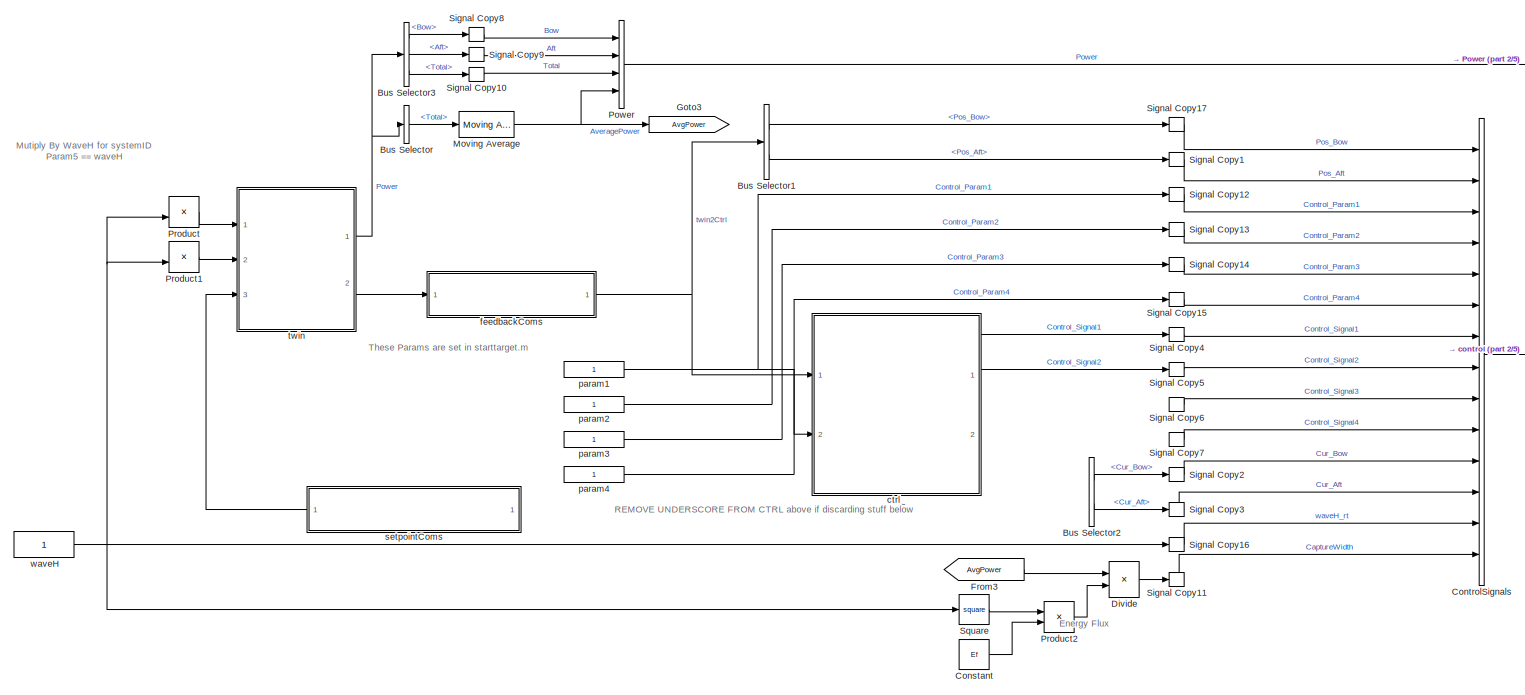
[diagram: root canvas - part 1/5, full width, top band]
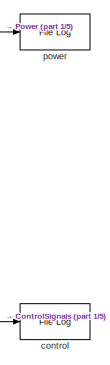
[diagram: root canvas - part 2/5, top right region]
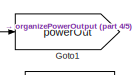
[diagram: root canvas - part 3/5, central region]
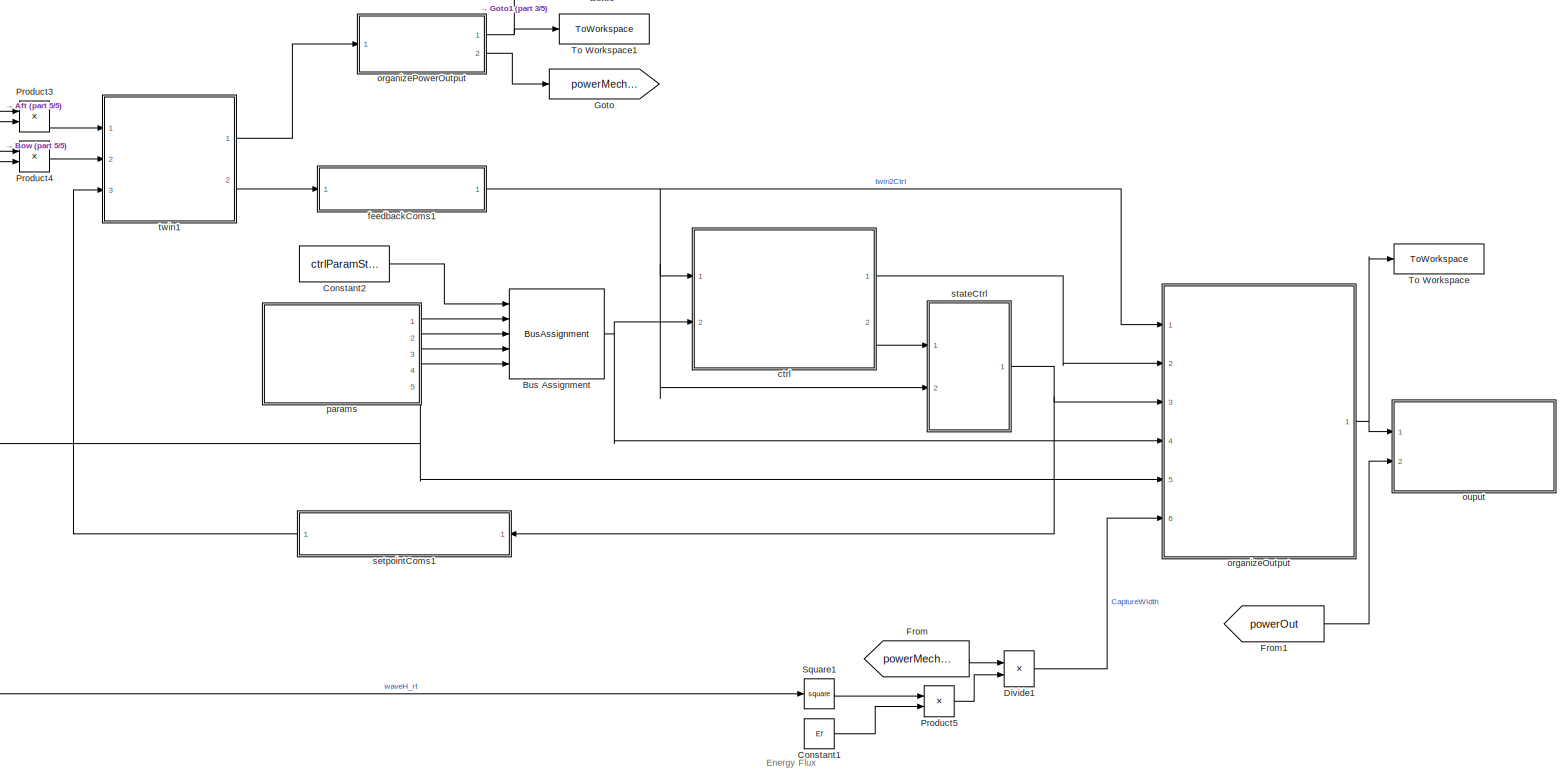
[diagram: root canvas - part 4/5, full width, bottom band]
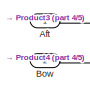
[diagram: root canvas - part 5/5, middle left region]
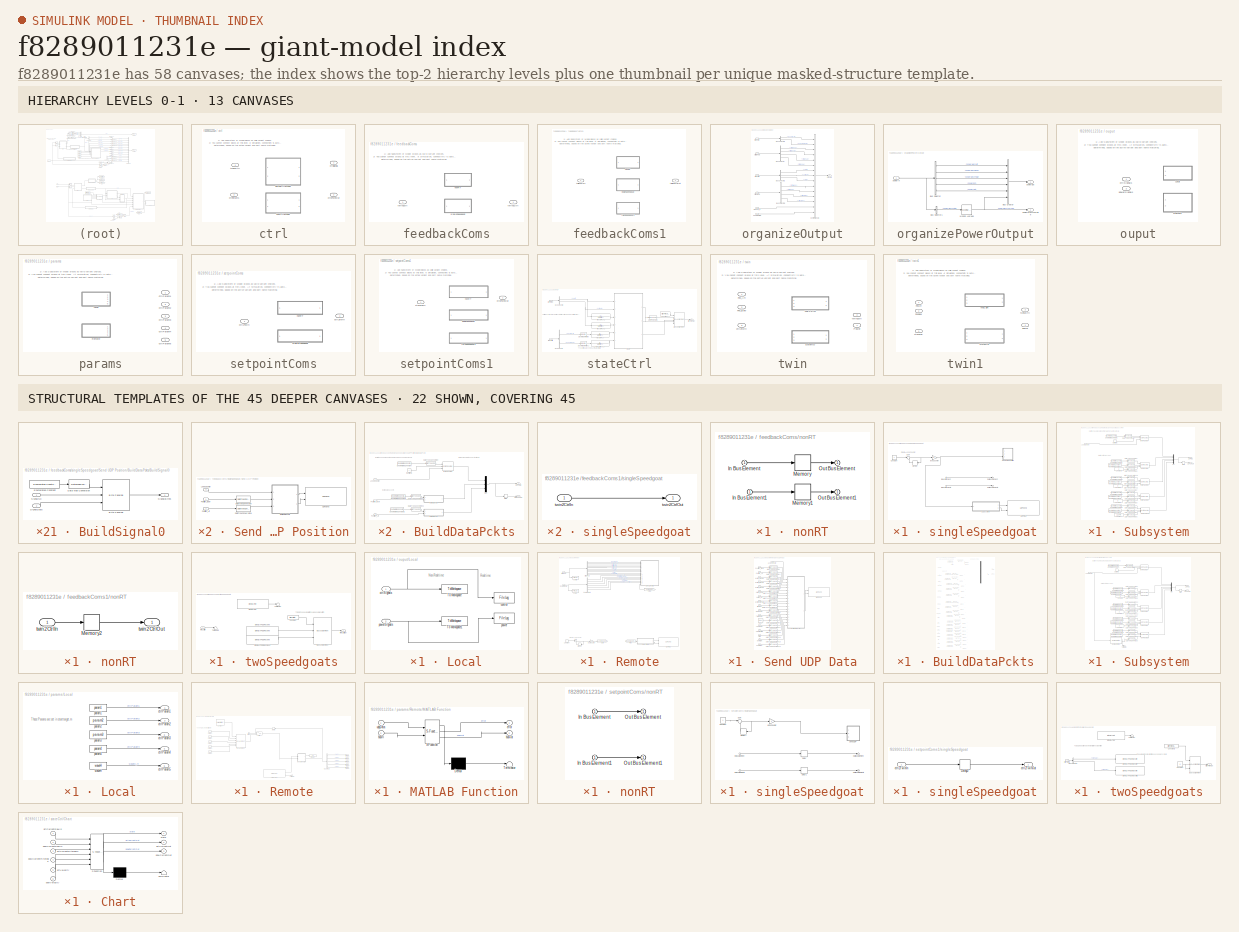
[diagram: thumbnail index - top-2 hierarchy levels (13 canvases) + 22 structural-template representatives of the remaining 45 canvases]
MODEL slx_f8289011231e
KIND model
CONFIG AbsTol = auto
CONFIG EnableMultiTasking = off
CONFIG FixedStep = Ts
CONFIG MaxStep = auto
CONFIG MinStep = auto
CONFIG RelTol = 1e-3
CONFIG SampleTimeConstraint = Unconstrained
CONFIG SolverName = FixedStepAuto
CONFIG StartTime = 0.0
CONFIG StopTime = 180
BLOCK [Inport] Aft
  Interpolate = off
BLOCK [Inport] Bow
  Interpolate = off
  Port = 2
BLOCK [BusAssignment] Bus Assignment
  AssignedSignals = ctrlParam1,ctrlParam2,ctrlParam3,ctrlParam4
  Ports = [5, 1]
BLOCK [BusSelector] Bus Selector
  Commented = on
  OutputSignals = Total
  Ports = [1, 1]
BLOCK [BusSelector] Bus Selector1
  Commented = on
  OutputSignals = Pos_Bow,Pos_Aft
  Ports = [1, 2]
BLOCK [BusSelector] Bus Selector2
  Commented = on
  OutputSignals = Cur_Bow,Cur_Aft
  Ports = [1, 2]
BLOCK [BusSelector] Bus Selector3
  Commented = on
  OutputSignals = Bow,Aft,Total
  Ports = [1, 3]
BLOCK [Constant] Constant
  Commented = on
  SampleTime = Ts
  Value = Ef
BLOCK [Constant] Constant1
  SampleTime = Ts
  Value = Ef
BLOCK [Constant] Constant2
  OutDataTypeStr = Bus: ctrlParamBus
  Value = ctrlParamStruct
  VectorParams1D = off
BLOCK [BusCreator] ControlSignals
  Commented = on
  DisplayOption = bar
  InheritFromInputs = on
  Inputs = Pos_Bow,Pos_Aft,Control_Param1,Control_Param2,Control_Param3,Control_Param4,Control_Signal1,Control_Signal2,Control_Signal3,Control_Signal4,Cur_Bow,Cur_Aft,waveH_rt,CaptureWidth
  Ports = [14, 1]
BLOCK [Product] Divide
  Commented = on
  Inputs = */
  Ports = [2, 1]
BLOCK [Product] Divide1
  Inputs = */
  Ports = [2, 1]
BLOCK [From] From
  GotoTag = powerMechAverage
BLOCK [From] From1
  GotoTag = powerOut
BLOCK [From] From3
  Commented = on
  GotoTag = AvgPower
BLOCK [Goto] Goto
  GotoTag = powerMechAverage
BLOCK [Goto] Goto1
  GotoTag = powerOut
BLOCK [Goto] Goto3
  Commented = on
  GotoTag = AvgPower
BLOCK [Reference] Moving Average  REF=dspstat3/Moving
Average
  Commented = on
  Ports = [1, 1]
  SourceBlock = dspstat3/Moving\nAverage
  SourceProductBaseCode = DS
  SourceType = dsp.simulink.MovingAverage
BLOCK [BusCreator] Power
  Commented = on
  DisplayOption = bar
  InheritFromInputs = on
  Inputs = Bow,Aft,Total,AveragePower
  Ports = [4, 1]
BLOCK [Product] Product
  Commented = on
  Ports = [2, 1]
BLOCK [Product] Product1
  Commented = on
  Ports = [2, 1]
BLOCK [Product] Product2
  Commented = on
  Ports = [2, 1]
BLOCK [Product] Product3
  Ports = [2, 1]
BLOCK [Product] Product4
  Ports = [2, 1]
BLOCK [Product] Product5
  Ports = [2, 1]
BLOCK [SignalConversion] Signal Copy1
  Commented = on
  OverrideOpt = off
BLOCK [SignalConversion] Signal Copy10
  Commented = on
  OverrideOpt = off
BLOCK [SignalConversion] Signal Copy11
  Commented = on
  OverrideOpt = off
BLOCK [SignalConversion] Signal Copy12
  Commented = on
  OverrideOpt = off
BLOCK [SignalConversion] Signal Copy13
  Commented = on
  OverrideOpt = off
BLOCK [SignalConversion] Signal Copy14
  Commented = on
  OverrideOpt = off
BLOCK [SignalConversion] Signal Copy15
  Commented = on
  OverrideOpt = off
BLOCK [SignalConversion] Signal Copy16
  Commented = on
  OverrideOpt = off
BLOCK [SignalConversion] Signal Copy17
  Commented = on
  OverrideOpt = off
BLOCK [SignalConversion] Signal Copy2
  Commented = on
  OverrideOpt = off
BLOCK [SignalConversion] Signal Copy3
  Commented = on
  OverrideOpt = off
BLOCK [SignalConversion] Signal Copy4
  Commented = on
  OverrideOpt = off
BLOCK [SignalConversion] Signal Copy5
  Commented = on
  OverrideOpt = off
BLOCK [SignalConversion] Signal Copy6
  Commented = on
  OverrideOpt = off
BLOCK [SignalConversion] Signal Copy7
  Commented = on
  OverrideOpt = off
BLOCK [SignalConversion] Signal Copy8
  Commented = on
  OverrideOpt = off
BLOCK [SignalConversion] Signal Copy9
  Commented = on
  OverrideOpt = off
BLOCK [Math] Square
  Commented = on
  Operator = square
  Ports = [1, 1]
BLOCK [Math] Square1
  Operator = square
  Ports = [1, 1]
BLOCK [ToWorkspace] To Workspace
  Commented = on
  FixptAsFi = on
  MaxDataPoints = inf
  Ports = [1]
  SampleTime = -1
  SaveFormat = Timeseries
  VariableName = ControlSignals1
BLOCK [ToWorkspace] To Workspace1
  Commented = on
  FixptAsFi = on
  MaxDataPoints = inf
  Ports = [1]
  SampleTime = -1
  SaveFormat = Timeseries
  VariableName = Power1
BLOCK [Reference] control  REF=slrealtimeloglib/File Log
  Commented = on
  Ports = [1]
  SourceBlock = slrealtimeloglib/File Log
  SourceProductBaseCode = XP
  SourceType = slrealtimeloggingblock
BLOCK [SubSystem] ctrl
  LabelModeActiveChoice = defaultCtrlModel
  Ports = [2, 2]
  RequestExecContextInheritance = off
  Variant = on
  VariantControlMode = label
BLOCK [Outport] ctrl/ctrl2TwinOut
  OutDataTypeStr = Bus: ctrl2TwinBus
  Port = 2
BLOCK [Inport] ctrl/ctrlParams
  OutDataTypeStr = Bus: ctrlParamBus
  Port = 2
BLOCK [Outport] ctrl/ctrlSignals
  OutDataTypeStr = Bus: ctrlSignalBus
BLOCK [ModelReference] ctrl/defaultCtrlModel
  ModelNameDialog = defaultCtrlModel
  ModelReferenceVersion = 4.311
  OverrideUsingVariant = defaultCtrlModel
  Ports = [2, 2]
  VariantControl = defaultCtrlModel
BLOCK [Inport] ctrl/twin2Ctrl
  OutDataTypeStr = Bus: twin2CtrlBus
BLOCK [ModelReference] ctrl/userCtrlModel
  ModelNameDialog = ctrlStarter
  ModelReferenceVersion = 3.17
  Ports = [2, 2]
  VariantControl = userCtrlModel
BLOCK [ModelReference] ctrl_
  Commented = on
  ModelNameDialog = defaultCtrlModel
  ModelReferenceVersion = 4.309
  OverrideUsingVariant = defaultCtrlModel
  Ports = [2, 2]
BLOCK [SubSystem] feedbackComs
  Commented = on
  LabelModeActiveChoice = singleSpeedgoat
  Ports = [1, 1]
  RequestExecContextInheritance = off
  Variant = on
  VariantControlMode = label
BLOCK [SubSystem] feedbackComs/nonRT
  Ports = [1, 1]
  RequestExecContextInheritance = off
  VariantControl = nonRT
BLOCK [Inport] feedbackComs/nonRT/In Bus Element
BLOCK [Inport] feedbackComs/nonRT/In Bus Element1
BLOCK [Memory] feedbackComs/nonRT/Memory
BLOCK [Memory] feedbackComs/nonRT/Memory1
BLOCK [Outport] feedbackComs/nonRT/Out Bus Element
BLOCK [Outport] feedbackComs/nonRT/Out Bus Element1
BLOCK [SubSystem] feedbackComs/singleSpeedgoat
  Ports = [1, 1]
  RequestExecContextInheritance = off
  VariantControl = singleSpeedgoat
BLOCK [Constant] feedbackComs/singleSpeedgoat/Constant
  Commented = on
  SampleTime = Ts
BLOCK [Inport] feedbackComs/singleSpeedgoat/In Bus Element
BLOCK [Inport] feedbackComs/singleSpeedgoat/In Bus Element1
BLOCK [Memory] feedbackComs/singleSpeedgoat/Memory
  Commented = on
BLOCK [Outport] feedbackComs/singleSpeedgoat/Out Bus Element
BLOCK [Outport] feedbackComs/singleSpeedgoat/Out Bus Element1
BLOCK [SubSystem] feedbackComs/singleSpeedgoat/Send UDP Position
  Commented = on
  Ports = [3]
  RequestExecContextInheritance = off
BLOCK [SubSystem] feedbackComs/singleSpeedgoat/Send UDP Position/BuildDataPckts
  Ports = [3, 2]
  RequestExecContextInheritance = off
BLOCK [SubSystem] feedbackComs/singleSpeedgoat/Send UDP Position/BuildDataPckts/BuildSignal0
  Ports = [2, 1]
  RequestExecContextInheritance = off
BLOCK [Reference] feedbackComs/singleSpeedgoat/Send UDP Position/BuildDataPckts/BuildSignal0/Byte Packing   REF=slrealtimeutilitieslib/Byte Packing
  Ports = [3, 1]
  SourceBlock = slrealtimeutilitieslib/Byte Packing
  SourceProductBaseCode = XP
  SourceType = slrealtimebytepacking
BLOCK [DataTypeConversion] feedbackComs/singleSpeedgoat/Send UDP Position/BuildDataPckts/BuildSignal0/Data Type Conversion
  OutDataTypeStr = uint8
  RndMeth = Floor
  SaturateOnIntegerOverflow = off
BLOCK [Reference] feedbackComs/singleSpeedgoat/Send UDP Position/BuildDataPckts/BuildSignal0/Enumerated Constant  REF=simulink/Sources/Enumerated
Constant
  Ports = [0, 1]
  SourceBlock = simulink/Sources/Enumerated\nConstant
  SourceProductBaseCode = SL
  SourceType = Enumerated Constant
BLOCK [Outport] feedbackComs/singleSpeedgoat/Send UDP Position/BuildDataPckts/BuildSignal0/SignalBytes
BLOCK [Inport] feedbackComs/singleSpeedgoat/Send UDP Position/BuildDataPckts/BuildSignal0/SignalData
  Port = 2
BLOCK [Inport] feedbackComs/singleSpeedgoat/Send UDP Position/BuildDataPckts/BuildSignal0/SignalNo
BLOCK [SubSystem] feedbackComs/singleSpeedgoat/Send UDP Position/BuildDataPckts/BuildSignal1
  Ports = [2, 1]
  RequestExecContextInheritance = off
BLOCK [Reference] feedbackComs/singleSpeedgoat/Send UDP Position/BuildDataPckts/BuildSignal1/Byte Packing   REF=slrealtimeutilitieslib/Byte Packing
  Ports = [3, 1]
  SourceBlock = slrealtimeutilitieslib/Byte Packing
  SourceProductBaseCode = XP
  SourceType = slrealtimebytepacking
BLOCK [DataTypeConversion] feedbackComs/singleSpeedgoat/Send UDP Position/BuildDataPckts/BuildSignal1/Data Type Conversion
  OutDataTypeStr = uint8
  RndMeth = Floor
  SaturateOnIntegerOverflow = off
BLOCK [Reference] feedbackComs/singleSpeedgoat/Send UDP Position/BuildDataPckts/BuildSignal1/Enumerated Constant  REF=simulink/Sources/Enumerated
Constant
  Ports = [0, 1]
  SourceBlock = simulink/Sources/Enumerated\nConstant
  SourceProductBaseCode = SL
  SourceType = Enumerated Constant
BLOCK [Outport] feedbackComs/singleSpeedgoat/Send UDP Position/BuildDataPckts/BuildSignal1/SignalBytes
BLOCK [Inport] feedbackComs/singleSpeedgoat/Send UDP Position/BuildDataPckts/BuildSignal1/SignalData
  Port = 2
BLOCK [Inport] feedbackComs/singleSpeedgoat/Send UDP Position/BuildDataPckts/BuildSignal1/SignalNo
BLOCK [Reference] feedbackComs/singleSpeedgoat/Send UDP Position/BuildDataPckts/Byte Packing   REF=slrealtimeutilitieslib/Byte Packing
  Ports = [3, 1]
  SourceBlock = slrealtimeutilitieslib/Byte Packing
  SourceProductBaseCode = XP
  SourceType = slrealtimebytepacking
BLOCK [DataTypeConversion] feedbackComs/singleSpeedgoat/Send UDP Position/BuildDataPckts/Data Type Conversion
  OutDataTypeStr = uint8
  RndMeth = Floor
  SaturateOnIntegerOverflow = off
BLOCK [DataTypeConversion] feedbackComs/singleSpeedgoat/Send UDP Position/BuildDataPckts/Data Type Conversion1
  OutDataTypeStr = uint8
  RndMeth = Floor
  SaturateOnIntegerOverflow = off
BLOCK [DataTypeConversion] feedbackComs/singleSpeedgoat/Send UDP Position/BuildDataPckts/Data Type Conversion2
  OutDataTypeStr = uint8
  RndMeth = Floor
  SaturateOnIntegerOverflow = off
BLOCK [Reference] feedbackComs/singleSpeedgoat/Send UDP Position/BuildDataPckts/Enumerated Constant  REF=simulink/Sources/Enumerated
Constant
  Ports = [0, 1]
  SourceBlock = simulink/Sources/Enumerated\nConstant
  SourceProductBaseCode = SL
  SourceType = Enumerated Constant
BLOCK [Reference] feedbackComs/singleSpeedgoat/Send UDP Position/BuildDataPckts/Enumerated Constant1  REF=simulink/Sources/Enumerated
Constant
  Ports = [0, 1]
  SourceBlock = simulink/Sources/Enumerated\nConstant
  SourceProductBaseCode = SL
  SourceType = Enumerated Constant
BLOCK [Reference] feedbackComs/singleSpeedgoat/Send UDP Position/BuildDataPckts/Enumerated Constant2  REF=simulink/Sources/Enumerated
Constant
  Ports = [0, 1]
  SourceBlock = simulink/Sources/Enumerated\nConstant
  SourceProductBaseCode = SL
  SourceType = Enumerated Constant
BLOCK [Inport] feedbackComs/singleSpeedgoat/Send UDP Position/BuildDataPckts/LoopCounter
BLOCK [Mux] feedbackComs/singleSpeedgoat/Send UDP Position/BuildDataPckts/Mux
  DisplayOption = bar
  Inputs = 3
  Ports = [3, 1]
BLOCK [Constant] feedbackComs/singleSpeedgoat/Send UDP Position/BuildDataPckts/NumItems
  OutDataTypeStr = uint8
  Value = 2
BLOCK [Inport] feedbackComs/singleSpeedgoat/Send UDP Position/BuildDataPckts/Position_Aft
  OutDataTypeStr = single
  Port = 3
BLOCK [Inport] feedbackComs/singleSpeedgoat/Send UDP Position/BuildDataPckts/Position_Bow
  OutDataTypeStr = single
  Port = 2
BLOCK [Outport] feedbackComs/singleSpeedgoat/Send UDP Position/BuildDataPckts/UDPData
BLOCK [Outport] feedbackComs/singleSpeedgoat/Send UDP Position/BuildDataPckts/UDPLengh
  Port = 2
BLOCK [Width] feedbackComs/singleSpeedgoat/Send UDP Position/BuildDataPckts/Width
BLOCK [DataTypeConversion] feedbackComs/singleSpeedgoat/Send UDP Position/Data Type Conversion
  OutDataTypeStr = single
  RndMeth = Floor
  SaturateOnIntegerOverflow = off
BLOCK [DataTypeConversion] feedbackComs/singleSpeedgoat/Send UDP Position/Data Type Conversion1
  OutDataTypeStr = single
  RndMeth = Floor
  SaturateOnIntegerOverflow = off
BLOCK [Inport] feedbackComs/singleSpeedgoat/Send UDP Position/LoopCounter
  Port = 3
BLOCK [Inport] feedbackComs/singleSpeedgoat/Send UDP Position/Position_Aft
  Port = 2
BLOCK [Inport] feedbackComs/singleSpeedgoat/Send UDP Position/Position_Bow
BLOCK [Reference] feedbackComs/singleSpeedgoat/Send UDP Position/UDP Send  REF=slrealtimeiplib/UDP Send
  Ports = [2]
  SourceBlock = slrealtimeiplib/UDP Send
  SourceProductBaseCode = XP
  SourceType = slrealtimeudpsend
BLOCK [SubSystem] feedbackComs/singleSpeedgoat/Subsystem
  Commented = on
  Ports = [1, 2]
  RequestExecContextInheritance = off
BLOCK [Reference] feedbackComs/singleSpeedgoat/Subsystem/Byte Packing   REF=slrealtimeutilitieslib/Byte Packing
  Ports = [3, 1]
  SourceBlock = slrealtimeutilitieslib/Byte Packing
  SourceProductBaseCode = XP
  SourceType = slrealtimebytepacking
BLOCK [Reference] feedbackComs/singleSpeedgoat/Subsystem/Byte Packing 1  REF=slrealtimeutilitieslib/Byte Packing
  Ports = [3, 1]
  SourceBlock = slrealtimeutilitieslib/Byte Packing
  SourceProductBaseCode = XP
  SourceType = slrealtimebytepacking
BLOCK [Reference] feedbackComs/singleSpeedgoat/Subsystem/Byte Packing 2  REF=slrealtimeutilitieslib/Byte Packing
  Ports = [3, 1]
  SourceBlock = slrealtimeutilitieslib/Byte Packing
  SourceProductBaseCode = XP
  SourceType = slrealtimebytepacking
BLOCK [Reference] feedbackComs/singleSpeedgoat/Subsystem/Byte Packing 3  REF=slrealtimeutilitieslib/Byte Packing
  Ports = [3, 1]
  SourceBlock = slrealtimeutilitieslib/Byte Packing
  SourceProductBaseCode = XP
  SourceType = slrealtimebytepacking
BLOCK [Reference] feedbackComs/singleSpeedgoat/Subsystem/Byte Packing 4  REF=slrealtimeutilitieslib/Byte Packing
  Ports = [3, 1]
  SourceBlock = slrealtimeutilitieslib/Byte Packing
  SourceProductBaseCode = XP
  SourceType = slrealtimebytepacking
BLOCK [Constant] feedbackComs/singleSpeedgoat/Subsystem/Constant
  Value = 1.2345
BLOCK [Constant] feedbackComs/singleSpeedgoat/Subsystem/Constant1
BLOCK [Constant] feedbackComs/singleSpeedgoat/Subsystem/Constant2
  Value = 2
BLOCK [Constant] feedbackComs/singleSpeedgoat/Subsystem/Constant3
  Value = 3
BLOCK [DataTypeConversion] feedbackComs/singleSpeedgoat/Subsystem/Data Type Conversion
  OutDataTypeStr = uint8
  RndMeth = Floor
  SaturateOnIntegerOverflow = off
BLOCK [DataTypeConversion] feedbackComs/singleSpeedgoat/Subsystem/Data Type Conversion1
  OutDataTypeStr = uint8
  RndMeth = Floor
  SaturateOnIntegerOverflow = off
BLOCK [DataTypeConversion] feedbackComs/singleSpeedgoat/Subsystem/Data Type Conversion10
  OutDataTypeStr = uint8
  RndMeth = Floor
  SaturateOnIntegerOverflow = off
BLOCK [DataTypeConversion] feedbackComs/singleSpeedgoat/Subsystem/Data Type Conversion11
  OutDataTypeStr = uint8
  RndMeth = Floor
  SaturateOnIntegerOverflow = off
BLOCK [DataTypeConversion] feedbackComs/singleSpeedgoat/Subsystem/Data Type Conversion12
  OutDataTypeStr = single
  RndMeth = Floor
  SaturateOnIntegerOverflow = off
BLOCK [DataTypeConversion] feedbackComs/singleSpeedgoat/Subsystem/Data Type Conversion2
  OutDataTypeStr = uint8
  RndMeth = Floor
  SaturateOnIntegerOverflow = off
BLOCK [DataTypeConversion] feedbackComs/singleSpeedgoat/Subsystem/Data Type Conversion3
  OutDataTypeStr = uint8
  RndMeth = Floor
  SaturateOnIntegerOverflow = off
BLOCK [DataTypeConversion] feedbackComs/singleSpeedgoat/Subsystem/Data Type Conversion4
  OutDataTypeStr = uint8
  RndMeth = Floor
  SaturateOnIntegerOverflow = off
BLOCK [DataTypeConversion] feedbackComs/singleSpeedgoat/Subsystem/Data Type Conversion5
  OutDataTypeStr = single
  RndMeth = Floor
  SaturateOnIntegerOverflow = off
BLOCK [DataTypeConversion] feedbackComs/singleSpeedgoat/Subsystem/Data Type Conversion6
  OutDataTypeStr = single
  RndMeth = Floor
  SaturateOnIntegerOverflow = off
BLOCK [DataTypeConversion] feedbackComs/singleSpeedgoat/Subsystem/Data Type Conversion7
  OutDataTypeStr = uint8
  RndMeth = Floor
  SaturateOnIntegerOverflow = off
BLOCK [DataTypeConversion] feedbackComs/singleSpeedgoat/Subsystem/Data Type Conversion8
  OutDataTypeStr = uint8
  RndMeth = Floor
  SaturateOnIntegerOverflow = off
BLOCK [DataTypeConversion] feedbackComs/singleSpeedgoat/Subsystem/Data Type Conversion9
  OutDataTypeStr = single
  RndMeth = Floor
  SaturateOnIntegerOverflow = off
BLOCK [Reference] feedbackComs/singleSpeedgoat/Subsystem/Enumerated Constant  REF=simulink/Sources/Enumerated
Constant
  Ports = [0, 1]
  SourceBlock = simulink/Sources/Enumerated\nConstant
  SourceProductBaseCode = SL
  SourceType = Enumerated Constant
BLOCK [Reference] feedbackComs/singleSpeedgoat/Subsystem/Enumerated Constant1  REF=simulink/Sources/Enumerated
Constant
  Ports = [0, 1]
  SourceBlock = simulink/Sources/Enumerated\nConstant
  SourceProductBaseCode = SL
  SourceType = Enumerated Constant
BLOCK [Reference] feedbackComs/singleSpeedgoat/Subsystem/Enumerated Constant2  REF=simulink/Sources/Enumerated
Constant
  Ports = [0, 1]
  SourceBlock = simulink/Sources/Enumerated\nConstant
  SourceProductBaseCode = SL
  SourceType = Enumerated Constant
BLOCK [Reference] feedbackComs/singleSpeedgoat/Subsystem/Enumerated Constant3  REF=simulink/Sources/Enumerated
Constant
  Ports = [0, 1]
  SourceBlock = simulink/Sources/Enumerated\nConstant
  SourceProductBaseCode = SL
  SourceType = Enumerated Constant
BLOCK [Reference] feedbackComs/singleSpeedgoat/Subsystem/Enumerated Constant4  REF=simulink/Sources/Enumerated
Constant
  Ports = [0, 1]
  SourceBlock = simulink/Sources/Enumerated\nConstant
  SourceProductBaseCode = SL
  SourceType = Enumerated Constant
BLOCK [Reference] feedbackComs/singleSpeedgoat/Subsystem/Enumerated Constant5  REF=simulink/Sources/Enumerated
Constant
  Ports = [0, 1]
  SourceBlock = simulink/Sources/Enumerated\nConstant
  SourceProductBaseCode = SL
  SourceType = Enumerated Constant
BLOCK [Reference] feedbackComs/singleSpeedgoat/Subsystem/Enumerated Constant6  REF=simulink/Sources/Enumerated
Constant
  Ports = [0, 1]
  SourceBlock = simulink/Sources/Enumerated\nConstant
  SourceProductBaseCode = SL
  SourceType = Enumerated Constant
BLOCK [Reference] feedbackComs/singleSpeedgoat/Subsystem/Enumerated Constant7  REF=simulink/Sources/Enumerated
Constant
  Ports = [0, 1]
  SourceBlock = simulink/Sources/Enumerated\nConstant
  SourceProductBaseCode = SL
  SourceType = Enumerated Constant
BLOCK [Reference] feedbackComs/singleSpeedgoat/Subsystem/Enumerated Constant8  REF=simulink/Sources/Enumerated
Constant
  Ports = [0, 1]
  SourceBlock = simulink/Sources/Enumerated\nConstant
  SourceProductBaseCode = SL
  SourceType = Enumerated Constant
BLOCK [Inport] feedbackComs/singleSpeedgoat/Subsystem/LoopCounter
BLOCK [Mux] feedbackComs/singleSpeedgoat/Subsystem/Mux
  DisplayOption = bar
  Inputs = 5
  Ports = [5, 1]
BLOCK [Constant] feedbackComs/singleSpeedgoat/Subsystem/NumItems
  OutDataTypeStr = uint8
  Value = 4
BLOCK [Outport] feedbackComs/singleSpeedgoat/Subsystem/UDPLength
  Port = 2
BLOCK [Outport] feedbackComs/singleSpeedgoat/Subsystem/UDPMsg
BLOCK [Width] feedbackComs/singleSpeedgoat/Subsystem/Width
BLOCK [Sum] feedbackComs/singleSpeedgoat/Sum
  Commented = on
  Inputs = |++
  OutDataTypeStr = uint32
  Ports = [2, 1]
BLOCK [Reference] feedbackComs/singleSpeedgoat/UDP Msg  REF=slrealtimeiplib/UDP Send
  Commented = on
  Ports = [2]
  SourceBlock = slrealtimeiplib/UDP Send
  SourceProductBaseCode = XP
  SourceType = slrealtimeudpsend
BLOCK [Gain] feedbackComs/singleSpeedgoat/loopCounter
  Commented = on
  OutDataTypeStr = uint32
  ParamDataTypeStr = uint32
BLOCK [Outport] feedbackComs/twin2Ctrl
BLOCK [Inport] feedbackComs/twin2ctrl
BLOCK [SubSystem] feedbackComs1
  LabelModeActiveChoice = singleSpeedgoat
  Ports = [1, 1]
  RequestExecContextInheritance = off
  Variant = on
  VariantControlMode = label
BLOCK [SubSystem] feedbackComs1/nonRT
  Ports = [1, 1]
  RequestExecContextInheritance = off
  VariantControl = nonRT
BLOCK [Memory] feedbackComs1/nonRT/Memory2
BLOCK [Inport] feedbackComs1/nonRT/twin2CtrlIn
  OutDataTypeStr = Bus: twin2CtrlBus
BLOCK [Outport] feedbackComs1/nonRT/twin2CtrlOut
  OutDataTypeStr = Bus: twin2CtrlBus
BLOCK [SubSystem] feedbackComs1/singleSpeedgoat
  Ports = [1, 1]
  RequestExecContextInheritance = off
  VariantControl = singleSpeedgoat
BLOCK [Inport] feedbackComs1/singleSpeedgoat/twin2CtrlIn
  OutDataTypeStr = Bus: twin2CtrlBus
BLOCK [Outport] feedbackComs1/singleSpeedgoat/twin2CtrlOut
  OutDataTypeStr = Bus: twin2CtrlBus
BLOCK [Inport] feedbackComs1/twin2CtrlIn
  OutDataTypeStr = Bus: twin2CtrlBus
BLOCK [Outport] feedbackComs1/twin2CtrlOut
  OutDataTypeStr = Bus: twin2CtrlBus
BLOCK [SubSystem] feedbackComs1/twoSpeedgoats
  Ports = [1, 1]
  RequestExecContextInheritance = off
  VariantControl = twoSpeedgoats
BLOCK [BusAssignment] feedbackComs1/twoSpeedgoats/Bus Assignment
  AssignedSignals = posFlapBow,posFlapAft
  Ports = [3, 1]
BLOCK [Constant] feedbackComs1/twoSpeedgoats/Constant
  OutDataTypeStr = Bus: twin2CtrlBus
  Value = twin2CtrlStruct
BLOCK [Reference] feedbackComs1/twoSpeedgoats/EtherCAT Init  REF=slrealtimeethercatlib/EtherCAT Init
  Ports = [0, 1]
  Priority = 0
  SourceBlock = slrealtimeethercatlib/EtherCAT Init
  SourceProductBaseCode = XP
  SourceType = ethercatinit
BLOCK [Reference] feedbackComs1/twoSpeedgoats/EtherCAT PDO Receive  REF=slrealtimeethercatlib/EtherCAT PDO Receive
  Ports = [0, 1]
  Priority = 2
  SourceBlock = slrealtimeethercatlib/EtherCAT PDO Receive
  SourceProductBaseCode = XP
  SourceType = ethercat_pdo_receive
BLOCK [Reference] feedbackComs1/twoSpeedgoats/EtherCAT PDO Receive1  REF=slrealtimeethercatlib/EtherCAT PDO Receive
  Ports = [0, 1]
  Priority = 2
  SourceBlock = slrealtimeethercatlib/EtherCAT PDO Receive
  SourceProductBaseCode = XP
  SourceType = ethercat_pdo_receive
BLOCK [Terminator] feedbackComs1/twoSpeedgoats/Terminator
BLOCK [Terminator] feedbackComs1/twoSpeedgoats/Terminator1
BLOCK [Inport] feedbackComs1/twoSpeedgoats/twin2CtrlIn
  OutDataTypeStr = Bus: twin2CtrlBus
BLOCK [Outport] feedbackComs1/twoSpeedgoats/twin2CtrlOut
BLOCK [SubSystem] organizeOutput
  Ports = [6, 1]
  RequestExecContextInheritance = off
BLOCK [BusSelector] organizeOutput/Bus Selector
  OutputSignals = ctrlSignal1,ctrlSignal2,ctrlSignal3,ctrlSignal4
  Ports = [1, 4]
BLOCK [BusSelector] organizeOutput/Bus Selector2
  OutputSignals = curAft,curBow,state
  Ports = [1, 3]
BLOCK [BusSelector] organizeOutput/Bus Selector3
  OutputSignals = posFlapAft,posFlapBow
  Ports = [1, 2]
BLOCK [BusSelector] organizeOutput/Bus Selector4
  OutputSignals = ctrlParam1,ctrlParam2,ctrlParam3,ctrlParam4
  Ports = [1, 4]
BLOCK [Inport] organizeOutput/CaptureWidth
  Port = 6
BLOCK [BusCreator] organizeOutput/ControlSignals
  DisplayOption = bar
  InheritFromInputs = on
  Inputs = 15
  Ports = [15, 1]
BLOCK [Inport] organizeOutput/ctrl2Twin
  Port = 3
BLOCK [Inport] organizeOutput/ctrlParams
  Port = 4
BLOCK [Inport] organizeOutput/ctrlSignals
  OutDataTypeStr = Bus: ctrlSignalBus
  Port = 2
BLOCK [Outport] organizeOutput/signals
BLOCK [Inport] organizeOutput/twin2Ctrl
  OutDataTypeStr = Bus: twin2CtrlBus
BLOCK [Inport] organizeOutput/waveH_rt
  Port = 5
BLOCK [SubSystem] organizePowerOutput
  Ports = [1, 2]
  RequestExecContextInheritance = off
BLOCK [BusCreator] organizePowerOutput/Bus Creator
  DisplayOption = bar
  InheritFromInputs = on
  Inputs = 6
  Ports = [6, 1]
BLOCK [BusSelector] organizePowerOutput/Bus Selector
  OutputSignals = powerMechAft,powerMechBow,powerMechTotal,powerI2R,powerNet
  Ports = [1, 5]
BLOCK [BusSelector] organizePowerOutput/Bus Selector1
  OutputSignals = powerMechTotal
  Ports = [1, 1]
BLOCK [Reference] organizePowerOutput/Moving Average  REF=dspstat3/Moving
Average
  Ports = [1, 1]
  SourceBlock = dspstat3/Moving\nAverage
  SourceProductBaseCode = DS
  SourceType = dsp.simulink.MovingAverage
BLOCK [Inport] organizePowerOutput/powerIn
  OutDataTypeStr = Bus: powerBus
BLOCK [Outport] organizePowerOutput/powerMechAverage
  Port = 2
BLOCK [Outport] organizePowerOutput/powerOut
BLOCK [SubSystem] ouput
  LabelModeActiveChoice = Local
  Ports = [2]
  RequestExecContextInheritance = off
  Variant = on
  VariantControlMode = label
BLOCK [SubSystem] ouput/Local
  Ports = [2]
  RequestExecContextInheritance = off
  VariantControl = Local
BLOCK [ToWorkspace] ouput/Local/To Workspace
  FixptAsFi = on
  MaxDataPoints = inf
  Ports = [1]
  SampleTime = -1
  SaveFormat = Timeseries
  VariableName = ControlSignals
BLOCK [ToWorkspace] ouput/Local/To Workspace1
  FixptAsFi = on
  MaxDataPoints = inf
  Ports = [1]
  SampleTime = -1
  SaveFormat = Timeseries
  VariableName = Power
BLOCK [Reference] ouput/Local/control  REF=slrealtimeloglib/File Log
  Ports = [1]
  SourceBlock = slrealtimeloglib/File Log
  SourceProductBaseCode = XP
  SourceType = slrealtimeloggingblock
BLOCK [Inport] ouput/Local/ctrlSignals
BLOCK [Reference] ouput/Local/power  REF=slrealtimeloglib/File Log
  Ports = [1]
  SourceBlock = slrealtimeloglib/File Log
  SourceProductBaseCode = XP
  SourceType = slrealtimeloggingblock
BLOCK [Inport] ouput/Local/powerSignals
  Port = 2
BLOCK [SubSystem] ouput/Remote
  Ports = [2]
  RequestExecContextInheritance = off
  VariantControl = Remote
BLOCK [Constant] ouput/Remote/Constant
  SampleTime = Ts
BLOCK [BusSelector] ouput/Remote/CtrlSignals
  OutputSignals = posFlapAft,posFlapBow,ctrlSignal1,ctrlSignal2,ctrlSignal3,ctrlSignal4,curAft,curBow,state,CaptureWidth
  Ports = [1, 10]
BLOCK [From] ouput/Remote/From
  GotoTag = LoopCounter
BLOCK [From] ouput/Remote/From1
  GotoTag = LoopCounter
  NameLocation = top
BLOCK [Goto] ouput/Remote/Goto
  GotoTag = LoopCounter
BLOCK [Memory] ouput/Remote/Memory
BLOCK [BusSelector] ouput/Remote/PowerSignals
  OutputSignals = powerMechAft,powerMechBow,powerMechTotal,powerI2R,powerNet,powerMechAverage
  Ports = [1, 6]
BLOCK [SubSystem] ouput/Remote/Send UDP Data
  Ports = [17]
  RequestExecContextInheritance = off
BLOCK [Inport] ouput/Remote/Send UDP Data/AftPower
  Port = 11
BLOCK [Inport] ouput/Remote/Send UDP Data/AvgPower
  Port = 16
BLOCK [Inport] ouput/Remote/Send UDP Data/BowPower
  Port = 12
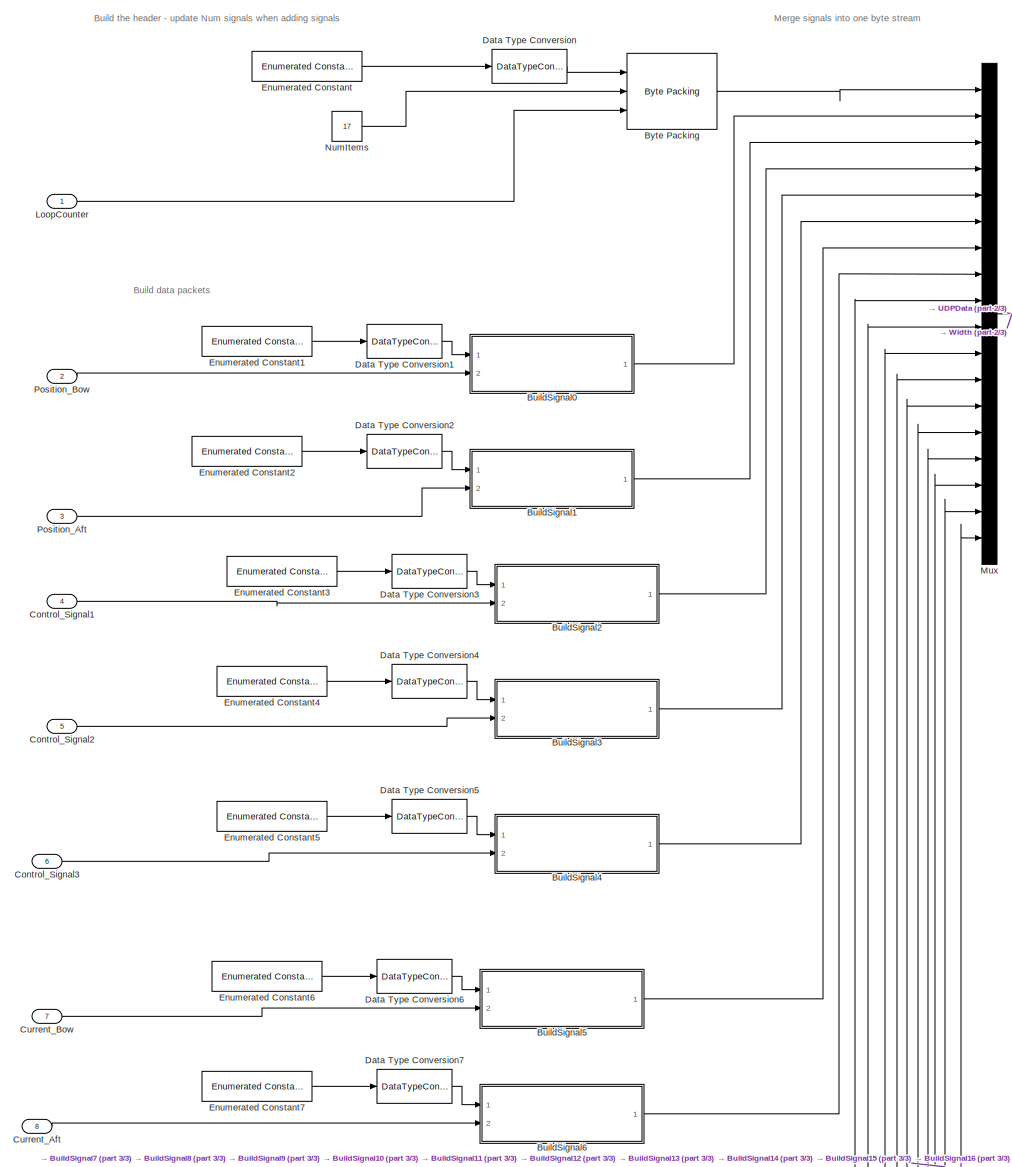
[diagram: ouput/Remote/Send UDP Data/BuildDataPckts - part 1/3, full width, top band]
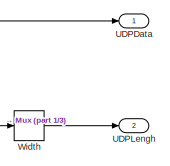
[diagram: ouput/Remote/Send UDP Data/BuildDataPckts - part 2/3, top right region]
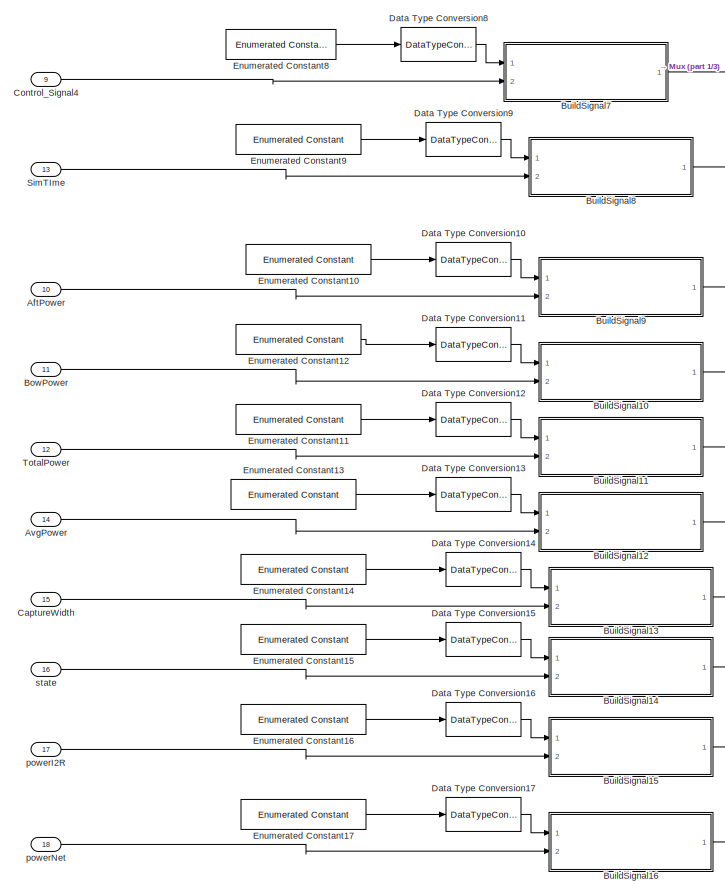
[diagram: ouput/Remote/Send UDP Data/BuildDataPckts - part 3/3, bottom left region]
BLOCK [SubSystem] ouput/Remote/Send UDP Data/BuildDataPckts
  Ports = [18, 2]
  RequestExecContextInheritance = off
BLOCK [Inport] ouput/Remote/Send UDP Data/BuildDataPckts/AftPower
  Port = 10
BLOCK [Inport] ouput/Remote/Send UDP Data/BuildDataPckts/AvgPower
  Port = 14
BLOCK [Inport] ouput/Remote/Send UDP Data/BuildDataPckts/BowPower
  Port = 11
BLOCK [SubSystem] ouput/Remote/Send UDP Data/BuildDataPckts/BuildSignal0
  Ports = [2, 1]
  RequestExecContextInheritance = off
BLOCK [Reference] ouput/Remote/Send UDP Data/BuildDataPckts/BuildSignal0/Byte Packing   REF=slrealtimeutilitieslib/Byte Packing
  Ports = [3, 1]
  SourceBlock = slrealtimeutilitieslib/Byte Packing
  SourceProductBaseCode = XP
  SourceType = slrealtimebytepacking
BLOCK [DataTypeConversion] ouput/Remote/Send UDP Data/BuildDataPckts/BuildSignal0/Data Type Conversion
  OutDataTypeStr = uint8
  RndMeth = Floor
  SaturateOnIntegerOverflow = off
BLOCK [Reference] ouput/Remote/Send UDP Data/BuildDataPckts/BuildSignal0/Enumerated Constant  REF=simulink/Sources/Enumerated
Constant
  Ports = [0, 1]
  SourceBlock = simulink/Sources/Enumerated\nConstant
  SourceProductBaseCode = SL
  SourceType = Enumerated Constant
BLOCK [Outport] ouput/Remote/Send UDP Data/BuildDataPckts/BuildSignal0/SignalBytes
BLOCK [Inport] ouput/Remote/Send UDP Data/BuildDataPckts/BuildSignal0/SignalData
  Port = 2
BLOCK [Inport] ouput/Remote/Send UDP Data/BuildDataPckts/BuildSignal0/SignalNo
BLOCK [SubSystem] ouput/Remote/Send UDP Data/BuildDataPckts/BuildSignal1
  Ports = [2, 1]
  RequestExecContextInheritance = off
BLOCK [Reference] ouput/Remote/Send UDP Data/BuildDataPckts/BuildSignal1/Byte Packing   REF=slrealtimeutilitieslib/Byte Packing
  Ports = [3, 1]
  SourceBlock = slrealtimeutilitieslib/Byte Packing
  SourceProductBaseCode = XP
  SourceType = slrealtimebytepacking
BLOCK [DataTypeConversion] ouput/Remote/Send UDP Data/BuildDataPckts/BuildSignal1/Data Type Conversion
  OutDataTypeStr = uint8
  RndMeth = Floor
  SaturateOnIntegerOverflow = off
BLOCK [Reference] ouput/Remote/Send UDP Data/BuildDataPckts/BuildSignal1/Enumerated Constant  REF=simulink/Sources/Enumerated
Constant
  Ports = [0, 1]
  SourceBlock = simulink/Sources/Enumerated\nConstant
  SourceProductBaseCode = SL
  SourceType = Enumerated Constant
BLOCK [Outport] ouput/Remote/Send UDP Data/BuildDataPckts/BuildSignal1/SignalBytes
BLOCK [Inport] ouput/Remote/Send UDP Data/BuildDataPckts/BuildSignal1/SignalData
  Port = 2
BLOCK [Inport] ouput/Remote/Send UDP Data/BuildDataPckts/BuildSignal1/SignalNo
BLOCK [SubSystem] ouput/Remote/Send UDP Data/BuildDataPckts/BuildSignal10
  Ports = [2, 1]
  RequestExecContextInheritance = off
BLOCK [Reference] ouput/Remote/Send UDP Data/BuildDataPckts/BuildSignal10/Byte Packing   REF=slrealtimeutilitieslib/Byte Packing
  Ports = [3, 1]
  SourceBlock = slrealtimeutilitieslib/Byte Packing
  SourceProductBaseCode = XP
  SourceType = slrealtimebytepacking
BLOCK [DataTypeConversion] ouput/Remote/Send UDP Data/BuildDataPckts/BuildSignal10/Data Type Conversion
  OutDataTypeStr = uint8
  RndMeth = Floor
  SaturateOnIntegerOverflow = off
BLOCK [Reference] ouput/Remote/Send UDP Data/BuildDataPckts/BuildSignal10/Enumerated Constant  REF=simulink/Sources/Enumerated
Constant
  Ports = [0, 1]
  SourceBlock = simulink/Sources/Enumerated\nConstant
  SourceProductBaseCode = SL
  SourceType = Enumerated Constant
BLOCK [Outport] ouput/Remote/Send UDP Data/BuildDataPckts/BuildSignal10/SignalBytes
BLOCK [Inport] ouput/Remote/Send UDP Data/BuildDataPckts/BuildSignal10/SignalData
  Port = 2
BLOCK [Inport] ouput/Remote/Send UDP Data/BuildDataPckts/BuildSignal10/SignalNo
BLOCK [SubSystem] ouput/Remote/Send UDP Data/BuildDataPckts/BuildSignal11
  Ports = [2, 1]
  RequestExecContextInheritance = off
BLOCK [Reference] ouput/Remote/Send UDP Data/BuildDataPckts/BuildSignal11/Byte Packing   REF=slrealtimeutilitieslib/Byte Packing
  Ports = [3, 1]
  SourceBlock = slrealtimeutilitieslib/Byte Packing
  SourceProductBaseCode = XP
  SourceType = slrealtimebytepacking
BLOCK [DataTypeConversion] ouput/Remote/Send UDP Data/BuildDataPckts/BuildSignal11/Data Type Conversion
  OutDataTypeStr = uint8
  RndMeth = Floor
  SaturateOnIntegerOverflow = off
BLOCK [Reference] ouput/Remote/Send UDP Data/BuildDataPckts/BuildSignal11/Enumerated Constant  REF=simulink/Sources/Enumerated
Constant
  Ports = [0, 1]
  SourceBlock = simulink/Sources/Enumerated\nConstant
  SourceProductBaseCode = SL
  SourceType = Enumerated Constant
BLOCK [Outport] ouput/Remote/Send UDP Data/BuildDataPckts/BuildSignal11/SignalBytes
BLOCK [Inport] ouput/Remote/Send UDP Data/BuildDataPckts/BuildSignal11/SignalData
  Port = 2
BLOCK [Inport] ouput/Remote/Send UDP Data/BuildDataPckts/BuildSignal11/SignalNo
BLOCK [SubSystem] ouput/Remote/Send UDP Data/BuildDataPckts/BuildSignal12
  Ports = [2, 1]
  RequestExecContextInheritance = off
BLOCK [Reference] ouput/Remote/Send UDP Data/BuildDataPckts/BuildSignal12/Byte Packing   REF=slrealtimeutilitieslib/Byte Packing
  Ports = [3, 1]
  SourceBlock = slrealtimeutilitieslib/Byte Packing
  SourceProductBaseCode = XP
  SourceType = slrealtimebytepacking
BLOCK [DataTypeConversion] ouput/Remote/Send UDP Data/BuildDataPckts/BuildSignal12/Data Type Conversion
  OutDataTypeStr = uint8
  RndMeth = Floor
  SaturateOnIntegerOverflow = off
BLOCK [Reference] ouput/Remote/Send UDP Data/BuildDataPckts/BuildSignal12/Enumerated Constant  REF=simulink/Sources/Enumerated
Constant
  Ports = [0, 1]
  SourceBlock = simulink/Sources/Enumerated\nConstant
  SourceProductBaseCode = SL
  SourceType = Enumerated Constant
BLOCK [Outport] ouput/Remote/Send UDP Data/BuildDataPckts/BuildSignal12/SignalBytes
BLOCK [Inport] ouput/Remote/Send UDP Data/BuildDataPckts/BuildSignal12/SignalData
  Port = 2
BLOCK [Inport] ouput/Remote/Send UDP Data/BuildDataPckts/BuildSignal12/SignalNo
BLOCK [SubSystem] ouput/Remote/Send UDP Data/BuildDataPckts/BuildSignal13
  Ports = [2, 1]
  RequestExecContextInheritance = off
BLOCK [Reference] ouput/Remote/Send UDP Data/BuildDataPckts/BuildSignal13/Byte Packing   REF=slrealtimeutilitieslib/Byte Packing
  Ports = [3, 1]
  SourceBlock = slrealtimeutilitieslib/Byte Packing
  SourceProductBaseCode = XP
  SourceType = slrealtimebytepacking
BLOCK [DataTypeConversion] ouput/Remote/Send UDP Data/BuildDataPckts/BuildSignal13/Data Type Conversion
  OutDataTypeStr = uint8
  RndMeth = Floor
  SaturateOnIntegerOverflow = off
BLOCK [Reference] ouput/Remote/Send UDP Data/BuildDataPckts/BuildSignal13/Enumerated Constant  REF=simulink/Sources/Enumerated
Constant
  Ports = [0, 1]
  SourceBlock = simulink/Sources/Enumerated\nConstant
  SourceProductBaseCode = SL
  SourceType = Enumerated Constant
BLOCK [Outport] ouput/Remote/Send UDP Data/BuildDataPckts/BuildSignal13/SignalBytes
BLOCK [Inport] ouput/Remote/Send UDP Data/BuildDataPckts/BuildSignal13/SignalData
  Port = 2
BLOCK [Inport] ouput/Remote/Send UDP Data/BuildDataPckts/BuildSignal13/SignalNo
BLOCK [SubSystem] ouput/Remote/Send UDP Data/BuildDataPckts/BuildSignal14
  Ports = [2, 1]
  RequestExecContextInheritance = off
BLOCK [Reference] ouput/Remote/Send UDP Data/BuildDataPckts/BuildSignal14/Byte Packing   REF=slrealtimeutilitieslib/Byte Packing
  Ports = [3, 1]
  SourceBlock = slrealtimeutilitieslib/Byte Packing
  SourceProductBaseCode = XP
  SourceType = slrealtimebytepacking
BLOCK [DataTypeConversion] ouput/Remote/Send UDP Data/BuildDataPckts/BuildSignal14/Data Type Conversion
  OutDataTypeStr = uint8
  RndMeth = Floor
  SaturateOnIntegerOverflow = off
BLOCK [Reference] ouput/Remote/Send UDP Data/BuildDataPckts/BuildSignal14/Enumerated Constant  REF=simulink/Sources/Enumerated
Constant
  Ports = [0, 1]
  SourceBlock = simulink/Sources/Enumerated\nConstant
  SourceProductBaseCode = SL
  SourceType = Enumerated Constant
BLOCK [Outport] ouput/Remote/Send UDP Data/BuildDataPckts/BuildSignal14/SignalBytes
BLOCK [Inport] ouput/Remote/Send UDP Data/BuildDataPckts/BuildSignal14/SignalData
  Port = 2
BLOCK [Inport] ouput/Remote/Send UDP Data/BuildDataPckts/BuildSignal14/SignalNo
BLOCK [SubSystem] ouput/Remote/Send UDP Data/BuildDataPckts/BuildSignal15
  Ports = [2, 1]
  RequestExecContextInheritance = off
BLOCK [Reference] ouput/Remote/Send UDP Data/BuildDataPckts/BuildSignal15/Byte Packing   REF=slrealtimeutilitieslib/Byte Packing
  Ports = [3, 1]
  SourceBlock = slrealtimeutilitieslib/Byte Packing
  SourceProductBaseCode = XP
  SourceType = slrealtimebytepacking
BLOCK [DataTypeConversion] ouput/Remote/Send UDP Data/BuildDataPckts/BuildSignal15/Data Type Conversion
  OutDataTypeStr = uint8
  RndMeth = Floor
  SaturateOnIntegerOverflow = off
BLOCK [Reference] ouput/Remote/Send UDP Data/BuildDataPckts/BuildSignal15/Enumerated Constant  REF=simulink/Sources/Enumerated
Constant
  Ports = [0, 1]
  SourceBlock = simulink/Sources/Enumerated\nConstant
  SourceProductBaseCode = SL
  SourceType = Enumerated Constant
BLOCK [Outport] ouput/Remote/Send UDP Data/BuildDataPckts/BuildSignal15/SignalBytes
BLOCK [Inport] ouput/Remote/Send UDP Data/BuildDataPckts/BuildSignal15/SignalData
  Port = 2
BLOCK [Inport] ouput/Remote/Send UDP Data/BuildDataPckts/BuildSignal15/SignalNo
BLOCK [SubSystem] ouput/Remote/Send UDP Data/BuildDataPckts/BuildSignal16
  Ports = [2, 1]
  RequestExecContextInheritance = off
BLOCK [Reference] ouput/Remote/Send UDP Data/BuildDataPckts/BuildSignal16/Byte Packing   REF=slrealtimeutilitieslib/Byte Packing
  Ports = [3, 1]
  SourceBlock = slrealtimeutilitieslib/Byte Packing
  SourceProductBaseCode = XP
  SourceType = slrealtimebytepacking
BLOCK [DataTypeConversion] ouput/Remote/Send UDP Data/BuildDataPckts/BuildSignal16/Data Type Conversion
  OutDataTypeStr = uint8
  RndMeth = Floor
  SaturateOnIntegerOverflow = off
BLOCK [Reference] ouput/Remote/Send UDP Data/BuildDataPckts/BuildSignal16/Enumerated Constant  REF=simulink/Sources/Enumerated
Constant
  Ports = [0, 1]
  SourceBlock = simulink/Sources/Enumerated\nConstant
  SourceProductBaseCode = SL
  SourceType = Enumerated Constant
BLOCK [Outport] ouput/Remote/Send UDP Data/BuildDataPckts/BuildSignal16/SignalBytes
BLOCK [Inport] ouput/Remote/Send UDP Data/BuildDataPckts/BuildSignal16/SignalData
  Port = 2
BLOCK [Inport] ouput/Remote/Send UDP Data/BuildDataPckts/BuildSignal16/SignalNo
BLOCK [SubSystem] ouput/Remote/Send UDP Data/BuildDataPckts/BuildSignal2
  Ports = [2, 1]
  RequestExecContextInheritance = off
BLOCK [Reference] ouput/Remote/Send UDP Data/BuildDataPckts/BuildSignal2/Byte Packing   REF=slrealtimeutilitieslib/Byte Packing
  Ports = [3, 1]
  SourceBlock = slrealtimeutilitieslib/Byte Packing
  SourceProductBaseCode = XP
  SourceType = slrealtimebytepacking
BLOCK [DataTypeConversion] ouput/Remote/Send UDP Data/BuildDataPckts/BuildSignal2/Data Type Conversion
  OutDataTypeStr = uint8
  RndMeth = Floor
  SaturateOnIntegerOverflow = off
BLOCK [Reference] ouput/Remote/Send UDP Data/BuildDataPckts/BuildSignal2/Enumerated Constant  REF=simulink/Sources/Enumerated
Constant
  Ports = [0, 1]
  SourceBlock = simulink/Sources/Enumerated\nConstant
  SourceProductBaseCode = SL
  SourceType = Enumerated Constant
BLOCK [Outport] ouput/Remote/Send UDP Data/BuildDataPckts/BuildSignal2/SignalBytes
BLOCK [Inport] ouput/Remote/Send UDP Data/BuildDataPckts/BuildSignal2/SignalData
  Port = 2
BLOCK [Inport] ouput/Remote/Send UDP Data/BuildDataPckts/BuildSignal2/SignalNo
BLOCK [SubSystem] ouput/Remote/Send UDP Data/BuildDataPckts/BuildSignal3
  Ports = [2, 1]
  RequestExecContextInheritance = off
BLOCK [Reference] ouput/Remote/Send UDP Data/BuildDataPckts/BuildSignal3/Byte Packing   REF=slrealtimeutilitieslib/Byte Packing
  Ports = [3, 1]
  SourceBlock = slrealtimeutilitieslib/Byte Packing
  SourceProductBaseCode = XP
  SourceType = slrealtimebytepacking
BLOCK [DataTypeConversion] ouput/Remote/Send UDP Data/BuildDataPckts/BuildSignal3/Data Type Conversion
  OutDataTypeStr = uint8
  RndMeth = Floor
  SaturateOnIntegerOverflow = off
BLOCK [Reference] ouput/Remote/Send UDP Data/BuildDataPckts/BuildSignal3/Enumerated Constant  REF=simulink/Sources/Enumerated
Constant
  Ports = [0, 1]
  SourceBlock = simulink/Sources/Enumerated\nConstant
  SourceProductBaseCode = SL
  SourceType = Enumerated Constant
BLOCK [Outport] ouput/Remote/Send UDP Data/BuildDataPckts/BuildSignal3/SignalBytes
BLOCK [Inport] ouput/Remote/Send UDP Data/BuildDataPckts/BuildSignal3/SignalData
  Port = 2
BLOCK [Inport] ouput/Remote/Send UDP Data/BuildDataPckts/BuildSignal3/SignalNo
BLOCK [SubSystem] ouput/Remote/Send UDP Data/BuildDataPckts/BuildSignal4
  Ports = [2, 1]
  RequestExecContextInheritance = off
BLOCK [Reference] ouput/Remote/Send UDP Data/BuildDataPckts/BuildSignal4/Byte Packing   REF=slrealtimeutilitieslib/Byte Packing
  Ports = [3, 1]
  SourceBlock = slrealtimeutilitieslib/Byte Packing
  SourceProductBaseCode = XP
  SourceType = slrealtimebytepacking
BLOCK [DataTypeConversion] ouput/Remote/Send UDP Data/BuildDataPckts/BuildSignal4/Data Type Conversion
  OutDataTypeStr = uint8
  RndMeth = Floor
  SaturateOnIntegerOverflow = off
BLOCK [Reference] ouput/Remote/Send UDP Data/BuildDataPckts/BuildSignal4/Enumerated Constant  REF=simulink/Sources/Enumerated
Constant
  Ports = [0, 1]
  SourceBlock = simulink/Sources/Enumerated\nConstant
  SourceProductBaseCode = SL
  SourceType = Enumerated Constant
BLOCK [Outport] ouput/Remote/Send UDP Data/BuildDataPckts/BuildSignal4/SignalBytes
BLOCK [Inport] ouput/Remote/Send UDP Data/BuildDataPckts/BuildSignal4/SignalData
  Port = 2
BLOCK [Inport] ouput/Remote/Send UDP Data/BuildDataPckts/BuildSignal4/SignalNo
BLOCK [SubSystem] ouput/Remote/Send UDP Data/BuildDataPckts/BuildSignal5
  Ports = [2, 1]
  RequestExecContextInheritance = off
BLOCK [Reference] ouput/Remote/Send UDP Data/BuildDataPckts/BuildSignal5/Byte Packing   REF=slrealtimeutilitieslib/Byte Packing
  Ports = [3, 1]
  SourceBlock = slrealtimeutilitieslib/Byte Packing
  SourceProductBaseCode = XP
  SourceType = slrealtimebytepacking
BLOCK [DataTypeConversion] ouput/Remote/Send UDP Data/BuildDataPckts/BuildSignal5/Data Type Conversion
  OutDataTypeStr = uint8
  RndMeth = Floor
  SaturateOnIntegerOverflow = off
BLOCK [Reference] ouput/Remote/Send UDP Data/BuildDataPckts/BuildSignal5/Enumerated Constant  REF=simulink/Sources/Enumerated
Constant
  Ports = [0, 1]
  SourceBlock = simulink/Sources/Enumerated\nConstant
  SourceProductBaseCode = SL
  SourceType = Enumerated Constant
BLOCK [Outport] ouput/Remote/Send UDP Data/BuildDataPckts/BuildSignal5/SignalBytes
BLOCK [Inport] ouput/Remote/Send UDP Data/BuildDataPckts/BuildSignal5/SignalData
  Port = 2
BLOCK [Inport] ouput/Remote/Send UDP Data/BuildDataPckts/BuildSignal5/SignalNo
BLOCK [SubSystem] ouput/Remote/Send UDP Data/BuildDataPckts/BuildSignal6
  Ports = [2, 1]
  RequestExecContextInheritance = off
BLOCK [Reference] ouput/Remote/Send UDP Data/BuildDataPckts/BuildSignal6/Byte Packing   REF=slrealtimeutilitieslib/Byte Packing
  Ports = [3, 1]
  SourceBlock = slrealtimeutilitieslib/Byte Packing
  SourceProductBaseCode = XP
  SourceType = slrealtimebytepacking
BLOCK [DataTypeConversion] ouput/Remote/Send UDP Data/BuildDataPckts/BuildSignal6/Data Type Conversion
  OutDataTypeStr = uint8
  RndMeth = Floor
  SaturateOnIntegerOverflow = off
BLOCK [Reference] ouput/Remote/Send UDP Data/BuildDataPckts/BuildSignal6/Enumerated Constant  REF=simulink/Sources/Enumerated
Constant
  Ports = [0, 1]
  SourceBlock = simulink/Sources/Enumerated\nConstant
  SourceProductBaseCode = SL
  SourceType = Enumerated Constant
BLOCK [Outport] ouput/Remote/Send UDP Data/BuildDataPckts/BuildSignal6/SignalBytes
BLOCK [Inport] ouput/Remote/Send UDP Data/BuildDataPckts/BuildSignal6/SignalData
  Port = 2
BLOCK [Inport] ouput/Remote/Send UDP Data/BuildDataPckts/BuildSignal6/SignalNo
BLOCK [SubSystem] ouput/Remote/Send UDP Data/BuildDataPckts/BuildSignal7
  Ports = [2, 1]
  RequestExecContextInheritance = off
BLOCK [Reference] ouput/Remote/Send UDP Data/BuildDataPckts/BuildSignal7/Byte Packing   REF=slrealtimeutilitieslib/Byte Packing
  Ports = [3, 1]
  SourceBlock = slrealtimeutilitieslib/Byte Packing
  SourceProductBaseCode = XP
  SourceType = slrealtimebytepacking
BLOCK [DataTypeConversion] ouput/Remote/Send UDP Data/BuildDataPckts/BuildSignal7/Data Type Conversion
  OutDataTypeStr = uint8
  RndMeth = Floor
  SaturateOnIntegerOverflow = off
BLOCK [Reference] ouput/Remote/Send UDP Data/BuildDataPckts/BuildSignal7/Enumerated Constant  REF=simulink/Sources/Enumerated
Constant
  Ports = [0, 1]
  SourceBlock = simulink/Sources/Enumerated\nConstant
  SourceProductBaseCode = SL
  SourceType = Enumerated Constant
BLOCK [Outport] ouput/Remote/Send UDP Data/BuildDataPckts/BuildSignal7/SignalBytes
BLOCK [Inport] ouput/Remote/Send UDP Data/BuildDataPckts/BuildSignal7/SignalData
  Port = 2
BLOCK [Inport] ouput/Remote/Send UDP Data/BuildDataPckts/BuildSignal7/SignalNo
BLOCK [SubSystem] ouput/Remote/Send UDP Data/BuildDataPckts/BuildSignal8
  Ports = [2, 1]
  RequestExecContextInheritance = off
BLOCK [Reference] ouput/Remote/Send UDP Data/BuildDataPckts/BuildSignal8/Byte Packing   REF=slrealtimeutilitieslib/Byte Packing
  Ports = [3, 1]
  SourceBlock = slrealtimeutilitieslib/Byte Packing
  SourceProductBaseCode = XP
  SourceType = slrealtimebytepacking
BLOCK [DataTypeConversion] ouput/Remote/Send UDP Data/BuildDataPckts/BuildSignal8/Data Type Conversion
  OutDataTypeStr = uint8
  RndMeth = Floor
  SaturateOnIntegerOverflow = off
BLOCK [Reference] ouput/Remote/Send UDP Data/BuildDataPckts/BuildSignal8/Enumerated Constant  REF=simulink/Sources/Enumerated
Constant
  Ports = [0, 1]
  SourceBlock = simulink/Sources/Enumerated\nConstant
  SourceProductBaseCode = SL
  SourceType = Enumerated Constant
BLOCK [Outport] ouput/Remote/Send UDP Data/BuildDataPckts/BuildSignal8/SignalBytes
BLOCK [Inport] ouput/Remote/Send UDP Data/BuildDataPckts/BuildSignal8/SignalData
  Port = 2
BLOCK [Inport] ouput/Remote/Send UDP Data/BuildDataPckts/BuildSignal8/SignalNo
BLOCK [SubSystem] ouput/Remote/Send UDP Data/BuildDataPckts/BuildSignal9
  Ports = [2, 1]
  RequestExecContextInheritance = off
BLOCK [Reference] ouput/Remote/Send UDP Data/BuildDataPckts/BuildSignal9/Byte Packing   REF=slrealtimeutilitieslib/Byte Packing
  Ports = [3, 1]
  SourceBlock = slrealtimeutilitieslib/Byte Packing
  SourceProductBaseCode = XP
  SourceType = slrealtimebytepacking
BLOCK [DataTypeConversion] ouput/Remote/Send UDP Data/BuildDataPckts/BuildSignal9/Data Type Conversion
  OutDataTypeStr = uint8
  RndMeth = Floor
  SaturateOnIntegerOverflow = off
BLOCK [Reference] ouput/Remote/Send UDP Data/BuildDataPckts/BuildSignal9/Enumerated Constant  REF=simulink/Sources/Enumerated
Constant
  Ports = [0, 1]
  SourceBlock = simulink/Sources/Enumerated\nConstant
  SourceProductBaseCode = SL
  SourceType = Enumerated Constant
BLOCK [Outport] ouput/Remote/Send UDP Data/BuildDataPckts/BuildSignal9/SignalBytes
BLOCK [Inport] ouput/Remote/Send UDP Data/BuildDataPckts/BuildSignal9/SignalData
  Port = 2
BLOCK [Inport] ouput/Remote/Send UDP Data/BuildDataPckts/BuildSignal9/SignalNo
BLOCK [Reference] ouput/Remote/Send UDP Data/BuildDataPckts/Byte Packing   REF=slrealtimeutilitieslib/Byte Packing
  Ports = [3, 1]
  SourceBlock = slrealtimeutilitieslib/Byte Packing
  SourceProductBaseCode = XP
  SourceType = slrealtimebytepacking
BLOCK [Inport] ouput/Remote/Send UDP Data/BuildDataPckts/CaptureWidth
  Port = 15
BLOCK [Inport] ouput/Remote/Send UDP Data/BuildDataPckts/Control_Signal1
  OutDataTypeStr = single
  Port = 4
BLOCK [Inport] ouput/Remote/Send UDP Data/BuildDataPckts/Control_Signal2
  OutDataTypeStr = single
  Port = 5
BLOCK [Inport] ouput/Remote/Send UDP Data/BuildDataPckts/Control_Signal3
  OutDataTypeStr = single
  Port = 6
BLOCK [Inport] ouput/Remote/Send UDP Data/BuildDataPckts/Control_Signal4
  OutDataTypeStr = single
  Port = 9
BLOCK [Inport] ouput/Remote/Send UDP Data/BuildDataPckts/Current_Aft
  OutDataTypeStr = single
  Port = 8
BLOCK [Inport] ouput/Remote/Send UDP Data/BuildDataPckts/Current_Bow
  OutDataTypeStr = single
  Port = 7
BLOCK [DataTypeConversion] ouput/Remote/Send UDP Data/BuildDataPckts/Data Type Conversion
  OutDataTypeStr = uint8
  RndMeth = Floor
  SaturateOnIntegerOverflow = off
BLOCK [DataTypeConversion] ouput/Remote/Send UDP Data/BuildDataPckts/Data Type Conversion1
  OutDataTypeStr = uint8
  RndMeth = Floor
  SaturateOnIntegerOverflow = off
BLOCK [DataTypeConversion] ouput/Remote/Send UDP Data/BuildDataPckts/Data Type Conversion10
  OutDataTypeStr = uint8
  RndMeth = Floor
  SaturateOnIntegerOverflow = off
BLOCK [DataTypeConversion] ouput/Remote/Send UDP Data/BuildDataPckts/Data Type Conversion11
  OutDataTypeStr = uint8
  RndMeth = Floor
  SaturateOnIntegerOverflow = off
BLOCK [DataTypeConversion] ouput/Remote/Send UDP Data/BuildDataPckts/Data Type Conversion12
  OutDataTypeStr = uint8
  RndMeth = Floor
  SaturateOnIntegerOverflow = off
BLOCK [DataTypeConversion] ouput/Remote/Send UDP Data/BuildDataPckts/Data Type Conversion13
  OutDataTypeStr = uint8
  RndMeth = Floor
  SaturateOnIntegerOverflow = off
BLOCK [DataTypeConversion] ouput/Remote/Send UDP Data/BuildDataPckts/Data Type Conversion14
  OutDataTypeStr = uint8
  RndMeth = Floor
  SaturateOnIntegerOverflow = off
BLOCK [DataTypeConversion] ouput/Remote/Send UDP Data/BuildDataPckts/Data Type Conversion15
  OutDataTypeStr = uint8
  RndMeth = Floor
  SaturateOnIntegerOverflow = off
BLOCK [DataTypeConversion] ouput/Remote/Send UDP Data/BuildDataPckts/Data Type Conversion16
  OutDataTypeStr = uint8
  RndMeth = Floor
  SaturateOnIntegerOverflow = off
BLOCK [DataTypeConversion] ouput/Remote/Send UDP Data/BuildDataPckts/Data Type Conversion17
  OutDataTypeStr = uint8
  RndMeth = Floor
  SaturateOnIntegerOverflow = off
BLOCK [DataTypeConversion] ouput/Remote/Send UDP Data/BuildDataPckts/Data Type Conversion2
  OutDataTypeStr = uint8
  RndMeth = Floor
  SaturateOnIntegerOverflow = off
BLOCK [DataTypeConversion] ouput/Remote/Send UDP Data/BuildDataPckts/Data Type Conversion3
  OutDataTypeStr = uint8
  RndMeth = Floor
  SaturateOnIntegerOverflow = off
BLOCK [DataTypeConversion] ouput/Remote/Send UDP Data/BuildDataPckts/Data Type Conversion4
  OutDataTypeStr = uint8
  RndMeth = Floor
  SaturateOnIntegerOverflow = off
BLOCK [DataTypeConversion] ouput/Remote/Send UDP Data/BuildDataPckts/Data Type Conversion5
  OutDataTypeStr = uint8
  RndMeth = Floor
  SaturateOnIntegerOverflow = off
BLOCK [DataTypeConversion] ouput/Remote/Send UDP Data/BuildDataPckts/Data Type Conversion6
  OutDataTypeStr = uint8
  RndMeth = Floor
  SaturateOnIntegerOverflow = off
BLOCK [DataTypeConversion] ouput/Remote/Send UDP Data/BuildDataPckts/Data Type Conversion7
  OutDataTypeStr = uint8
  RndMeth = Floor
  SaturateOnIntegerOverflow = off
BLOCK [DataTypeConversion] ouput/Remote/Send UDP Data/BuildDataPckts/Data Type Conversion8
  OutDataTypeStr = uint8
  RndMeth = Floor
  SaturateOnIntegerOverflow = off
BLOCK [DataTypeConversion] ouput/Remote/Send UDP Data/BuildDataPckts/Data Type Conversion9
  OutDataTypeStr = uint8
  RndMeth = Floor
  SaturateOnIntegerOverflow = off
BLOCK [Reference] ouput/Remote/Send UDP Data/BuildDataPckts/Enumerated Constant  REF=simulink/Sources/Enumerated
Constant
  Ports = [0, 1]
  SourceBlock = simulink/Sources/Enumerated\nConstant
  SourceProductBaseCode = SL
  SourceType = Enumerated Constant
BLOCK [Reference] ouput/Remote/Send UDP Data/BuildDataPckts/Enumerated Constant1  REF=simulink/Sources/Enumerated
Constant
  Ports = [0, 1]
  SourceBlock = simulink/Sources/Enumerated\nConstant
  SourceProductBaseCode = SL
  SourceType = Enumerated Constant
BLOCK [Reference] ouput/Remote/Send UDP Data/BuildDataPckts/Enumerated Constant10  REF=simulink/Sources/Enumerated
Constant
  Ports = [0, 1]
  SourceBlock = simulink/Sources/Enumerated\nConstant
  SourceProductBaseCode = SL
  SourceType = Enumerated Constant
BLOCK [Reference] ouput/Remote/Send UDP Data/BuildDataPckts/Enumerated Constant11  REF=simulink/Sources/Enumerated
Constant
  Ports = [0, 1]
  SourceBlock = simulink/Sources/Enumerated\nConstant
  SourceProductBaseCode = SL
  SourceType = Enumerated Constant
BLOCK [Reference] ouput/Remote/Send UDP Data/BuildDataPckts/Enumerated Constant12  REF=simulink/Sources/Enumerated
Constant
  Ports = [0, 1]
  SourceBlock = simulink/Sources/Enumerated\nConstant
  SourceProductBaseCode = SL
  SourceType = Enumerated Constant
BLOCK [Reference] ouput/Remote/Send UDP Data/BuildDataPckts/Enumerated Constant13  REF=simulink/Sources/Enumerated
Constant
  Ports = [0, 1]
  SourceBlock = simulink/Sources/Enumerated\nConstant
  SourceProductBaseCode = SL
  SourceType = Enumerated Constant
BLOCK [Reference] ouput/Remote/Send UDP Data/BuildDataPckts/Enumerated Constant14  REF=simulink/Sources/Enumerated
Constant
  Ports = [0, 1]
  SourceBlock = simulink/Sources/Enumerated\nConstant
  SourceProductBaseCode = SL
  SourceType = Enumerated Constant
BLOCK [Reference] ouput/Remote/Send UDP Data/BuildDataPckts/Enumerated Constant15  REF=simulink/Sources/Enumerated
Constant
  Ports = [0, 1]
  SourceBlock = simulink/Sources/Enumerated\nConstant
  SourceProductBaseCode = SL
  SourceType = Enumerated Constant
BLOCK [Reference] ouput/Remote/Send UDP Data/BuildDataPckts/Enumerated Constant16  REF=simulink/Sources/Enumerated
Constant
  Ports = [0, 1]
  SourceBlock = simulink/Sources/Enumerated\nConstant
  SourceProductBaseCode = SL
  SourceType = Enumerated Constant
BLOCK [Reference] ouput/Remote/Send UDP Data/BuildDataPckts/Enumerated Constant17  REF=simulink/Sources/Enumerated
Constant
  Ports = [0, 1]
  SourceBlock = simulink/Sources/Enumerated\nConstant
  SourceProductBaseCode = SL
  SourceType = Enumerated Constant
BLOCK [Reference] ouput/Remote/Send UDP Data/BuildDataPckts/Enumerated Constant2  REF=simulink/Sources/Enumerated
Constant
  Ports = [0, 1]
  SourceBlock = simulink/Sources/Enumerated\nConstant
  SourceProductBaseCode = SL
  SourceType = Enumerated Constant
BLOCK [Reference] ouput/Remote/Send UDP Data/BuildDataPckts/Enumerated Constant3  REF=simulink/Sources/Enumerated
Constant
  Ports = [0, 1]
  SourceBlock = simulink/Sources/Enumerated\nConstant
  SourceProductBaseCode = SL
  SourceType = Enumerated Constant
BLOCK [Reference] ouput/Remote/Send UDP Data/BuildDataPckts/Enumerated Constant4  REF=simulink/Sources/Enumerated
Constant
  Ports = [0, 1]
  SourceBlock = simulink/Sources/Enumerated\nConstant
  SourceProductBaseCode = SL
  SourceType = Enumerated Constant
BLOCK [Reference] ouput/Remote/Send UDP Data/BuildDataPckts/Enumerated Constant5  REF=simulink/Sources/Enumerated
Constant
  Ports = [0, 1]
  SourceBlock = simulink/Sources/Enumerated\nConstant
  SourceProductBaseCode = SL
  SourceType = Enumerated Constant
BLOCK [Reference] ouput/Remote/Send UDP Data/BuildDataPckts/Enumerated Constant6  REF=simulink/Sources/Enumerated
Constant
  Ports = [0, 1]
  SourceBlock = simulink/Sources/Enumerated\nConstant
  SourceProductBaseCode = SL
  SourceType = Enumerated Constant
BLOCK [Reference] ouput/Remote/Send UDP Data/BuildDataPckts/Enumerated Constant7  REF=simulink/Sources/Enumerated
Constant
  Ports = [0, 1]
  SourceBlock = simulink/Sources/Enumerated\nConstant
  SourceProductBaseCode = SL
  SourceType = Enumerated Constant
BLOCK [Reference] ouput/Remote/Send UDP Data/BuildDataPckts/Enumerated Constant8  REF=simulink/Sources/Enumerated
Constant
  Ports = [0, 1]
  SourceBlock = simulink/Sources/Enumerated\nConstant
  SourceProductBaseCode = SL
  SourceType = Enumerated Constant
BLOCK [Reference] ouput/Remote/Send UDP Data/BuildDataPckts/Enumerated Constant9  REF=simulink/Sources/Enumerated
Constant
  Ports = [0, 1]
  SourceBlock = simulink/Sources/Enumerated\nConstant
  SourceProductBaseCode = SL
  SourceType = Enumerated Constant
BLOCK [Inport] ouput/Remote/Send UDP Data/BuildDataPckts/LoopCounter
BLOCK [Mux] ouput/Remote/Send UDP Data/BuildDataPckts/Mux
  DisplayOption = bar
  Inputs = 18
  Ports = [18, 1]
BLOCK [Constant] ouput/Remote/Send UDP Data/BuildDataPckts/NumItems
  OutDataTypeStr = uint8
  Value = 17
BLOCK [Inport] ouput/Remote/Send UDP Data/BuildDataPckts/Position_Aft
  OutDataTypeStr = single
  Port = 3
BLOCK [Inport] ouput/Remote/Send UDP Data/BuildDataPckts/Position_Bow
  OutDataTypeStr = single
  Port = 2
BLOCK [Inport] ouput/Remote/Send UDP Data/BuildDataPckts/SimTIme
  Port = 13
BLOCK [Inport] ouput/Remote/Send UDP Data/BuildDataPckts/TotalPower
  Port = 12
BLOCK [Outport] ouput/Remote/Send UDP Data/BuildDataPckts/UDPData
BLOCK [Outport] ouput/Remote/Send UDP Data/BuildDataPckts/UDPLengh
  Port = 2
BLOCK [Width] ouput/Remote/Send UDP Data/BuildDataPckts/Width
BLOCK [Inport] ouput/Remote/Send UDP Data/BuildDataPckts/powerI2R
  Port = 17
BLOCK [Inport] ouput/Remote/Send UDP Data/BuildDataPckts/powerNet
  Port = 18
BLOCK [Inport] ouput/Remote/Send UDP Data/BuildDataPckts/state
  Port = 16
BLOCK [Inport] ouput/Remote/Send UDP Data/CaptureWidth
  Port = 10
BLOCK [Clock] ouput/Remote/Send UDP Data/Clock
  Decimation = 1
  DisplayTime = on
BLOCK [Inport] ouput/Remote/Send UDP Data/Control_Signal1
  Port = 3
BLOCK [Inport] ouput/Remote/Send UDP Data/Control_Signal2
  Port = 4
BLOCK [Inport] ouput/Remote/Send UDP Data/Control_Signal3
  Port = 5
BLOCK [Inport] ouput/Remote/Send UDP Data/Control_Signal4
  Port = 6
BLOCK [Inport] ouput/Remote/Send UDP Data/Current_Aft
  Port = 7
BLOCK [Inport] ouput/Remote/Send UDP Data/Current_Bow
  Port = 8
BLOCK [DataTypeConversion] ouput/Remote/Send UDP Data/Data Type Conversion
  OutDataTypeStr = single
  RndMeth = Floor
  SaturateOnIntegerOverflow = off
BLOCK [DataTypeConversion] ouput/Remote/Send UDP Data/Data Type Conversion1
  OutDataTypeStr = single
  RndMeth = Floor
  SaturateOnIntegerOverflow = off
BLOCK [DataTypeConversion] ouput/Remote/Send UDP Data/Data Type Conversion10
  OutDataTypeStr = single
  RndMeth = Floor
  SaturateOnIntegerOverflow = off
BLOCK [DataTypeConversion] ouput/Remote/Send UDP Data/Data Type Conversion11
  OutDataTypeStr = single
  RndMeth = Floor
  SaturateOnIntegerOverflow = off
BLOCK [DataTypeConversion] ouput/Remote/Send UDP Data/Data Type Conversion12
  OutDataTypeStr = single
  RndMeth = Floor
  SaturateOnIntegerOverflow = off
BLOCK [DataTypeConversion] ouput/Remote/Send UDP Data/Data Type Conversion13
  OutDataTypeStr = single
  RndMeth = Floor
  SaturateOnIntegerOverflow = off
BLOCK [DataTypeConversion] ouput/Remote/Send UDP Data/Data Type Conversion14
  OutDataTypeStr = single
  RndMeth = Floor
  SaturateOnIntegerOverflow = off
BLOCK [DataTypeConversion] ouput/Remote/Send UDP Data/Data Type Conversion15
  OutDataTypeStr = single
  RndMeth = Floor
  SaturateOnIntegerOverflow = off
BLOCK [DataTypeConversion] ouput/Remote/Send UDP Data/Data Type Conversion16
  OutDataTypeStr = single
  RndMeth = Floor
  SaturateOnIntegerOverflow = off
BLOCK [DataTypeConversion] ouput/Remote/Send UDP Data/Data Type Conversion2
  OutDataTypeStr = single
  RndMeth = Floor
  SaturateOnIntegerOverflow = off
BLOCK [DataTypeConversion] ouput/Remote/Send UDP Data/Data Type Conversion3
  OutDataTypeStr = single
  RndMeth = Floor
  SaturateOnIntegerOverflow = off
BLOCK [DataTypeConversion] ouput/Remote/Send UDP Data/Data Type Conversion4
  OutDataTypeStr = single
  RndMeth = Floor
  SaturateOnIntegerOverflow = off
BLOCK [DataTypeConversion] ouput/Remote/Send UDP Data/Data Type Conversion5
  OutDataTypeStr = single
  RndMeth = Floor
  SaturateOnIntegerOverflow = off
BLOCK [DataTypeConversion] ouput/Remote/Send UDP Data/Data Type Conversion6
  OutDataTypeStr = single
  RndMeth = Floor
  SaturateOnIntegerOverflow = off
BLOCK [DataTypeConversion] ouput/Remote/Send UDP Data/Data Type Conversion7
  OutDataTypeStr = single
  RndMeth = Floor
  SaturateOnIntegerOverflow = off
BLOCK [DataTypeConversion] ouput/Remote/Send UDP Data/Data Type Conversion8
  OutDataTypeStr = single
  RndMeth = Floor
  SaturateOnIntegerOverflow = off
BLOCK [DataTypeConversion] ouput/Remote/Send UDP Data/Data Type Conversion9
  OutDataTypeStr = single
  RndMeth = Floor
  SaturateOnIntegerOverflow = off
BLOCK [Inport] ouput/Remote/Send UDP Data/LoopCounter
  Port = 17
BLOCK [Inport] ouput/Remote/Send UDP Data/Position_Aft
BLOCK [Inport] ouput/Remote/Send UDP Data/Position_Bow
  Port = 2
BLOCK [Inport] ouput/Remote/Send UDP Data/TotalPower
  Port = 13
BLOCK [Reference] ouput/Remote/Send UDP Data/UDP Send  REF=slrealtimeiplib/UDP Send
  Ports = [2]
  SourceBlock = slrealtimeiplib/UDP Send
  SourceProductBaseCode = XP
  SourceType = slrealtimeudpsend
BLOCK [Inport] ouput/Remote/Send UDP Data/powerI2R
  Port = 14
BLOCK [Inport] ouput/Remote/Send UDP Data/powerNet
  Port = 15
BLOCK [Inport] ouput/Remote/Send UDP Data/state
  Port = 9
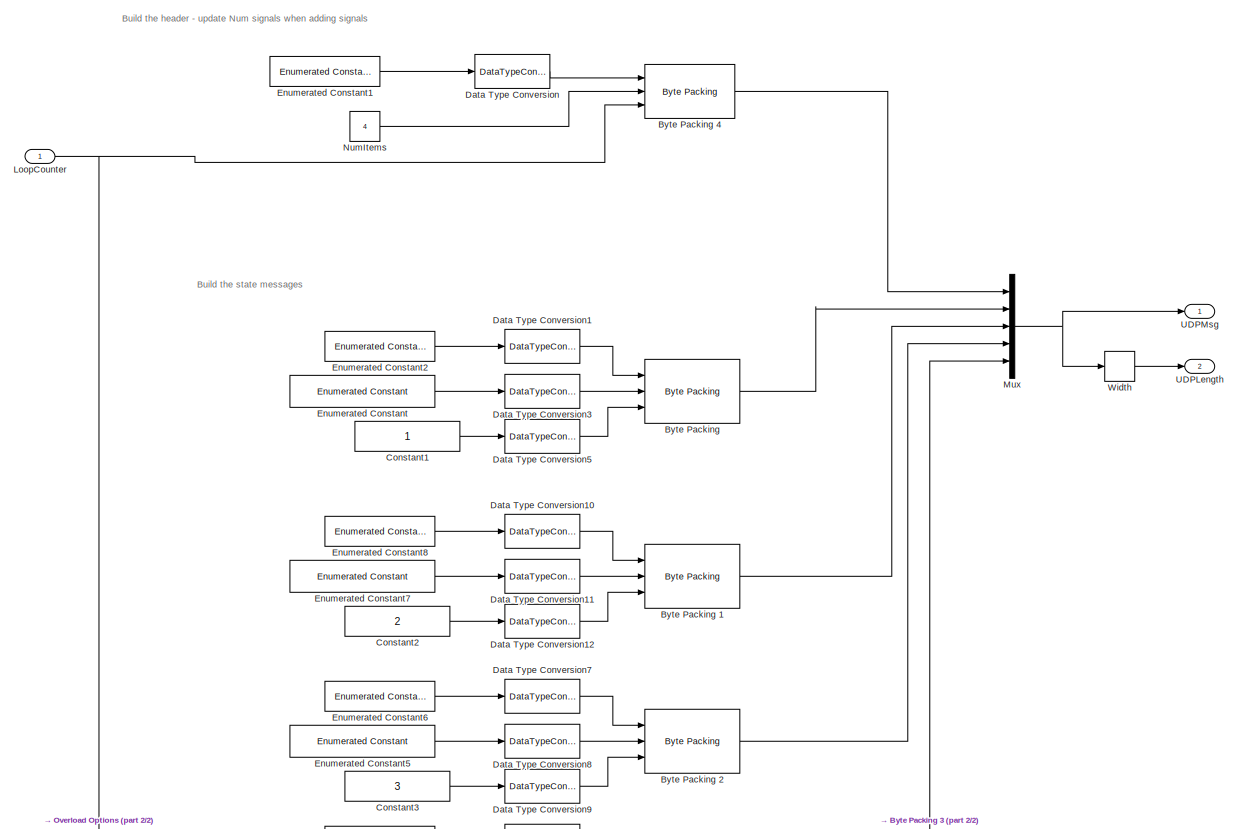
[diagram: ouput/Remote/Subsystem - part 1/2, most of the canvas]
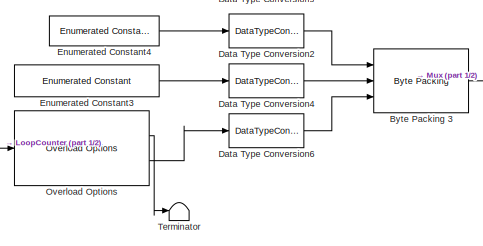
[diagram: ouput/Remote/Subsystem - part 2/2, bottom center region]
BLOCK [SubSystem] ouput/Remote/Subsystem
  Ports = [1, 2]
  RequestExecContextInheritance = off
BLOCK [Reference] ouput/Remote/Subsystem/Byte Packing   REF=slrealtimeutilitieslib/Byte Packing
  Ports = [3, 1]
  SourceBlock = slrealtimeutilitieslib/Byte Packing
  SourceProductBaseCode = XP
  SourceType = slrealtimebytepacking
BLOCK [Reference] ouput/Remote/Subsystem/Byte Packing 1  REF=slrealtimeutilitieslib/Byte Packing
  Ports = [3, 1]
  SourceBlock = slrealtimeutilitieslib/Byte Packing
  SourceProductBaseCode = XP
  SourceType = slrealtimebytepacking
BLOCK [Reference] ouput/Remote/Subsystem/Byte Packing 2  REF=slrealtimeutilitieslib/Byte Packing
  Ports = [3, 1]
  SourceBlock = slrealtimeutilitieslib/Byte Packing
  SourceProductBaseCode = XP
  SourceType = slrealtimebytepacking
BLOCK [Reference] ouput/Remote/Subsystem/Byte Packing 3  REF=slrealtimeutilitieslib/Byte Packing
  Ports = [3, 1]
  SourceBlock = slrealtimeutilitieslib/Byte Packing
  SourceProductBaseCode = XP
  SourceType = slrealtimebytepacking
BLOCK [Reference] ouput/Remote/Subsystem/Byte Packing 4  REF=slrealtimeutilitieslib/Byte Packing
  Ports = [3, 1]
  SourceBlock = slrealtimeutilitieslib/Byte Packing
  SourceProductBaseCode = XP
  SourceType = slrealtimebytepacking
BLOCK [Constant] ouput/Remote/Subsystem/Constant1
BLOCK [Constant] ouput/Remote/Subsystem/Constant2
  Value = 2
BLOCK [Constant] ouput/Remote/Subsystem/Constant3
  Value = 3
BLOCK [DataTypeConversion] ouput/Remote/Subsystem/Data Type Conversion
  OutDataTypeStr = uint8
  RndMeth = Floor
  SaturateOnIntegerOverflow = off
BLOCK [DataTypeConversion] ouput/Remote/Subsystem/Data Type Conversion1
  OutDataTypeStr = uint8
  RndMeth = Floor
  SaturateOnIntegerOverflow = off
BLOCK [DataTypeConversion] ouput/Remote/Subsystem/Data Type Conversion10
  OutDataTypeStr = uint8
  RndMeth = Floor
  SaturateOnIntegerOverflow = off
BLOCK [DataTypeConversion] ouput/Remote/Subsystem/Data Type Conversion11
  OutDataTypeStr = uint8
  RndMeth = Floor
  SaturateOnIntegerOverflow = off
BLOCK [DataTypeConversion] ouput/Remote/Subsystem/Data Type Conversion12
  OutDataTypeStr = single
  RndMeth = Floor
  SaturateOnIntegerOverflow = off
BLOCK [DataTypeConversion] ouput/Remote/Subsystem/Data Type Conversion2
  OutDataTypeStr = uint8
  RndMeth = Floor
  SaturateOnIntegerOverflow = off
BLOCK [DataTypeConversion] ouput/Remote/Subsystem/Data Type Conversion3
  OutDataTypeStr = uint8
  RndMeth = Floor
  SaturateOnIntegerOverflow = off
BLOCK [DataTypeConversion] ouput/Remote/Subsystem/Data Type Conversion4
  OutDataTypeStr = uint8
  RndMeth = Floor
  SaturateOnIntegerOverflow = off
BLOCK [DataTypeConversion] ouput/Remote/Subsystem/Data Type Conversion5
  OutDataTypeStr = single
  RndMeth = Floor
  SaturateOnIntegerOverflow = off
BLOCK [DataTypeConversion] ouput/Remote/Subsystem/Data Type Conversion6
  OutDataTypeStr = single
  RndMeth = Floor
  SaturateOnIntegerOverflow = off
BLOCK [DataTypeConversion] ouput/Remote/Subsystem/Data Type Conversion7
  OutDataTypeStr = uint8
  RndMeth = Floor
  SaturateOnIntegerOverflow = off
BLOCK [DataTypeConversion] ouput/Remote/Subsystem/Data Type Conversion8
  OutDataTypeStr = uint8
  RndMeth = Floor
  SaturateOnIntegerOverflow = off
BLOCK [DataTypeConversion] ouput/Remote/Subsystem/Data Type Conversion9
  OutDataTypeStr = single
  RndMeth = Floor
  SaturateOnIntegerOverflow = off
BLOCK [Reference] ouput/Remote/Subsystem/Enumerated Constant  REF=simulink/Sources/Enumerated
Constant
  Ports = [0, 1]
  SourceBlock = simulink/Sources/Enumerated\nConstant
  SourceProductBaseCode = SL
  SourceType = Enumerated Constant
BLOCK [Reference] ouput/Remote/Subsystem/Enumerated Constant1  REF=simulink/Sources/Enumerated
Constant
  Ports = [0, 1]
  SourceBlock = simulink/Sources/Enumerated\nConstant
  SourceProductBaseCode = SL
  SourceType = Enumerated Constant
BLOCK [Reference] ouput/Remote/Subsystem/Enumerated Constant2  REF=simulink/Sources/Enumerated
Constant
  Ports = [0, 1]
  SourceBlock = simulink/Sources/Enumerated\nConstant
  SourceProductBaseCode = SL
  SourceType = Enumerated Constant
BLOCK [Reference] ouput/Remote/Subsystem/Enumerated Constant3  REF=simulink/Sources/Enumerated
Constant
  Ports = [0, 1]
  SourceBlock = simulink/Sources/Enumerated\nConstant
  SourceProductBaseCode = SL
  SourceType = Enumerated Constant
BLOCK [Reference] ouput/Remote/Subsystem/Enumerated Constant4  REF=simulink/Sources/Enumerated
Constant
  Ports = [0, 1]
  SourceBlock = simulink/Sources/Enumerated\nConstant
  SourceProductBaseCode = SL
  SourceType = Enumerated Constant
BLOCK [Reference] ouput/Remote/Subsystem/Enumerated Constant5  REF=simulink/Sources/Enumerated
Constant
  Ports = [0, 1]
  SourceBlock = simulink/Sources/Enumerated\nConstant
  SourceProductBaseCode = SL
  SourceType = Enumerated Constant
BLOCK [Reference] ouput/Remote/Subsystem/Enumerated Constant6  REF=simulink/Sources/Enumerated
Constant
  Ports = [0, 1]
  SourceBlock = simulink/Sources/Enumerated\nConstant
  SourceProductBaseCode = SL
  SourceType = Enumerated Constant
BLOCK [Reference] ouput/Remote/Subsystem/Enumerated Constant7  REF=simulink/Sources/Enumerated
Constant
  Ports = [0, 1]
  SourceBlock = simulink/Sources/Enumerated\nConstant
  SourceProductBaseCode = SL
  SourceType = Enumerated Constant
BLOCK [Reference] ouput/Remote/Subsystem/Enumerated Constant8  REF=simulink/Sources/Enumerated
Constant
  Ports = [0, 1]
  SourceBlock = simulink/Sources/Enumerated\nConstant
  SourceProductBaseCode = SL
  SourceType = Enumerated Constant
BLOCK [Inport] ouput/Remote/Subsystem/LoopCounter
BLOCK [Mux] ouput/Remote/Subsystem/Mux
  DisplayOption = bar
  Inputs = 5
  Ports = [5, 1]
BLOCK [Constant] ouput/Remote/Subsystem/NumItems
  OutDataTypeStr = uint8
  Value = 4
BLOCK [Reference] ouput/Remote/Subsystem/Overload Options  REF=slrealtimetgmanagement/Overload Options
  Ports = [1, 2]
  SourceBlock = slrealtimetgmanagement/Overload Options
  SourceProductBaseCode = XP
  SourceType = slrtOverloadOptions
BLOCK [Terminator] ouput/Remote/Subsystem/Terminator
BLOCK [Outport] ouput/Remote/Subsystem/UDPLength
  Port = 2
BLOCK [Outport] ouput/Remote/Subsystem/UDPMsg
BLOCK [Width] ouput/Remote/Subsystem/Width
BLOCK [Sum] ouput/Remote/Sum
  Inputs = |++
  OutDataTypeStr = uint32
  Ports = [2, 1]
BLOCK [Reference] ouput/Remote/UDP Msg  REF=slrealtimeiplib/UDP Send
  Ports = [2]
  SourceBlock = slrealtimeiplib/UDP Send
  SourceProductBaseCode = XP
  SourceType = slrealtimeudpsend
BLOCK [Reference] ouput/Remote/control  REF=slrealtimeloglib/File Log
  Ports = [1]
  SourceBlock = slrealtimeloglib/File Log
  SourceProductBaseCode = XP
  SourceType = slrealtimeloggingblock
BLOCK [Inport] ouput/Remote/ctrlSignals
BLOCK [Gain] ouput/Remote/loopCounter
  OutDataTypeStr = uint32
  ParamDataTypeStr = uint32
BLOCK [Reference] ouput/Remote/power  REF=slrealtimeloglib/File Log
  Ports = [1]
  SourceBlock = slrealtimeloglib/File Log
  SourceProductBaseCode = XP
  SourceType = slrealtimeloggingblock
BLOCK [Inport] ouput/Remote/powerSignals
  Port = 2
BLOCK [Inport] ouput/ctrlSignals
BLOCK [Inport] ouput/powerSignals
  Port = 2
BLOCK [Constant] param1
  Commented = on
  OutDataTypeStr = Inherit: Inherit via back propagation
  SampleTime = Ts
BLOCK [Constant] param2
  Commented = on
  OutDataTypeStr = Inherit: Inherit via back propagation
  SampleTime = Ts
BLOCK [Constant] param3
  Commented = on
  OutDataTypeStr = Inherit: Inherit via back propagation
  SampleTime = Ts
BLOCK [Constant] param4
  Commented = on
  OutDataTypeStr = Inherit: Inherit via back propagation
  SampleTime = Ts
BLOCK [SubSystem] params
  LabelModeActiveChoice = Local
  Ports = [0, 5]
  RequestExecContextInheritance = off
  Variant = on
  VariantControlMode = label
BLOCK [SubSystem] params/Local
  Ports = [0, 5]
  RequestExecContextInheritance = off
  VariantControl = Local
BLOCK [Outport] params/Local/ctrlParam1
BLOCK [Outport] params/Local/ctrlParam2
  Port = 2
BLOCK [Outport] params/Local/ctrlParam3
  Port = 3
BLOCK [Outport] params/Local/ctrlParam4
  Port = 4
BLOCK [Outport] params/Local/ctrlParam5
  Port = 5
BLOCK [Constant] params/Local/param1
  OutDataTypeStr = Inherit: Inherit via back propagation
  SampleTime = Ts
  Value = param1
BLOCK [Constant] params/Local/param2
  SampleTime = Ts
  Value = param2
BLOCK [Constant] params/Local/param3
  SampleTime = Ts
  Value = param3
BLOCK [Constant] params/Local/param4
  SampleTime = Ts
  Value = param4
  VectorParams1D = off
BLOCK [Constant] params/Local/waveH
  SampleTime = Ts
  Value = waveH
BLOCK [SubSystem] params/Remote
  Ports = [0, 5]
  RequestExecContextInheritance = off
  VariantControl = Remote
BLOCK [BusAssignment] params/Remote/Bus Assignment
  AssignedSignals = param1,param2,param3,param4,param5
  Ports = [6, 1]
BLOCK [BusSelector] params/Remote/Bus Selector
  OutputSignals = param1,param2,param3,param4,param5
  Ports = [1, 5]
BLOCK [Clock] params/Remote/Clock
BLOCK [Constant] params/Remote/Constant
  OutDataTypeStr = Bus: slBus1
  Value = paramStruct
  VectorParams1D = off
BLOCK [Display] params/Remote/Display3
  Decimation = 1
  Ports = [1]
BLOCK [SubSystem] params/Remote/MATLAB Function
  ErrorFcn = Stateflow.Translate.translate
  PermitHierarchicalResolution = ExplicitOnly
  Ports = [2, 2]
  RequestExecContextInheritance = off
  SFBlockType = MATLAB Function
  TreatAsAtomicUnit = on
BLOCK [Demux] params/Remote/MATLAB Function/ Demux 
  Outputs = 1
  Ports = [1, 1]
BLOCK [S-Function] params/Remote/MATLAB Function/ SFunction 
  EnableBusSupport = on
  FunctionName = sf_sfun
  PortCounts = [2 3]
  Ports = [2, 3]
  SFcnIsStateOwnerBlock = off
  SFunctionDeploymentMode = off
  Tag = Stateflow S-Function 2
BLOCK [Terminator] params/Remote/MATLAB Function/ Terminator 
BLOCK [Inport] params/Remote/MATLAB Function/busIn
  Port = 2
BLOCK [Outport] params/Remote/MATLAB Function/busOut
  Port = 2
BLOCK [Outport] params/Remote/MATLAB Function/error
BLOCK [Inport] params/Remote/MATLAB Function/udpData
BLOCK [Memory] params/Remote/Memory
  NameLocation = top
BLOCK [Constant] params/Remote/ParamIn1
  SampleTime = Ts
BLOCK [Constant] params/Remote/ParamIn2
  SampleTime = Ts
  VectorParams1D = off
BLOCK [Constant] params/Remote/ParamIn3
  SampleTime = Ts
BLOCK [Constant] params/Remote/ParamIn4
  OutDataTypeStr = double
  SampleTime = Ts
BLOCK [Constant] params/Remote/ParamIn5
  OutDataTypeStr = double
  SampleTime = Ts
BLOCK [Switch] params/Remote/Switch
  Criteria = u2 > Threshold
  InputSameDT = off
  SaturateOnIntegerOverflow = off
  Threshold = .01
BLOCK [Terminator] params/Remote/Terminator
BLOCK [Reference] params/Remote/UDP Receive  REF=slrealtimeiplib/UDP Receive
  Ports = [0, 2]
  SourceBlock = slrealtimeiplib/UDP Receive
  SourceProductBaseCode = XP
  SourceType = slrealtimeudpreceive
BLOCK [Outport] params/Remote/ctrlParam1
BLOCK [Outport] params/Remote/ctrlParam2
  Port = 2
BLOCK [Outport] params/Remote/ctrlParam3
  Port = 3
BLOCK [Outport] params/Remote/ctrlParam4
  Port = 4
BLOCK [Outport] params/Remote/ctrlParam5
  Port = 5
BLOCK [Outport] params/ctrlParam1
BLOCK [Outport] params/ctrlParam2
  Port = 2
BLOCK [Outport] params/ctrlParam3
  Port = 3
BLOCK [Outport] params/ctrlParam4
  Port = 4
BLOCK [Outport] params/ctrlParam5
  Port = 5
BLOCK [Reference] power  REF=slrealtimeloglib/File Log
  Commented = on
  Ports = [1]
  SourceBlock = slrealtimeloglib/File Log
  SourceProductBaseCode = XP
  SourceType = slrealtimeloggingblock
BLOCK [SubSystem] setpointComs
  Commented = on
  LabelModeActiveChoice = singleSpeedgoat
  NameLocation = top
  Ports = [1, 1]
  RequestExecContextInheritance = off
  Variant = on
  VariantControlMode = label
BLOCK [Inport] setpointComs/ctrl2Twin
BLOCK [Outport] setpointComs/ctrl2twin
BLOCK [SubSystem] setpointComs/nonRT
  Ports = [1, 1]
  RequestExecContextInheritance = off
  VariantControl = nonRT
BLOCK [Inport] setpointComs/nonRT/In Bus Element
BLOCK [Inport] setpointComs/nonRT/In Bus Element1
BLOCK [Outport] setpointComs/nonRT/Out Bus Element
BLOCK [Outport] setpointComs/nonRT/Out Bus Element1
BLOCK [SubSystem] setpointComs/singleSpeedgoat
  Ports = [1, 1]
  RequestExecContextInheritance = off
  VariantControl = singleSpeedgoat
BLOCK [Constant] setpointComs/singleSpeedgoat/Constant
  Commented = on
  SampleTime = Ts
BLOCK [Delay] setpointComs/singleSpeedgoat/Delay
  DelayLength = 1
  InputPortMap = u0
  Ports = [1, 1]
BLOCK [Delay] setpointComs/singleSpeedgoat/Delay1
  DelayLength = 1
  InputPortMap = u0
  Ports = [1, 1]
BLOCK [Inport] setpointComs/singleSpeedgoat/In Bus Element
BLOCK [Inport] setpointComs/singleSpeedgoat/In Bus Element1
BLOCK [Memory] setpointComs/singleSpeedgoat/Memory
  Commented = on
  NameLocation = top
BLOCK [Outport] setpointComs/singleSpeedgoat/Out Bus Element
BLOCK [Outport] setpointComs/singleSpeedgoat/Out Bus Element1
BLOCK [SubSystem] setpointComs/singleSpeedgoat/Send UDP
  Commented = on
  Ports = [3]
  RequestExecContextInheritance = off
BLOCK [SubSystem] setpointComs/singleSpeedgoat/Send UDP/BuildDataPckts
  Ports = [3, 2]
  RequestExecContextInheritance = off
BLOCK [SubSystem] setpointComs/singleSpeedgoat/Send UDP/BuildDataPckts/BuildSignal0
  Ports = [2, 1]
  RequestExecContextInheritance = off
BLOCK [Reference] setpointComs/singleSpeedgoat/Send UDP/BuildDataPckts/BuildSignal0/Byte Packing   REF=slrealtimeutilitieslib/Byte Packing
  Ports = [3, 1]
  SourceBlock = slrealtimeutilitieslib/Byte Packing
  SourceProductBaseCode = XP
  SourceType = slrealtimebytepacking
BLOCK [DataTypeConversion] setpointComs/singleSpeedgoat/Send UDP/BuildDataPckts/BuildSignal0/Data Type Conversion
  OutDataTypeStr = uint8
  RndMeth = Floor
  SaturateOnIntegerOverflow = off
BLOCK [Reference] setpointComs/singleSpeedgoat/Send UDP/BuildDataPckts/BuildSignal0/Enumerated Constant  REF=simulink/Sources/Enumerated
Constant
  Ports = [0, 1]
  SourceBlock = simulink/Sources/Enumerated\nConstant
  SourceProductBaseCode = SL
  SourceType = Enumerated Constant
BLOCK [Outport] setpointComs/singleSpeedgoat/Send UDP/BuildDataPckts/BuildSignal0/SignalBytes
BLOCK [Inport] setpointComs/singleSpeedgoat/Send UDP/BuildDataPckts/BuildSignal0/SignalData
  Port = 2
BLOCK [Inport] setpointComs/singleSpeedgoat/Send UDP/BuildDataPckts/BuildSignal0/SignalNo
BLOCK [SubSystem] setpointComs/singleSpeedgoat/Send UDP/BuildDataPckts/BuildSignal1
  Ports = [2, 1]
  RequestExecContextInheritance = off
BLOCK [Reference] setpointComs/singleSpeedgoat/Send UDP/BuildDataPckts/BuildSignal1/Byte Packing   REF=slrealtimeutilitieslib/Byte Packing
  Ports = [3, 1]
  SourceBlock = slrealtimeutilitieslib/Byte Packing
  SourceProductBaseCode = XP
  SourceType = slrealtimebytepacking
BLOCK [DataTypeConversion] setpointComs/singleSpeedgoat/Send UDP/BuildDataPckts/BuildSignal1/Data Type Conversion
  OutDataTypeStr = uint8
  RndMeth = Floor
  SaturateOnIntegerOverflow = off
BLOCK [Reference] setpointComs/singleSpeedgoat/Send UDP/BuildDataPckts/BuildSignal1/Enumerated Constant  REF=simulink/Sources/Enumerated
Constant
  Ports = [0, 1]
  SourceBlock = simulink/Sources/Enumerated\nConstant
  SourceProductBaseCode = SL
  SourceType = Enumerated Constant
BLOCK [Outport] setpointComs/singleSpeedgoat/Send UDP/BuildDataPckts/BuildSignal1/SignalBytes
BLOCK [Inport] setpointComs/singleSpeedgoat/Send UDP/BuildDataPckts/BuildSignal1/SignalData
  Port = 2
BLOCK [Inport] setpointComs/singleSpeedgoat/Send UDP/BuildDataPckts/BuildSignal1/SignalNo
BLOCK [Reference] setpointComs/singleSpeedgoat/Send UDP/BuildDataPckts/Byte Packing   REF=slrealtimeutilitieslib/Byte Packing
  Ports = [3, 1]
  SourceBlock = slrealtimeutilitieslib/Byte Packing
  SourceProductBaseCode = XP
  SourceType = slrealtimebytepacking
BLOCK [Inport] setpointComs/singleSpeedgoat/Send UDP/BuildDataPckts/Current_Aft
  OutDataTypeStr = single
  Port = 3
BLOCK [Inport] setpointComs/singleSpeedgoat/Send UDP/BuildDataPckts/Current_Bow
  OutDataTypeStr = single
  Port = 2
BLOCK [DataTypeConversion] setpointComs/singleSpeedgoat/Send UDP/BuildDataPckts/Data Type Conversion
  OutDataTypeStr = uint8
  RndMeth = Floor
  SaturateOnIntegerOverflow = off
BLOCK [DataTypeConversion] setpointComs/singleSpeedgoat/Send UDP/BuildDataPckts/Data Type Conversion1
  OutDataTypeStr = uint8
  RndMeth = Floor
  SaturateOnIntegerOverflow = off
BLOCK [DataTypeConversion] setpointComs/singleSpeedgoat/Send UDP/BuildDataPckts/Data Type Conversion2
  OutDataTypeStr = uint8
  RndMeth = Floor
  SaturateOnIntegerOverflow = off
BLOCK [Reference] setpointComs/singleSpeedgoat/Send UDP/BuildDataPckts/Enumerated Constant  REF=simulink/Sources/Enumerated
Constant
  Ports = [0, 1]
  SourceBlock = simulink/Sources/Enumerated\nConstant
  SourceProductBaseCode = SL
  SourceType = Enumerated Constant
BLOCK [Reference] setpointComs/singleSpeedgoat/Send UDP/BuildDataPckts/Enumerated Constant1  REF=simulink/Sources/Enumerated
Constant
  Ports = [0, 1]
  SourceBlock = simulink/Sources/Enumerated\nConstant
  SourceProductBaseCode = SL
  SourceType = Enumerated Constant
BLOCK [Reference] setpointComs/singleSpeedgoat/Send UDP/BuildDataPckts/Enumerated Constant2  REF=simulink/Sources/Enumerated
Constant
  Ports = [0, 1]
  SourceBlock = simulink/Sources/Enumerated\nConstant
  SourceProductBaseCode = SL
  SourceType = Enumerated Constant
BLOCK [Inport] setpointComs/singleSpeedgoat/Send UDP/BuildDataPckts/LoopCounter
BLOCK [Mux] setpointComs/singleSpeedgoat/Send UDP/BuildDataPckts/Mux
  DisplayOption = bar
  Inputs = 3
  Ports = [3, 1]
BLOCK [Constant] setpointComs/singleSpeedgoat/Send UDP/BuildDataPckts/NumItems
  OutDataTypeStr = uint8
  Value = 2
BLOCK [Outport] setpointComs/singleSpeedgoat/Send UDP/BuildDataPckts/UDPData
BLOCK [Outport] setpointComs/singleSpeedgoat/Send UDP/BuildDataPckts/UDPLengh
  Port = 2
BLOCK [Width] setpointComs/singleSpeedgoat/Send UDP/BuildDataPckts/Width
BLOCK [Inport] setpointComs/singleSpeedgoat/Send UDP/Current_Aft
  Port = 3
BLOCK [Inport] setpointComs/singleSpeedgoat/Send UDP/Current_Bow
BLOCK [DataTypeConversion] setpointComs/singleSpeedgoat/Send UDP/Data Type Conversion
  OutDataTypeStr = single
  RndMeth = Floor
  SaturateOnIntegerOverflow = off
BLOCK [DataTypeConversion] setpointComs/singleSpeedgoat/Send UDP/Data Type Conversion1
  OutDataTypeStr = single
  RndMeth = Floor
  SaturateOnIntegerOverflow = off
BLOCK [Inport] setpointComs/singleSpeedgoat/Send UDP/LoopCounter
  Port = 2
BLOCK [Reference] setpointComs/singleSpeedgoat/Send UDP/UDP Send  REF=slrealtimeiplib/UDP Send
  Ports = [2]
  SourceBlock = slrealtimeiplib/UDP Send
  SourceProductBaseCode = XP
  SourceType = slrealtimeudpsend
BLOCK [Sum] setpointComs/singleSpeedgoat/Sum
  Commented = on
  Inputs = |++
  OutDataTypeStr = uint32
  Ports = [2, 1]
BLOCK [Gain] setpointComs/singleSpeedgoat/loopCounter
  Commented = on
  OutDataTypeStr = uint32
  ParamDataTypeStr = uint32
BLOCK [SubSystem] setpointComs1
  LabelModeActiveChoice = singleSpeedgoat
  NameLocation = top
  Ports = [1, 1]
  RequestExecContextInheritance = off
  Variant = on
  VariantControlMode = label
BLOCK [Inport] setpointComs1/ctrl2TwinIn
  OutDataTypeStr = Bus: ctrl2TwinBus
BLOCK [Outport] setpointComs1/ctrl2TwinOut
  OutDataTypeStr = Bus: ctrl2TwinBus
BLOCK [SubSystem] setpointComs1/nonRT
  Ports = [1, 1]
  RequestExecContextInheritance = off
  VariantControl = nonRT
BLOCK [Inport] setpointComs1/nonRT/ctrl2TwinIn
  OutDataTypeStr = Bus: ctrl2TwinBus
BLOCK [Outport] setpointComs1/nonRT/ctrl2TwinOut
  OutDataTypeStr = Bus: ctrl2TwinBus
BLOCK [SubSystem] setpointComs1/singleSpeedgoat
  Ports = [1, 1]
  RequestExecContextInheritance = off
  VariantControl = singleSpeedgoat
BLOCK [Delay] setpointComs1/singleSpeedgoat/Delay2
  DelayLength = 1
  InputPortMap = u0
  Ports = [1, 1]
BLOCK [Inport] setpointComs1/singleSpeedgoat/ctrl2TwinIn
  OutDataTypeStr = Bus: ctrl2TwinBus
BLOCK [Outport] setpointComs1/singleSpeedgoat/ctrl2TwinOut
  OutDataTypeStr = Bus: ctrl2TwinBus
BLOCK [SubSystem] setpointComs1/twoSpeedgoats
  Ports = [1, 1]
  RequestExecContextInheritance = off
  VariantControl = twoSpeedgoats
BLOCK [BusAssignment] setpointComs1/twoSpeedgoats/Bus Assignment
  AssignedSignals = curAft,curBow
  Ports = [3, 1]
BLOCK [BusSelector] setpointComs1/twoSpeedgoats/Bus Selector
  OutputSignals = signal1,signal2
  Ports = [1, 2]
BLOCK [Constant] setpointComs1/twoSpeedgoats/Constant
  SampleTime = -1
  Value = 0
  VectorParams1D = off
BLOCK [Constant] setpointComs1/twoSpeedgoats/Constant2
  OutDataTypeStr = Bus: ctrl2TwinBus
  Value = ctrl2TwinStruct
BLOCK [Reference] setpointComs1/twoSpeedgoats/EtherCAT Init  REF=slrealtimeethercatlib/EtherCAT Init
  Ports = [0, 1]
  Priority = 0
  SourceBlock = slrealtimeethercatlib/EtherCAT Init
  SourceProductBaseCode = XP
  SourceType = ethercatinit
BLOCK [Reference] setpointComs1/twoSpeedgoats/EtherCAT PDO Transmit  REF=slrealtimeethercatlib/EtherCAT PDO Transmit
  Ports = [1]
  Priority = 3
  SourceBlock = slrealtimeethercatlib/EtherCAT PDO Transmit
  SourceProductBaseCode = XP
  SourceType = ethercat_pdo_send
BLOCK [Reference] setpointComs1/twoSpeedgoats/EtherCAT PDO Transmit1  REF=slrealtimeethercatlib/EtherCAT PDO Transmit
  Ports = [1]
  Priority = 3
  SourceBlock = slrealtimeethercatlib/EtherCAT PDO Transmit
  SourceProductBaseCode = XP
  SourceType = ethercat_pdo_send
BLOCK [Terminator] setpointComs1/twoSpeedgoats/Terminator
BLOCK [Inport] setpointComs1/twoSpeedgoats/ctrl2TwinIn
  OutDataTypeStr = Bus: ctrl2TwinBus
BLOCK [Outport] setpointComs1/twoSpeedgoats/ctrl2TwinOut
BLOCK [SubSystem] stateCtrl
  Ports = [2, 1]
  RequestExecContextInheritance = off
BLOCK [BusAssignment] stateCtrl/Bus Assignment
  AssignedSignals = state,curAft,curBow
  Ports = [4, 1]
BLOCK [BusSelector] stateCtrl/Bus Selector
  OutputSignals = posFlapAft,posFlapBow
  Ports = [1, 2]
BLOCK [BusSelector] stateCtrl/Bus Selector1
  OutputSignals = curAft,curBow
  Ports = [1, 2]
BLOCK [DataTypeConversion] stateCtrl/Cast To Double
  OutDataTypeStr = int32
  RndMeth = Floor
  SaturateOnIntegerOverflow = off
BLOCK [SubSystem] stateCtrl/Chart
  ErrorFcn = Stateflow.Translate.translate
  PermitHierarchicalResolution = ExplicitOnly
  Ports = [6, 3]
  RequestExecContextInheritance = off
  SFBlockType = Chart
  TreatAsAtomicUnit = on
BLOCK [Demux] stateCtrl/Chart/ Demux 
  Outputs = 1
  Ports = [1, 1]
BLOCK [S-Function] stateCtrl/Chart/ SFunction 
  EnableBusSupport = on
  FunctionName = sf_sfun
  Parameters = Kt,initTime,maxCurrent,maxFaultCount,safeDamping,safeTime,stableTime
  PortCounts = [6 4]
  Ports = [6, 4]
  SFcnIsStateOwnerBlock = off
  SFunctionDeploymentMode = off
  Tag = Stateflow S-Function 3
BLOCK [Terminator] stateCtrl/Chart/ Terminator 
BLOCK [Inport] stateCtrl/Chart/aftCurrentFilteredIn
  Port = 3
BLOCK [Outport] stateCtrl/Chart/aftCurrentOut
  Port = 2
BLOCK [Inport] stateCtrl/Chart/aftCurrentRawIn
BLOCK [Inport] stateCtrl/Chart/aftVelocity
  Port = 5
BLOCK [Inport] stateCtrl/Chart/bowCurrentFilteredIn
  Port = 4
BLOCK [Outport] stateCtrl/Chart/bowCurrentOut
  Port = 3
BLOCK [Inport] stateCtrl/Chart/bowCurrentRawIn
  Port = 2
BLOCK [Inport] stateCtrl/Chart/bowVelocity
  Port = 6
BLOCK [Outport] stateCtrl/Chart/state
BLOCK [Constant] stateCtrl/Constant
  OutDataTypeStr = Bus: ctrl2TwinBus
  Value = ctrl2TwinStruct
BLOCK [Reference] stateCtrl/Discrete Derivative  REF=simulink/Discrete/Discrete Derivative
  Ports = [1, 1]
  SourceBlock = simulink/Discrete/Discrete Derivative
  SourceProductBaseCode = SL
  SourceType = Discrete Derivative
BLOCK [Reference] stateCtrl/Discrete Derivative1  REF=simulink/Discrete/Discrete Derivative
  Ports = [1, 1]
  SourceBlock = simulink/Discrete/Discrete Derivative
  SourceProductBaseCode = SL
  SourceType = Discrete Derivative
BLOCK [TransferFcn] stateCtrl/Transfer Fcn
  Denominator = [1/(2*pi*lpFreqVelocity) 1]
BLOCK [TransferFcn] stateCtrl/Transfer Fcn1
  Denominator = [1/(2*pi*lpFreqVelocity) 1]
BLOCK [TransferFcn] stateCtrl/Transfer Fcn2
  Denominator = [1/(2*pi*lpFreqCurrent) 1]
BLOCK [TransferFcn] stateCtrl/Transfer Fcn3
  Denominator = [1/(2*pi*lpFreqCurrent) 1]
BLOCK [Inport] stateCtrl/ctrl2TwinIn
  OutDataTypeStr = Bus: ctrl2TwinBus
BLOCK [Outport] stateCtrl/ctrl2TwinOut
  OutDataTypeStr = Bus: ctrl2TwinBus
BLOCK [Inport] stateCtrl/twin2CtrlIn
  OutDataTypeStr = Bus: twin2CtrlBus
  Port = 2
BLOCK [SubSystem] twin
  Commented = on
  LabelModeActiveChoice = systemID
  Ports = [3, 2]
  RequestExecContextInheritance = off
  Variant = on
  VariantControlMode = label
BLOCK [Inport] twin/Fex_Aft
BLOCK [Inport] twin/Fex_Bow
  Port = 2
BLOCK [Outport] twin/Power
BLOCK [ModelReference] twin/WECSim
  ModelNameDialog = FOSWEC_v2.slx
  ModelReferenceVersion = 5.114
  Ports = [3, 2]
  VariantControl = WECSim
BLOCK [Inport] twin/ctrl2twin
  Port = 3
BLOCK [ModelReference] twin/systemID
  ModelNameDialog = systemID.slx
  ModelReferenceVersion = 3.305
  Ports = [3, 2]
  VariantControl = systemID
BLOCK [Outport] twin/twin2ctrl
  Port = 2
BLOCK [SubSystem] twin1
  LabelModeActiveChoice = systemID
  Ports = [3, 2]
  RequestExecContextInheritance = off
  Variant = on
  VariantControlMode = label
BLOCK [Inport] twin1/FexAft
BLOCK [Inport] twin1/FexBow
  Port = 2
BLOCK [ModelReference] twin1/WECSim
  ModelNameDialog = FOSWEC_v2.slx
  ModelReferenceVersion = 5.114
  Ports = [3, 2]
  VariantControl = WECSim
BLOCK [Inport] twin1/ctrl2Twin
  OutDataTypeStr = Bus: ctrl2TwinBus
  Port = 3
BLOCK [Outport] twin1/power
  OutDataTypeStr = Bus: powerBus
BLOCK [ModelReference] twin1/systemID
  ModelNameDialog = systemID.slx
  ModelReferenceVersion = 3.303
  Ports = [3, 2]
  VariantControl = systemID
BLOCK [Outport] twin1/twin2Ctrl
  OutDataTypeStr = Bus: twin2CtrlBus
  Port = 2
BLOCK [Constant] waveH
  Commented = on
  NameLocation = top
  SampleTime = Ts
ANNOTATION (root): REMOVE UNDERSCORE FROM CTRL above if discarding stuff below
ANNOTATION (root): Energy Flux
ANNOTATION (root): Mutiply By WaveH for systemID Param5 == waveH
ANNOTATION (root): These Params are set in starttarget.m
ANNOTATION ctrl: 1) Add Subsystem or Model blocks as valid variant choices. 2) You cannot connect blocks at this level. At simulation, connectivity is automatically determined, based on the active variant and port name matching.
ANNOTATION feedbackComs: 1) Add Subsystem or Model blocks as valid variant choices. 2) You cannot connect blocks at this level. At simulation, connectivity is automatically determined, based on the active variant and port name matching.
ANNOTATION feedbackComs/singleSpeedgoat: Create A Loop Counter
ANNOTATION feedbackComs/singleSpeedgoat/Send UDP Position/BuildDataPckts: Build data packets
ANNOTATION feedbackComs/singleSpeedgoat/Send UDP Position/BuildDataPckts: Build the header - update Num signals when adding signals
ANNOTATION feedbackComs/singleSpeedgoat/Send UDP Position/BuildDataPckts: Merge signals into one byte stream
ANNOTATION feedbackComs/singleSpeedgoat/Subsystem: Build the header - update Num signals when adding signals
ANNOTATION feedbackComs/singleSpeedgoat/Subsystem: Build the state messages
ANNOTATION feedbackComs1: 1) Add Subsystem or Model blocks as valid variant choices. 2) You cannot connect blocks at this level. At simulation, connectivity is automatically determined, based on the active variant and port name matching.
ANNOTATION feedbackComs1/twoSpeedgoats: TODO: Change order (aft should generally be first)
ANNOTATION ouput: 1) Add Subsystem or Model blocks as valid variant choices. 2) You cannot connect blocks at this level. At simulation, connectivity is automatically determined, based on the active variant and port name matching.
ANNOTATION ouput/Local: Non-Realtime
ANNOTATION ouput/Local: Realtime
ANNOTATION ouput/Remote: Create A Loop Counter
ANNOTATION ouput/Remote/Send UDP Data/BuildDataPckts: Build data packets
ANNOTATION ouput/Remote/Send UDP Data/BuildDataPckts: Build the header - update Num signals when adding signals
ANNOTATION ouput/Remote/Send UDP Data/BuildDataPckts: Merge signals into one byte stream
ANNOTATION ouput/Remote/Subsystem: Build the header - update Num signals when adding signals
ANNOTATION ouput/Remote/Subsystem: Build the state messages
ANNOTATION params: 1) Add Subsystem or Model blocks as valid variant choices. 2) You cannot connect blocks at this level. At simulation, connectivity is automatically determined, based on the active variant and port name matching.
ANNOTATION params/Local: These Params are set in starttarget.m
ANNOTATION params/Remote: These Params Are set in starttartget.m
ANNOTATION setpointComs: 1) Add Subsystem or Model blocks as valid variant choices. 2) You cannot connect blocks at this level. At simulation, connectivity is automatically determined, based on the active variant and port name matching.
ANNOTATION setpointComs/singleSpeedgoat/Send UDP/BuildDataPckts: Build data packets
ANNOTATION setpointComs/singleSpeedgoat/Send UDP/BuildDataPckts: Build the header - update Num signals when adding signals
ANNOTATION setpointComs/singleSpeedgoat/Send UDP/BuildDataPckts: Merge signals into one byte stream
ANNOTATION setpointComs1: 1) Add Subsystem or Model blocks as valid variant choices. 2) You cannot connect blocks at this level. At simulation, connectivity is automatically determined, based on the active variant and port name matching.
ANNOTATION setpointComs1/twoSpeedgoats: TODO: Swap aft and bow order (aft should be first)
ANNOTATION setpointComs1/twoSpeedgoats: The setpoint comes from the secondary system
ANNOTATION stateCtrl: These filters are only relevant in a fault state
ANNOTATION stateCtrl: Use filtered current signals for the state transition logic to avoid triggering a fault bases on short current spikes. These filters are NOT applied to the current signal in the normal operating state
ANNOTATION twin: 1) Add Subsystem or Model blocks as valid variant choices. 2) You cannot connect blocks at this level. At simulation, connectivity is automatically determined, based on the active variant and port name matching.
ANNOTATION twin1: 1) Add Subsystem or Model blocks as valid variant choices. 2) You cannot connect blocks at this level. At simulation, connectivity is automatically determined, based on the active variant and port name matching.
LINE Aft:1 -> Product3:1
LINE Bow:1 -> Product4:1
NET Bus Assignment:1 -> ctrl:2, organizeOutput:4
LINE Bus Selector1:1 -> Signal Copy17:1
LINE Bus Selector1:2 -> Signal Copy1:1
LINE Bus Selector2:1 -> Signal Copy2:1
LINE Bus Selector2:2 -> Signal Copy3:1
LINE Bus Selector3:1 -> Signal Copy8:1
LINE Bus Selector3:2 -> Signal Copy9:1
LINE Bus Selector3:3 -> Signal Copy10:1
LINE Bus Selector:1 -> Moving Average:1
LINE Constant1:1 -> Product5:2
LINE Constant2:1 -> Bus Assignment:1
LINE Constant:1 -> Product2:2
LINE ControlSignals:1 -> control:1
LINE Divide1:1 -> organizeOutput:6
LINE Divide:1 -> Signal Copy11:1
LINE From1:1 -> ouput:2
LINE From3:1 -> Divide:1
LINE From:1 -> Divide1:1
NET Moving Average:1 -> Goto3:1, Power:4
LINE Power:1 -> power:1
LINE Product1:1 -> twin:2
LINE Product2:1 -> Divide:2
LINE Product3:1 -> twin1:1
LINE Product4:1 -> twin1:2
LINE Product5:1 -> Divide1:2
LINE Product:1 -> twin:1
LINE Signal Copy10:1 -> Power:3
LINE Signal Copy11:1 -> ControlSignals:14
LINE Signal Copy12:1 -> ControlSignals:3
LINE Signal Copy13:1 -> ControlSignals:4
LINE Signal Copy14:1 -> ControlSignals:5
LINE Signal Copy15:1 -> ControlSignals:6
LINE Signal Copy16:1 -> ControlSignals:13
LINE Signal Copy17:1 -> ControlSignals:1
LINE Signal Copy1:1 -> ControlSignals:2
LINE Signal Copy2:1 -> ControlSignals:11
LINE Signal Copy3:1 -> ControlSignals:12
LINE Signal Copy4:1 -> ControlSignals:7
LINE Signal Copy5:1 -> ControlSignals:8
LINE Signal Copy6:1 -> ControlSignals:9
LINE Signal Copy7:1 -> ControlSignals:10
LINE Signal Copy8:1 -> Power:1
LINE Signal Copy9:1 -> Power:2
LINE Square1:1 -> Product5:1
LINE Square:1 -> Product2:1
LINE ctrl:1 -> organizeOutput:2
LINE ctrl:2 -> stateCtrl:1
LINE ctrl_:1 -> Signal Copy4:1
LINE ctrl_:2 -> Signal Copy5:1
LINE feedbackComs/nonRT/In Bus Element1:1 -> feedbackComs/nonRT/Memory1:1
LINE feedbackComs/nonRT/In Bus Element:1 -> feedbackComs/nonRT/Memory:1
LINE feedbackComs/nonRT/Memory1:1 -> feedbackComs/nonRT/Out Bus Element1:1
LINE feedbackComs/nonRT/Memory:1 -> feedbackComs/nonRT/Out Bus Element:1
LINE feedbackComs/singleSpeedgoat/Constant:1 -> feedbackComs/singleSpeedgoat/Sum:1
LINE feedbackComs/singleSpeedgoat/In Bus Element1:1 -> feedbackComs/singleSpeedgoat/Out Bus Element1:1
LINE feedbackComs/singleSpeedgoat/In Bus Element:1 -> feedbackComs/singleSpeedgoat/Out Bus Element:1
LINE feedbackComs/singleSpeedgoat/Memory:1 -> feedbackComs/singleSpeedgoat/Sum:2
LINE feedbackComs/singleSpeedgoat/Send UDP Position/BuildDataPckts/BuildSignal0/Byte Packing :1 -> feedbackComs/singleSpeedgoat/Send UDP Position/BuildDataPckts/BuildSignal0/SignalBytes:1
LINE feedbackComs/singleSpeedgoat/Send UDP Position/BuildDataPckts/BuildSignal0/Data Type Conversion:1 -> feedbackComs/singleSpeedgoat/Send UDP Position/BuildDataPckts/BuildSignal0/Byte Packing :1
LINE feedbackComs/singleSpeedgoat/Send UDP Position/BuildDataPckts/BuildSignal0/Enumerated Constant:1 -> feedbackComs/singleSpeedgoat/Send UDP Position/BuildDataPckts/BuildSignal0/Data Type Conversion:1
LINE feedbackComs/singleSpeedgoat/Send UDP Position/BuildDataPckts/BuildSignal0/SignalData:1 -> feedbackComs/singleSpeedgoat/Send UDP Position/BuildDataPckts/BuildSignal0/Byte Packing :3
LINE feedbackComs/singleSpeedgoat/Send UDP Position/BuildDataPckts/BuildSignal0/SignalNo:1 -> feedbackComs/singleSpeedgoat/Send UDP Position/BuildDataPckts/BuildSignal0/Byte Packing :2
LINE feedbackComs/singleSpeedgoat/Send UDP Position/BuildDataPckts/BuildSignal0:1 -> feedbackComs/singleSpeedgoat/Send UDP Position/BuildDataPckts/Mux:2
LINE feedbackComs/singleSpeedgoat/Send UDP Position/BuildDataPckts/BuildSignal1/Byte Packing :1 -> feedbackComs/singleSpeedgoat/Send UDP Position/BuildDataPckts/BuildSignal1/SignalBytes:1
LINE feedbackComs/singleSpeedgoat/Send UDP Position/BuildDataPckts/BuildSignal1/Data Type Conversion:1 -> feedbackComs/singleSpeedgoat/Send UDP Position/BuildDataPckts/BuildSignal1/Byte Packing :1
LINE feedbackComs/singleSpeedgoat/Send UDP Position/BuildDataPckts/BuildSignal1/Enumerated Constant:1 -> feedbackComs/singleSpeedgoat/Send UDP Position/BuildDataPckts/BuildSignal1/Data Type Conversion:1
LINE feedbackComs/singleSpeedgoat/Send UDP Position/BuildDataPckts/BuildSignal1/SignalData:1 -> feedbackComs/singleSpeedgoat/Send UDP Position/BuildDataPckts/BuildSignal1/Byte Packing :3
LINE feedbackComs/singleSpeedgoat/Send UDP Position/BuildDataPckts/BuildSignal1/SignalNo:1 -> feedbackComs/singleSpeedgoat/Send UDP Position/BuildDataPckts/BuildSignal1/Byte Packing :2
LINE feedbackComs/singleSpeedgoat/Send UDP Position/BuildDataPckts/BuildSignal1:1 -> feedbackComs/singleSpeedgoat/Send UDP Position/BuildDataPckts/Mux:3
LINE feedbackComs/singleSpeedgoat/Send UDP Position/BuildDataPckts/Byte Packing :1 -> feedbackComs/singleSpeedgoat/Send UDP Position/BuildDataPckts/Mux:1
LINE feedbackComs/singleSpeedgoat/Send UDP Position/BuildDataPckts/Data Type Conversion1:1 -> feedbackComs/singleSpeedgoat/Send UDP Position/BuildDataPckts/BuildSignal0:1
LINE feedbackComs/singleSpeedgoat/Send UDP Position/BuildDataPckts/Data Type Conversion2:1 -> feedbackComs/singleSpeedgoat/Send UDP Position/BuildDataPckts/BuildSignal1:1
LINE feedbackComs/singleSpeedgoat/Send UDP Position/BuildDataPckts/Data Type Conversion:1 -> feedbackComs/singleSpeedgoat/Send UDP Position/BuildDataPckts/Byte Packing :1
LINE feedbackComs/singleSpeedgoat/Send UDP Position/BuildDataPckts/Enumerated Constant1:1 -> feedbackComs/singleSpeedgoat/Send UDP Position/BuildDataPckts/Data Type Conversion1:1
LINE feedbackComs/singleSpeedgoat/Send UDP Position/BuildDataPckts/Enumerated Constant2:1 -> feedbackComs/singleSpeedgoat/Send UDP Position/BuildDataPckts/Data Type Conversion2:1
LINE feedbackComs/singleSpeedgoat/Send UDP Position/BuildDataPckts/Enumerated Constant:1 -> feedbackComs/singleSpeedgoat/Send UDP Position/BuildDataPckts/Data Type Conversion:1
LINE feedbackComs/singleSpeedgoat/Send UDP Position/BuildDataPckts/LoopCounter:1 -> feedbackComs/singleSpeedgoat/Send UDP Position/BuildDataPckts/Byte Packing :3
NET feedbackComs/singleSpeedgoat/Send UDP Position/BuildDataPckts/Mux:1 -> feedbackComs/singleSpeedgoat/Send UDP Position/BuildDataPckts/UDPData:1, feedbackComs/singleSpeedgoat/Send UDP Position/BuildDataPckts/Width:1
LINE feedbackComs/singleSpeedgoat/Send UDP Position/BuildDataPckts/NumItems:1 -> feedbackComs/singleSpeedgoat/Send UDP Position/BuildDataPckts/Byte Packing :2
LINE feedbackComs/singleSpeedgoat/Send UDP Position/BuildDataPckts/Position_Aft:1 -> feedbackComs/singleSpeedgoat/Send UDP Position/BuildDataPckts/BuildSignal1:2
LINE feedbackComs/singleSpeedgoat/Send UDP Position/BuildDataPckts/Position_Bow:1 -> feedbackComs/singleSpeedgoat/Send UDP Position/BuildDataPckts/BuildSignal0:2
LINE feedbackComs/singleSpeedgoat/Send UDP Position/BuildDataPckts/Width:1 -> feedbackComs/singleSpeedgoat/Send UDP Position/BuildDataPckts/UDPLengh:1
LINE feedbackComs/singleSpeedgoat/Send UDP Position/BuildDataPckts:1 -> feedbackComs/singleSpeedgoat/Send UDP Position/UDP Send:1
LINE feedbackComs/singleSpeedgoat/Send UDP Position/BuildDataPckts:2 -> feedbackComs/singleSpeedgoat/Send UDP Position/UDP Send:2
LINE feedbackComs/singleSpeedgoat/Send UDP Position/Data Type Conversion1:1 -> feedbackComs/singleSpeedgoat/Send UDP Position/BuildDataPckts:3
LINE feedbackComs/singleSpeedgoat/Send UDP Position/Data Type Conversion:1 -> feedbackComs/singleSpeedgoat/Send UDP Position/BuildDataPckts:2
LINE feedbackComs/singleSpeedgoat/Send UDP Position/LoopCounter:1 -> feedbackComs/singleSpeedgoat/Send UDP Position/BuildDataPckts:1
LINE feedbackComs/singleSpeedgoat/Send UDP Position/Position_Aft:1 -> feedbackComs/singleSpeedgoat/Send UDP Position/Data Type Conversion1:1
LINE feedbackComs/singleSpeedgoat/Send UDP Position/Position_Bow:1 -> feedbackComs/singleSpeedgoat/Send UDP Position/Data Type Conversion:1
LINE feedbackComs/singleSpeedgoat/Subsystem/Byte Packing 1:1 -> feedbackComs/singleSpeedgoat/Subsystem/Mux:3
LINE feedbackComs/singleSpeedgoat/Subsystem/Byte Packing 2:1 -> feedbackComs/singleSpeedgoat/Subsystem/Mux:4
LINE feedbackComs/singleSpeedgoat/Subsystem/Byte Packing 3:1 -> feedbackComs/singleSpeedgoat/Subsystem/Mux:5
LINE feedbackComs/singleSpeedgoat/Subsystem/Byte Packing 4:1 -> feedbackComs/singleSpeedgoat/Subsystem/Mux:1
LINE feedbackComs/singleSpeedgoat/Subsystem/Byte Packing :1 -> feedbackComs/singleSpeedgoat/Subsystem/Mux:2
LINE feedbackComs/singleSpeedgoat/Subsystem/Constant1:1 -> feedbackComs/singleSpeedgoat/Subsystem/Data Type Conversion5:1
LINE feedbackComs/singleSpeedgoat/Subsystem/Constant2:1 -> feedbackComs/singleSpeedgoat/Subsystem/Data Type Conversion12:1
LINE feedbackComs/singleSpeedgoat/Subsystem/Constant3:1 -> feedbackComs/singleSpeedgoat/Subsystem/Data Type Conversion9:1
LINE feedbackComs/singleSpeedgoat/Subsystem/Constant:1 -> feedbackComs/singleSpeedgoat/Subsystem/Data Type Conversion6:1
LINE feedbackComs/singleSpeedgoat/Subsystem/Data Type Conversion10:1 -> feedbackComs/singleSpeedgoat/Subsystem/Byte Packing 1:1
LINE feedbackComs/singleSpeedgoat/Subsystem/Data Type Conversion11:1 -> feedbackComs/singleSpeedgoat/Subsystem/Byte Packing 1:2
LINE feedbackComs/singleSpeedgoat/Subsystem/Data Type Conversion12:1 -> feedbackComs/singleSpeedgoat/Subsystem/Byte Packing 1:3
LINE feedbackComs/singleSpeedgoat/Subsystem/Data Type Conversion1:1 -> feedbackComs/singleSpeedgoat/Subsystem/Byte Packing :1
LINE feedbackComs/singleSpeedgoat/Subsystem/Data Type Conversion2:1 -> feedbackComs/singleSpeedgoat/Subsystem/Byte Packing 3:1
LINE feedbackComs/singleSpeedgoat/Subsystem/Data Type Conversion3:1 -> feedbackComs/singleSpeedgoat/Subsystem/Byte Packing :2
LINE feedbackComs/singleSpeedgoat/Subsystem/Data Type Conversion4:1 -> feedbackComs/singleSpeedgoat/Subsystem/Byte Packing 3:2
LINE feedbackComs/singleSpeedgoat/Subsystem/Data Type Conversion5:1 -> feedbackComs/singleSpeedgoat/Subsystem/Byte Packing :3
LINE feedbackComs/singleSpeedgoat/Subsystem/Data Type Conversion6:1 -> feedbackComs/singleSpeedgoat/Subsystem/Byte Packing 3:3
LINE feedbackComs/singleSpeedgoat/Subsystem/Data Type Conversion7:1 -> feedbackComs/singleSpeedgoat/Subsystem/Byte Packing 2:1
LINE feedbackComs/singleSpeedgoat/Subsystem/Data Type Conversion8:1 -> feedbackComs/singleSpeedgoat/Subsystem/Byte Packing 2:2
LINE feedbackComs/singleSpeedgoat/Subsystem/Data Type Conversion9:1 -> feedbackComs/singleSpeedgoat/Subsystem/Byte Packing 2:3
LINE feedbackComs/singleSpeedgoat/Subsystem/Data Type Conversion:1 -> feedbackComs/singleSpeedgoat/Subsystem/Byte Packing 4:1
LINE feedbackComs/singleSpeedgoat/Subsystem/Enumerated Constant1:1 -> feedbackComs/singleSpeedgoat/Subsystem/Data Type Conversion:1
LINE feedbackComs/singleSpeedgoat/Subsystem/Enumerated Constant2:1 -> feedbackComs/singleSpeedgoat/Subsystem/Data Type Conversion1:1
LINE feedbackComs/singleSpeedgoat/Subsystem/Enumerated Constant3:1 -> feedbackComs/singleSpeedgoat/Subsystem/Data Type Conversion4:1
LINE feedbackComs/singleSpeedgoat/Subsystem/Enumerated Constant4:1 -> feedbackComs/singleSpeedgoat/Subsystem/Data Type Conversion2:1
LINE feedbackComs/singleSpeedgoat/Subsystem/Enumerated Constant5:1 -> feedbackComs/singleSpeedgoat/Subsystem/Data Type Conversion8:1
LINE feedbackComs/singleSpeedgoat/Subsystem/Enumerated Constant6:1 -> feedbackComs/singleSpeedgoat/Subsystem/Data Type Conversion7:1
LINE feedbackComs/singleSpeedgoat/Subsystem/Enumerated Constant7:1 -> feedbackComs/singleSpeedgoat/Subsystem/Data Type Conversion11:1
LINE feedbackComs/singleSpeedgoat/Subsystem/Enumerated Constant8:1 -> feedbackComs/singleSpeedgoat/Subsystem/Data Type Conversion10:1
LINE feedbackComs/singleSpeedgoat/Subsystem/Enumerated Constant:1 -> feedbackComs/singleSpeedgoat/Subsystem/Data Type Conversion3:1
LINE feedbackComs/singleSpeedgoat/Subsystem/LoopCounter:1 -> feedbackComs/singleSpeedgoat/Subsystem/Byte Packing 4:3
NET feedbackComs/singleSpeedgoat/Subsystem/Mux:1 -> feedbackComs/singleSpeedgoat/Subsystem/UDPMsg:1, feedbackComs/singleSpeedgoat/Subsystem/Width:1
LINE feedbackComs/singleSpeedgoat/Subsystem/NumItems:1 -> feedbackComs/singleSpeedgoat/Subsystem/Byte Packing 4:2
LINE feedbackComs/singleSpeedgoat/Subsystem/Width:1 -> feedbackComs/singleSpeedgoat/Subsystem/UDPLength:1
LINE feedbackComs/singleSpeedgoat/Subsystem:1 -> feedbackComs/singleSpeedgoat/UDP Msg:1
LINE feedbackComs/singleSpeedgoat/Subsystem:2 -> feedbackComs/singleSpeedgoat/UDP Msg:2
NET feedbackComs/singleSpeedgoat/Sum:1 -> feedbackComs/singleSpeedgoat/Memory:1, feedbackComs/singleSpeedgoat/loopCounter:1
NET feedbackComs/singleSpeedgoat/loopCounter:1 -> feedbackComs/singleSpeedgoat/Send UDP Position:3, feedbackComs/singleSpeedgoat/Subsystem:1
LINE feedbackComs1/nonRT/Memory2:1 -> feedbackComs1/nonRT/twin2CtrlOut:1
LINE feedbackComs1/nonRT/twin2CtrlIn:1 -> feedbackComs1/nonRT/Memory2:1
LINE feedbackComs1/singleSpeedgoat/twin2CtrlIn:1 -> feedbackComs1/singleSpeedgoat/twin2CtrlOut:1
LINE feedbackComs1/twoSpeedgoats/Bus Assignment:1 -> feedbackComs1/twoSpeedgoats/twin2CtrlOut:1
LINE feedbackComs1/twoSpeedgoats/Constant:1 -> feedbackComs1/twoSpeedgoats/Bus Assignment:1
LINE feedbackComs1/twoSpeedgoats/EtherCAT Init:1 -> feedbackComs1/twoSpeedgoats/Terminator:1
LINE feedbackComs1/twoSpeedgoats/EtherCAT PDO Receive1:1 -> feedbackComs1/twoSpeedgoats/Bus Assignment:3
LINE feedbackComs1/twoSpeedgoats/EtherCAT PDO Receive:1 -> feedbackComs1/twoSpeedgoats/Bus Assignment:2
LINE feedbackComs1/twoSpeedgoats/twin2CtrlIn:1 -> feedbackComs1/twoSpeedgoats/Terminator1:1
NET feedbackComs1:1 -> ctrl:1, organizeOutput:1, stateCtrl:2
NET feedbackComs:1 -> Bus Selector1:1, ctrl_:1
LINE organizeOutput/Bus Selector2:1 -> organizeOutput/ControlSignals:7
LINE organizeOutput/Bus Selector2:2 -> organizeOutput/ControlSignals:8
LINE organizeOutput/Bus Selector2:3 -> organizeOutput/ControlSignals:9
LINE organizeOutput/Bus Selector3:1 -> organizeOutput/ControlSignals:1
LINE organizeOutput/Bus Selector3:2 -> organizeOutput/ControlSignals:2
LINE organizeOutput/Bus Selector4:1 -> organizeOutput/ControlSignals:10
LINE organizeOutput/Bus Selector4:2 -> organizeOutput/ControlSignals:11
LINE organizeOutput/Bus Selector4:3 -> organizeOutput/ControlSignals:12
LINE organizeOutput/Bus Selector4:4 -> organizeOutput/ControlSignals:13
LINE organizeOutput/Bus Selector:1 -> organizeOutput/ControlSignals:3
LINE organizeOutput/Bus Selector:2 -> organizeOutput/ControlSignals:4
LINE organizeOutput/Bus Selector:3 -> organizeOutput/ControlSignals:5
LINE organizeOutput/Bus Selector:4 -> organizeOutput/ControlSignals:6
LINE organizeOutput/CaptureWidth:1 -> organizeOutput/ControlSignals:15
LINE organizeOutput/ControlSignals:1 -> organizeOutput/signals:1
LINE organizeOutput/ctrl2Twin:1 -> organizeOutput/Bus Selector2:1
LINE organizeOutput/ctrlParams:1 -> organizeOutput/Bus Selector4:1
LINE organizeOutput/ctrlSignals:1 -> organizeOutput/Bus Selector:1
LINE organizeOutput/twin2Ctrl:1 -> organizeOutput/Bus Selector3:1
LINE organizeOutput/waveH_rt:1 -> organizeOutput/ControlSignals:14
NET organizeOutput:1 -> To Workspace:1, ouput:1
LINE organizePowerOutput/Bus Creator:1 -> organizePowerOutput/powerOut:1
LINE organizePowerOutput/Bus Selector1:1 -> organizePowerOutput/Moving Average:1
LINE organizePowerOutput/Bus Selector:1 -> organizePowerOutput/Bus Creator:1
LINE organizePowerOutput/Bus Selector:2 -> organizePowerOutput/Bus Creator:2
LINE organizePowerOutput/Bus Selector:3 -> organizePowerOutput/Bus Creator:3
LINE organizePowerOutput/Bus Selector:4 -> organizePowerOutput/Bus Creator:4
LINE organizePowerOutput/Bus Selector:5 -> organizePowerOutput/Bus Creator:5
NET organizePowerOutput/Moving Average:1 -> organizePowerOutput/Bus Creator:6, organizePowerOutput/powerMechAverage:1
NET organizePowerOutput/powerIn:1 -> organizePowerOutput/Bus Selector1:1, organizePowerOutput/Bus Selector:1
NET organizePowerOutput:1 -> Goto1:1, To Workspace1:1
LINE organizePowerOutput:2 -> Goto:1
NET ouput/Local/ctrlSignals:1 -> ouput/Local/To Workspace:1, ouput/Local/control:1
NET ouput/Local/powerSignals:1 -> ouput/Local/To Workspace1:1, ouput/Local/power:1
LINE ouput/Remote/Constant:1 -> ouput/Remote/Sum:1
LINE ouput/Remote/CtrlSignals:1 -> ouput/Remote/Send UDP Data:1
LINE ouput/Remote/CtrlSignals:10 -> ouput/Remote/Send UDP Data:10
LINE ouput/Remote/CtrlSignals:2 -> ouput/Remote/Send UDP Data:2
LINE ouput/Remote/CtrlSignals:3 -> ouput/Remote/Send UDP Data:3
LINE ouput/Remote/CtrlSignals:4 -> ouput/Remote/Send UDP Data:4
LINE ouput/Remote/CtrlSignals:5 -> ouput/Remote/Send UDP Data:5
LINE ouput/Remote/CtrlSignals:6 -> ouput/Remote/Send UDP Data:6
LINE ouput/Remote/CtrlSignals:7 -> ouput/Remote/Send UDP Data:7
LINE ouput/Remote/CtrlSignals:8 -> ouput/Remote/Send UDP Data:8
LINE ouput/Remote/CtrlSignals:9 -> ouput/Remote/Send UDP Data:9
LINE ouput/Remote/From1:1 -> ouput/Remote/Send UDP Data:17
LINE ouput/Remote/From:1 -> ouput/Remote/Subsystem:1
LINE ouput/Remote/Memory:1 -> ouput/Remote/Sum:2
LINE ouput/Remote/PowerSignals:1 -> ouput/Remote/Send UDP Data:11
LINE ouput/Remote/PowerSignals:2 -> ouput/Remote/Send UDP Data:12
LINE ouput/Remote/PowerSignals:3 -> ouput/Remote/Send UDP Data:13
LINE ouput/Remote/PowerSignals:4 -> ouput/Remote/Send UDP Data:14
LINE ouput/Remote/PowerSignals:5 -> ouput/Remote/Send UDP Data:15
LINE ouput/Remote/PowerSignals:6 -> ouput/Remote/Send UDP Data:16
LINE ouput/Remote/Send UDP Data/AftPower:1 -> ouput/Remote/Send UDP Data/Data Type Conversion12:1
LINE ouput/Remote/Send UDP Data/AvgPower:1 -> ouput/Remote/Send UDP Data/Data Type Conversion11:1
LINE ouput/Remote/Send UDP Data/BowPower:1 -> ouput/Remote/Send UDP Data/Data Type Conversion9:1
LINE ouput/Remote/Send UDP Data/BuildDataPckts/AftPower:1 -> ouput/Remote/Send UDP Data/BuildDataPckts/BuildSignal9:2
LINE ouput/Remote/Send UDP Data/BuildDataPckts/AvgPower:1 -> ouput/Remote/Send UDP Data/BuildDataPckts/BuildSignal12:2
LINE ouput/Remote/Send UDP Data/BuildDataPckts/BowPower:1 -> ouput/Remote/Send UDP Data/BuildDataPckts/BuildSignal10:2
LINE ouput/Remote/Send UDP Data/BuildDataPckts/BuildSignal0/Byte Packing :1 -> ouput/Remote/Send UDP Data/BuildDataPckts/BuildSignal0/SignalBytes:1
LINE ouput/Remote/Send UDP Data/BuildDataPckts/BuildSignal0/Data Type Conversion:1 -> ouput/Remote/Send UDP Data/BuildDataPckts/BuildSignal0/Byte Packing :1
LINE ouput/Remote/Send UDP Data/BuildDataPckts/BuildSignal0/Enumerated Constant:1 -> ouput/Remote/Send UDP Data/BuildDataPckts/BuildSignal0/Data Type Conversion:1
LINE ouput/Remote/Send UDP Data/BuildDataPckts/BuildSignal0/SignalData:1 -> ouput/Remote/Send UDP Data/BuildDataPckts/BuildSignal0/Byte Packing :3
LINE ouput/Remote/Send UDP Data/BuildDataPckts/BuildSignal0/SignalNo:1 -> ouput/Remote/Send UDP Data/BuildDataPckts/BuildSignal0/Byte Packing :2
LINE ouput/Remote/Send UDP Data/BuildDataPckts/BuildSignal0:1 -> ouput/Remote/Send UDP Data/BuildDataPckts/Mux:2
LINE ouput/Remote/Send UDP Data/BuildDataPckts/BuildSignal1/Byte Packing :1 -> ouput/Remote/Send UDP Data/BuildDataPckts/BuildSignal1/SignalBytes:1
LINE ouput/Remote/Send UDP Data/BuildDataPckts/BuildSignal1/Data Type Conversion:1 -> ouput/Remote/Send UDP Data/BuildDataPckts/BuildSignal1/Byte Packing :1
LINE ouput/Remote/Send UDP Data/BuildDataPckts/BuildSignal1/Enumerated Constant:1 -> ouput/Remote/Send UDP Data/BuildDataPckts/BuildSignal1/Data Type Conversion:1
LINE ouput/Remote/Send UDP Data/BuildDataPckts/BuildSignal1/SignalData:1 -> ouput/Remote/Send UDP Data/BuildDataPckts/BuildSignal1/Byte Packing :3
LINE ouput/Remote/Send UDP Data/BuildDataPckts/BuildSignal1/SignalNo:1 -> ouput/Remote/Send UDP Data/BuildDataPckts/BuildSignal1/Byte Packing :2
LINE ouput/Remote/Send UDP Data/BuildDataPckts/BuildSignal10/Byte Packing :1 -> ouput/Remote/Send UDP Data/BuildDataPckts/BuildSignal10/SignalBytes:1
LINE ouput/Remote/Send UDP Data/BuildDataPckts/BuildSignal10/Data Type Conversion:1 -> ouput/Remote/Send UDP Data/BuildDataPckts/BuildSignal10/Byte Packing :1
LINE ouput/Remote/Send UDP Data/BuildDataPckts/BuildSignal10/Enumerated Constant:1 -> ouput/Remote/Send UDP Data/BuildDataPckts/BuildSignal10/Data Type Conversion:1
LINE ouput/Remote/Send UDP Data/BuildDataPckts/BuildSignal10/SignalData:1 -> ouput/Remote/Send UDP Data/BuildDataPckts/BuildSignal10/Byte Packing :3
LINE ouput/Remote/Send UDP Data/BuildDataPckts/BuildSignal10/SignalNo:1 -> ouput/Remote/Send UDP Data/BuildDataPckts/BuildSignal10/Byte Packing :2
LINE ouput/Remote/Send UDP Data/BuildDataPckts/BuildSignal10:1 -> ouput/Remote/Send UDP Data/BuildDataPckts/Mux:12
LINE ouput/Remote/Send UDP Data/BuildDataPckts/BuildSignal11/Byte Packing :1 -> ouput/Remote/Send UDP Data/BuildDataPckts/BuildSignal11/SignalBytes:1
LINE ouput/Remote/Send UDP Data/BuildDataPckts/BuildSignal11/Data Type Conversion:1 -> ouput/Remote/Send UDP Data/BuildDataPckts/BuildSignal11/Byte Packing :1
LINE ouput/Remote/Send UDP Data/BuildDataPckts/BuildSignal11/Enumerated Constant:1 -> ouput/Remote/Send UDP Data/BuildDataPckts/BuildSignal11/Data Type Conversion:1
LINE ouput/Remote/Send UDP Data/BuildDataPckts/BuildSignal11/SignalData:1 -> ouput/Remote/Send UDP Data/BuildDataPckts/BuildSignal11/Byte Packing :3
LINE ouput/Remote/Send UDP Data/BuildDataPckts/BuildSignal11/SignalNo:1 -> ouput/Remote/Send UDP Data/BuildDataPckts/BuildSignal11/Byte Packing :2
LINE ouput/Remote/Send UDP Data/BuildDataPckts/BuildSignal11:1 -> ouput/Remote/Send UDP Data/BuildDataPckts/Mux:13
LINE ouput/Remote/Send UDP Data/BuildDataPckts/BuildSignal12/Byte Packing :1 -> ouput/Remote/Send UDP Data/BuildDataPckts/BuildSignal12/SignalBytes:1
LINE ouput/Remote/Send UDP Data/BuildDataPckts/BuildSignal12/Data Type Conversion:1 -> ouput/Remote/Send UDP Data/BuildDataPckts/BuildSignal12/Byte Packing :1
LINE ouput/Remote/Send UDP Data/BuildDataPckts/BuildSignal12/Enumerated Constant:1 -> ouput/Remote/Send UDP Data/BuildDataPckts/BuildSignal12/Data Type Conversion:1
LINE ouput/Remote/Send UDP Data/BuildDataPckts/BuildSignal12/SignalData:1 -> ouput/Remote/Send UDP Data/BuildDataPckts/BuildSignal12/Byte Packing :3
LINE ouput/Remote/Send UDP Data/BuildDataPckts/BuildSignal12/SignalNo:1 -> ouput/Remote/Send UDP Data/BuildDataPckts/BuildSignal12/Byte Packing :2
LINE ouput/Remote/Send UDP Data/BuildDataPckts/BuildSignal12:1 -> ouput/Remote/Send UDP Data/BuildDataPckts/Mux:14
LINE ouput/Remote/Send UDP Data/BuildDataPckts/BuildSignal13/Byte Packing :1 -> ouput/Remote/Send UDP Data/BuildDataPckts/BuildSignal13/SignalBytes:1
LINE ouput/Remote/Send UDP Data/BuildDataPckts/BuildSignal13/Data Type Conversion:1 -> ouput/Remote/Send UDP Data/BuildDataPckts/BuildSignal13/Byte Packing :1
LINE ouput/Remote/Send UDP Data/BuildDataPckts/BuildSignal13/Enumerated Constant:1 -> ouput/Remote/Send UDP Data/BuildDataPckts/BuildSignal13/Data Type Conversion:1
LINE ouput/Remote/Send UDP Data/BuildDataPckts/BuildSignal13/SignalData:1 -> ouput/Remote/Send UDP Data/BuildDataPckts/BuildSignal13/Byte Packing :3
LINE ouput/Remote/Send UDP Data/BuildDataPckts/BuildSignal13/SignalNo:1 -> ouput/Remote/Send UDP Data/BuildDataPckts/BuildSignal13/Byte Packing :2
LINE ouput/Remote/Send UDP Data/BuildDataPckts/BuildSignal13:1 -> ouput/Remote/Send UDP Data/BuildDataPckts/Mux:15
LINE ouput/Remote/Send UDP Data/BuildDataPckts/BuildSignal14/Byte Packing :1 -> ouput/Remote/Send UDP Data/BuildDataPckts/BuildSignal14/SignalBytes:1
LINE ouput/Remote/Send UDP Data/BuildDataPckts/BuildSignal14/Data Type Conversion:1 -> ouput/Remote/Send UDP Data/BuildDataPckts/BuildSignal14/Byte Packing :1
LINE ouput/Remote/Send UDP Data/BuildDataPckts/BuildSignal14/Enumerated Constant:1 -> ouput/Remote/Send UDP Data/BuildDataPckts/BuildSignal14/Data Type Conversion:1
LINE ouput/Remote/Send UDP Data/BuildDataPckts/BuildSignal14/SignalData:1 -> ouput/Remote/Send UDP Data/BuildDataPckts/BuildSignal14/Byte Packing :3
LINE ouput/Remote/Send UDP Data/BuildDataPckts/BuildSignal14/SignalNo:1 -> ouput/Remote/Send UDP Data/BuildDataPckts/BuildSignal14/Byte Packing :2
LINE ouput/Remote/Send UDP Data/BuildDataPckts/BuildSignal14:1 -> ouput/Remote/Send UDP Data/BuildDataPckts/Mux:16
LINE ouput/Remote/Send UDP Data/BuildDataPckts/BuildSignal15/Byte Packing :1 -> ouput/Remote/Send UDP Data/BuildDataPckts/BuildSignal15/SignalBytes:1
LINE ouput/Remote/Send UDP Data/BuildDataPckts/BuildSignal15/Data Type Conversion:1 -> ouput/Remote/Send UDP Data/BuildDataPckts/BuildSignal15/Byte Packing :1
LINE ouput/Remote/Send UDP Data/BuildDataPckts/BuildSignal15/Enumerated Constant:1 -> ouput/Remote/Send UDP Data/BuildDataPckts/BuildSignal15/Data Type Conversion:1
LINE ouput/Remote/Send UDP Data/BuildDataPckts/BuildSignal15/SignalData:1 -> ouput/Remote/Send UDP Data/BuildDataPckts/BuildSignal15/Byte Packing :3
LINE ouput/Remote/Send UDP Data/BuildDataPckts/BuildSignal15/SignalNo:1 -> ouput/Remote/Send UDP Data/BuildDataPckts/BuildSignal15/Byte Packing :2
LINE ouput/Remote/Send UDP Data/BuildDataPckts/BuildSignal15:1 -> ouput/Remote/Send UDP Data/BuildDataPckts/Mux:17
LINE ouput/Remote/Send UDP Data/BuildDataPckts/BuildSignal16/Byte Packing :1 -> ouput/Remote/Send UDP Data/BuildDataPckts/BuildSignal16/SignalBytes:1
LINE ouput/Remote/Send UDP Data/BuildDataPckts/BuildSignal16/Data Type Conversion:1 -> ouput/Remote/Send UDP Data/BuildDataPckts/BuildSignal16/Byte Packing :1
LINE ouput/Remote/Send UDP Data/BuildDataPckts/BuildSignal16/Enumerated Constant:1 -> ouput/Remote/Send UDP Data/BuildDataPckts/BuildSignal16/Data Type Conversion:1
LINE ouput/Remote/Send UDP Data/BuildDataPckts/BuildSignal16/SignalData:1 -> ouput/Remote/Send UDP Data/BuildDataPckts/BuildSignal16/Byte Packing :3
LINE ouput/Remote/Send UDP Data/BuildDataPckts/BuildSignal16/SignalNo:1 -> ouput/Remote/Send UDP Data/BuildDataPckts/BuildSignal16/Byte Packing :2
LINE ouput/Remote/Send UDP Data/BuildDataPckts/BuildSignal16:1 -> ouput/Remote/Send UDP Data/BuildDataPckts/Mux:18
LINE ouput/Remote/Send UDP Data/BuildDataPckts/BuildSignal1:1 -> ouput/Remote/Send UDP Data/BuildDataPckts/Mux:3
LINE ouput/Remote/Send UDP Data/BuildDataPckts/BuildSignal2/Byte Packing :1 -> ouput/Remote/Send UDP Data/BuildDataPckts/BuildSignal2/SignalBytes:1
LINE ouput/Remote/Send UDP Data/BuildDataPckts/BuildSignal2/Data Type Conversion:1 -> ouput/Remote/Send UDP Data/BuildDataPckts/BuildSignal2/Byte Packing :1
LINE ouput/Remote/Send UDP Data/BuildDataPckts/BuildSignal2/Enumerated Constant:1 -> ouput/Remote/Send UDP Data/BuildDataPckts/BuildSignal2/Data Type Conversion:1
LINE ouput/Remote/Send UDP Data/BuildDataPckts/BuildSignal2/SignalData:1 -> ouput/Remote/Send UDP Data/BuildDataPckts/BuildSignal2/Byte Packing :3
LINE ouput/Remote/Send UDP Data/BuildDataPckts/BuildSignal2/SignalNo:1 -> ouput/Remote/Send UDP Data/BuildDataPckts/BuildSignal2/Byte Packing :2
LINE ouput/Remote/Send UDP Data/BuildDataPckts/BuildSignal2:1 -> ouput/Remote/Send UDP Data/BuildDataPckts/Mux:4
LINE ouput/Remote/Send UDP Data/BuildDataPckts/BuildSignal3/Byte Packing :1 -> ouput/Remote/Send UDP Data/BuildDataPckts/BuildSignal3/SignalBytes:1
LINE ouput/Remote/Send UDP Data/BuildDataPckts/BuildSignal3/Data Type Conversion:1 -> ouput/Remote/Send UDP Data/BuildDataPckts/BuildSignal3/Byte Packing :1
LINE ouput/Remote/Send UDP Data/BuildDataPckts/BuildSignal3/Enumerated Constant:1 -> ouput/Remote/Send UDP Data/BuildDataPckts/BuildSignal3/Data Type Conversion:1
LINE ouput/Remote/Send UDP Data/BuildDataPckts/BuildSignal3/SignalData:1 -> ouput/Remote/Send UDP Data/BuildDataPckts/BuildSignal3/Byte Packing :3
LINE ouput/Remote/Send UDP Data/BuildDataPckts/BuildSignal3/SignalNo:1 -> ouput/Remote/Send UDP Data/BuildDataPckts/BuildSignal3/Byte Packing :2
LINE ouput/Remote/Send UDP Data/BuildDataPckts/BuildSignal3:1 -> ouput/Remote/Send UDP Data/BuildDataPckts/Mux:5
LINE ouput/Remote/Send UDP Data/BuildDataPckts/BuildSignal4/Byte Packing :1 -> ouput/Remote/Send UDP Data/BuildDataPckts/BuildSignal4/SignalBytes:1
LINE ouput/Remote/Send UDP Data/BuildDataPckts/BuildSignal4/Data Type Conversion:1 -> ouput/Remote/Send UDP Data/BuildDataPckts/BuildSignal4/Byte Packing :1
LINE ouput/Remote/Send UDP Data/BuildDataPckts/BuildSignal4/Enumerated Constant:1 -> ouput/Remote/Send UDP Data/BuildDataPckts/BuildSignal4/Data Type Conversion:1
LINE ouput/Remote/Send UDP Data/BuildDataPckts/BuildSignal4/SignalData:1 -> ouput/Remote/Send UDP Data/BuildDataPckts/BuildSignal4/Byte Packing :3
LINE ouput/Remote/Send UDP Data/BuildDataPckts/BuildSignal4/SignalNo:1 -> ouput/Remote/Send UDP Data/BuildDataPckts/BuildSignal4/Byte Packing :2
LINE ouput/Remote/Send UDP Data/BuildDataPckts/BuildSignal4:1 -> ouput/Remote/Send UDP Data/BuildDataPckts/Mux:6
LINE ouput/Remote/Send UDP Data/BuildDataPckts/BuildSignal5/Byte Packing :1 -> ouput/Remote/Send UDP Data/BuildDataPckts/BuildSignal5/SignalBytes:1
LINE ouput/Remote/Send UDP Data/BuildDataPckts/BuildSignal5/Data Type Conversion:1 -> ouput/Remote/Send UDP Data/BuildDataPckts/BuildSignal5/Byte Packing :1
LINE ouput/Remote/Send UDP Data/BuildDataPckts/BuildSignal5/Enumerated Constant:1 -> ouput/Remote/Send UDP Data/BuildDataPckts/BuildSignal5/Data Type Conversion:1
LINE ouput/Remote/Send UDP Data/BuildDataPckts/BuildSignal5/SignalData:1 -> ouput/Remote/Send UDP Data/BuildDataPckts/BuildSignal5/Byte Packing :3
LINE ouput/Remote/Send UDP Data/BuildDataPckts/BuildSignal5/SignalNo:1 -> ouput/Remote/Send UDP Data/BuildDataPckts/BuildSignal5/Byte Packing :2
LINE ouput/Remote/Send UDP Data/BuildDataPckts/BuildSignal5:1 -> ouput/Remote/Send UDP Data/BuildDataPckts/Mux:7
LINE ouput/Remote/Send UDP Data/BuildDataPckts/BuildSignal6/Byte Packing :1 -> ouput/Remote/Send UDP Data/BuildDataPckts/BuildSignal6/SignalBytes:1
LINE ouput/Remote/Send UDP Data/BuildDataPckts/BuildSignal6/Data Type Conversion:1 -> ouput/Remote/Send UDP Data/BuildDataPckts/BuildSignal6/Byte Packing :1
LINE ouput/Remote/Send UDP Data/BuildDataPckts/BuildSignal6/Enumerated Constant:1 -> ouput/Remote/Send UDP Data/BuildDataPckts/BuildSignal6/Data Type Conversion:1
LINE ouput/Remote/Send UDP Data/BuildDataPckts/BuildSignal6/SignalData:1 -> ouput/Remote/Send UDP Data/BuildDataPckts/BuildSignal6/Byte Packing :3
LINE ouput/Remote/Send UDP Data/BuildDataPckts/BuildSignal6/SignalNo:1 -> ouput/Remote/Send UDP Data/BuildDataPckts/BuildSignal6/Byte Packing :2
LINE ouput/Remote/Send UDP Data/BuildDataPckts/BuildSignal6:1 -> ouput/Remote/Send UDP Data/BuildDataPckts/Mux:8
LINE ouput/Remote/Send UDP Data/BuildDataPckts/BuildSignal7/Byte Packing :1 -> ouput/Remote/Send UDP Data/BuildDataPckts/BuildSignal7/SignalBytes:1
LINE ouput/Remote/Send UDP Data/BuildDataPckts/BuildSignal7/Data Type Conversion:1 -> ouput/Remote/Send UDP Data/BuildDataPckts/BuildSignal7/Byte Packing :1
LINE ouput/Remote/Send UDP Data/BuildDataPckts/BuildSignal7/Enumerated Constant:1 -> ouput/Remote/Send UDP Data/BuildDataPckts/BuildSignal7/Data Type Conversion:1
LINE ouput/Remote/Send UDP Data/BuildDataPckts/BuildSignal7/SignalData:1 -> ouput/Remote/Send UDP Data/BuildDataPckts/BuildSignal7/Byte Packing :3
LINE ouput/Remote/Send UDP Data/BuildDataPckts/BuildSignal7/SignalNo:1 -> ouput/Remote/Send UDP Data/BuildDataPckts/BuildSignal7/Byte Packing :2
LINE ouput/Remote/Send UDP Data/BuildDataPckts/BuildSignal7:1 -> ouput/Remote/Send UDP Data/BuildDataPckts/Mux:9
LINE ouput/Remote/Send UDP Data/BuildDataPckts/BuildSignal8/Byte Packing :1 -> ouput/Remote/Send UDP Data/BuildDataPckts/BuildSignal8/SignalBytes:1
LINE ouput/Remote/Send UDP Data/BuildDataPckts/BuildSignal8/Data Type Conversion:1 -> ouput/Remote/Send UDP Data/BuildDataPckts/BuildSignal8/Byte Packing :1
LINE ouput/Remote/Send UDP Data/BuildDataPckts/BuildSignal8/Enumerated Constant:1 -> ouput/Remote/Send UDP Data/BuildDataPckts/BuildSignal8/Data Type Conversion:1
LINE ouput/Remote/Send UDP Data/BuildDataPckts/BuildSignal8/SignalData:1 -> ouput/Remote/Send UDP Data/BuildDataPckts/BuildSignal8/Byte Packing :3
LINE ouput/Remote/Send UDP Data/BuildDataPckts/BuildSignal8/SignalNo:1 -> ouput/Remote/Send UDP Data/BuildDataPckts/BuildSignal8/Byte Packing :2
LINE ouput/Remote/Send UDP Data/BuildDataPckts/BuildSignal8:1 -> ouput/Remote/Send UDP Data/BuildDataPckts/Mux:10
LINE ouput/Remote/Send UDP Data/BuildDataPckts/BuildSignal9/Byte Packing :1 -> ouput/Remote/Send UDP Data/BuildDataPckts/BuildSignal9/SignalBytes:1
LINE ouput/Remote/Send UDP Data/BuildDataPckts/BuildSignal9/Data Type Conversion:1 -> ouput/Remote/Send UDP Data/BuildDataPckts/BuildSignal9/Byte Packing :1
LINE ouput/Remote/Send UDP Data/BuildDataPckts/BuildSignal9/Enumerated Constant:1 -> ouput/Remote/Send UDP Data/BuildDataPckts/BuildSignal9/Data Type Conversion:1
LINE ouput/Remote/Send UDP Data/BuildDataPckts/BuildSignal9/SignalData:1 -> ouput/Remote/Send UDP Data/BuildDataPckts/BuildSignal9/Byte Packing :3
LINE ouput/Remote/Send UDP Data/BuildDataPckts/BuildSignal9/SignalNo:1 -> ouput/Remote/Send UDP Data/BuildDataPckts/BuildSignal9/Byte Packing :2
LINE ouput/Remote/Send UDP Data/BuildDataPckts/BuildSignal9:1 -> ouput/Remote/Send UDP Data/BuildDataPckts/Mux:11
LINE ouput/Remote/Send UDP Data/BuildDataPckts/Byte Packing :1 -> ouput/Remote/Send UDP Data/BuildDataPckts/Mux:1
LINE ouput/Remote/Send UDP Data/BuildDataPckts/CaptureWidth:1 -> ouput/Remote/Send UDP Data/BuildDataPckts/BuildSignal13:2
LINE ouput/Remote/Send UDP Data/BuildDataPckts/Control_Signal1:1 -> ouput/Remote/Send UDP Data/BuildDataPckts/BuildSignal2:2
LINE ouput/Remote/Send UDP Data/BuildDataPckts/Control_Signal2:1 -> ouput/Remote/Send UDP Data/BuildDataPckts/BuildSignal3:2
LINE ouput/Remote/Send UDP Data/BuildDataPckts/Control_Signal3:1 -> ouput/Remote/Send UDP Data/BuildDataPckts/BuildSignal4:2
LINE ouput/Remote/Send UDP Data/BuildDataPckts/Control_Signal4:1 -> ouput/Remote/Send UDP Data/BuildDataPckts/BuildSignal7:2
LINE ouput/Remote/Send UDP Data/BuildDataPckts/Current_Aft:1 -> ouput/Remote/Send UDP Data/BuildDataPckts/BuildSignal6:2
LINE ouput/Remote/Send UDP Data/BuildDataPckts/Current_Bow:1 -> ouput/Remote/Send UDP Data/BuildDataPckts/BuildSignal5:2
LINE ouput/Remote/Send UDP Data/BuildDataPckts/Data Type Conversion10:1 -> ouput/Remote/Send UDP Data/BuildDataPckts/BuildSignal9:1
LINE ouput/Remote/Send UDP Data/BuildDataPckts/Data Type Conversion11:1 -> ouput/Remote/Send UDP Data/BuildDataPckts/BuildSignal10:1
LINE ouput/Remote/Send UDP Data/BuildDataPckts/Data Type Conversion12:1 -> ouput/Remote/Send UDP Data/BuildDataPckts/BuildSignal11:1
LINE ouput/Remote/Send UDP Data/BuildDataPckts/Data Type Conversion13:1 -> ouput/Remote/Send UDP Data/BuildDataPckts/BuildSignal12:1
LINE ouput/Remote/Send UDP Data/BuildDataPckts/Data Type Conversion14:1 -> ouput/Remote/Send UDP Data/BuildDataPckts/BuildSignal13:1
LINE ouput/Remote/Send UDP Data/BuildDataPckts/Data Type Conversion15:1 -> ouput/Remote/Send UDP Data/BuildDataPckts/BuildSignal14:1
LINE ouput/Remote/Send UDP Data/BuildDataPckts/Data Type Conversion16:1 -> ouput/Remote/Send UDP Data/BuildDataPckts/BuildSignal15:1
LINE ouput/Remote/Send UDP Data/BuildDataPckts/Data Type Conversion17:1 -> ouput/Remote/Send UDP Data/BuildDataPckts/BuildSignal16:1
LINE ouput/Remote/Send UDP Data/BuildDataPckts/Data Type Conversion1:1 -> ouput/Remote/Send UDP Data/BuildDataPckts/BuildSignal0:1
LINE ouput/Remote/Send UDP Data/BuildDataPckts/Data Type Conversion2:1 -> ouput/Remote/Send UDP Data/BuildDataPckts/BuildSignal1:1
LINE ouput/Remote/Send UDP Data/BuildDataPckts/Data Type Conversion3:1 -> ouput/Remote/Send UDP Data/BuildDataPckts/BuildSignal2:1
LINE ouput/Remote/Send UDP Data/BuildDataPckts/Data Type Conversion4:1 -> ouput/Remote/Send UDP Data/BuildDataPckts/BuildSignal3:1
LINE ouput/Remote/Send UDP Data/BuildDataPckts/Data Type Conversion5:1 -> ouput/Remote/Send UDP Data/BuildDataPckts/BuildSignal4:1
LINE ouput/Remote/Send UDP Data/BuildDataPckts/Data Type Conversion6:1 -> ouput/Remote/Send UDP Data/BuildDataPckts/BuildSignal5:1
LINE ouput/Remote/Send UDP Data/BuildDataPckts/Data Type Conversion7:1 -> ouput/Remote/Send UDP Data/BuildDataPckts/BuildSignal6:1
LINE ouput/Remote/Send UDP Data/BuildDataPckts/Data Type Conversion8:1 -> ouput/Remote/Send UDP Data/BuildDataPckts/BuildSignal7:1
LINE ouput/Remote/Send UDP Data/BuildDataPckts/Data Type Conversion9:1 -> ouput/Remote/Send UDP Data/BuildDataPckts/BuildSignal8:1
LINE ouput/Remote/Send UDP Data/BuildDataPckts/Data Type Conversion:1 -> ouput/Remote/Send UDP Data/BuildDataPckts/Byte Packing :1
LINE ouput/Remote/Send UDP Data/BuildDataPckts/Enumerated Constant10:1 -> ouput/Remote/Send UDP Data/BuildDataPckts/Data Type Conversion10:1
LINE ouput/Remote/Send UDP Data/BuildDataPckts/Enumerated Constant11:1 -> ouput/Remote/Send UDP Data/BuildDataPckts/Data Type Conversion12:1
LINE ouput/Remote/Send UDP Data/BuildDataPckts/Enumerated Constant12:1 -> ouput/Remote/Send UDP Data/BuildDataPckts/Data Type Conversion11:1
LINE ouput/Remote/Send UDP Data/BuildDataPckts/Enumerated Constant13:1 -> ouput/Remote/Send UDP Data/BuildDataPckts/Data Type Conversion13:1
LINE ouput/Remote/Send UDP Data/BuildDataPckts/Enumerated Constant14:1 -> ouput/Remote/Send UDP Data/BuildDataPckts/Data Type Conversion14:1
LINE ouput/Remote/Send UDP Data/BuildDataPckts/Enumerated Constant15:1 -> ouput/Remote/Send UDP Data/BuildDataPckts/Data Type Conversion15:1
LINE ouput/Remote/Send UDP Data/BuildDataPckts/Enumerated Constant16:1 -> ouput/Remote/Send UDP Data/BuildDataPckts/Data Type Conversion16:1
LINE ouput/Remote/Send UDP Data/BuildDataPckts/Enumerated Constant17:1 -> ouput/Remote/Send UDP Data/BuildDataPckts/Data Type Conversion17:1
LINE ouput/Remote/Send UDP Data/BuildDataPckts/Enumerated Constant1:1 -> ouput/Remote/Send UDP Data/BuildDataPckts/Data Type Conversion1:1
LINE ouput/Remote/Send UDP Data/BuildDataPckts/Enumerated Constant2:1 -> ouput/Remote/Send UDP Data/BuildDataPckts/Data Type Conversion2:1
LINE ouput/Remote/Send UDP Data/BuildDataPckts/Enumerated Constant3:1 -> ouput/Remote/Send UDP Data/BuildDataPckts/Data Type Conversion3:1
LINE ouput/Remote/Send UDP Data/BuildDataPckts/Enumerated Constant4:1 -> ouput/Remote/Send UDP Data/BuildDataPckts/Data Type Conversion4:1
LINE ouput/Remote/Send UDP Data/BuildDataPckts/Enumerated Constant5:1 -> ouput/Remote/Send UDP Data/BuildDataPckts/Data Type Conversion5:1
LINE ouput/Remote/Send UDP Data/BuildDataPckts/Enumerated Constant6:1 -> ouput/Remote/Send UDP Data/BuildDataPckts/Data Type Conversion6:1
LINE ouput/Remote/Send UDP Data/BuildDataPckts/Enumerated Constant7:1 -> ouput/Remote/Send UDP Data/BuildDataPckts/Data Type Conversion7:1
LINE ouput/Remote/Send UDP Data/BuildDataPckts/Enumerated Constant8:1 -> ouput/Remote/Send UDP Data/BuildDataPckts/Data Type Conversion8:1
LINE ouput/Remote/Send UDP Data/BuildDataPckts/Enumerated Constant9:1 -> ouput/Remote/Send UDP Data/BuildDataPckts/Data Type Conversion9:1
LINE ouput/Remote/Send UDP Data/BuildDataPckts/Enumerated Constant:1 -> ouput/Remote/Send UDP Data/BuildDataPckts/Data Type Conversion:1
LINE ouput/Remote/Send UDP Data/BuildDataPckts/LoopCounter:1 -> ouput/Remote/Send UDP Data/BuildDataPckts/Byte Packing :3
NET ouput/Remote/Send UDP Data/BuildDataPckts/Mux:1 -> ouput/Remote/Send UDP Data/BuildDataPckts/UDPData:1, ouput/Remote/Send UDP Data/BuildDataPckts/Width:1
LINE ouput/Remote/Send UDP Data/BuildDataPckts/NumItems:1 -> ouput/Remote/Send UDP Data/BuildDataPckts/Byte Packing :2
LINE ouput/Remote/Send UDP Data/BuildDataPckts/Position_Aft:1 -> ouput/Remote/Send UDP Data/BuildDataPckts/BuildSignal1:2
LINE ouput/Remote/Send UDP Data/BuildDataPckts/Position_Bow:1 -> ouput/Remote/Send UDP Data/BuildDataPckts/BuildSignal0:2
LINE ouput/Remote/Send UDP Data/BuildDataPckts/SimTIme:1 -> ouput/Remote/Send UDP Data/BuildDataPckts/BuildSignal8:2
LINE ouput/Remote/Send UDP Data/BuildDataPckts/TotalPower:1 -> ouput/Remote/Send UDP Data/BuildDataPckts/BuildSignal11:2
LINE ouput/Remote/Send UDP Data/BuildDataPckts/Width:1 -> ouput/Remote/Send UDP Data/BuildDataPckts/UDPLengh:1
LINE ouput/Remote/Send UDP Data/BuildDataPckts/powerI2R:1 -> ouput/Remote/Send UDP Data/BuildDataPckts/BuildSignal15:2
LINE ouput/Remote/Send UDP Data/BuildDataPckts/powerNet:1 -> ouput/Remote/Send UDP Data/BuildDataPckts/BuildSignal16:2
LINE ouput/Remote/Send UDP Data/BuildDataPckts/state:1 -> ouput/Remote/Send UDP Data/BuildDataPckts/BuildSignal14:2
LINE ouput/Remote/Send UDP Data/BuildDataPckts:1 -> ouput/Remote/Send UDP Data/UDP Send:1
LINE ouput/Remote/Send UDP Data/BuildDataPckts:2 -> ouput/Remote/Send UDP Data/UDP Send:2
LINE ouput/Remote/Send UDP Data/CaptureWidth:1 -> ouput/Remote/Send UDP Data/Data Type Conversion13:1
LINE ouput/Remote/Send UDP Data/Clock:1 -> ouput/Remote/Send UDP Data/Data Type Conversion8:1
LINE ouput/Remote/Send UDP Data/Control_Signal1:1 -> ouput/Remote/Send UDP Data/Data Type Conversion2:1
LINE ouput/Remote/Send UDP Data/Control_Signal2:1 -> ouput/Remote/Send UDP Data/Data Type Conversion3:1
LINE ouput/Remote/Send UDP Data/Control_Signal3:1 -> ouput/Remote/Send UDP Data/Data Type Conversion4:1
LINE ouput/Remote/Send UDP Data/Control_Signal4:1 -> ouput/Remote/Send UDP Data/Data Type Conversion7:1
LINE ouput/Remote/Send UDP Data/Current_Aft:1 -> ouput/Remote/Send UDP Data/Data Type Conversion6:1
LINE ouput/Remote/Send UDP Data/Current_Bow:1 -> ouput/Remote/Send UDP Data/Data Type Conversion5:1
LINE ouput/Remote/Send UDP Data/Data Type Conversion10:1 -> ouput/Remote/Send UDP Data/BuildDataPckts:12
LINE ouput/Remote/Send UDP Data/Data Type Conversion11:1 -> ouput/Remote/Send UDP Data/BuildDataPckts:14
LINE ouput/Remote/Send UDP Data/Data Type Conversion12:1 -> ouput/Remote/Send UDP Data/BuildDataPckts:10
LINE ouput/Remote/Send UDP Data/Data Type Conversion13:1 -> ouput/Remote/Send UDP Data/BuildDataPckts:15
LINE ouput/Remote/Send UDP Data/Data Type Conversion14:1 -> ouput/Remote/Send UDP Data/BuildDataPckts:16
LINE ouput/Remote/Send UDP Data/Data Type Conversion15:1 -> ouput/Remote/Send UDP Data/BuildDataPckts:17
LINE ouput/Remote/Send UDP Data/Data Type Conversion16:1 -> ouput/Remote/Send UDP Data/BuildDataPckts:18
LINE ouput/Remote/Send UDP Data/Data Type Conversion1:1 -> ouput/Remote/Send UDP Data/BuildDataPckts:3
LINE ouput/Remote/Send UDP Data/Data Type Conversion2:1 -> ouput/Remote/Send UDP Data/BuildDataPckts:4
LINE ouput/Remote/Send UDP Data/Data Type Conversion3:1 -> ouput/Remote/Send UDP Data/BuildDataPckts:5
LINE ouput/Remote/Send UDP Data/Data Type Conversion4:1 -> ouput/Remote/Send UDP Data/BuildDataPckts:6
LINE ouput/Remote/Send UDP Data/Data Type Conversion5:1 -> ouput/Remote/Send UDP Data/BuildDataPckts:7
LINE ouput/Remote/Send UDP Data/Data Type Conversion6:1 -> ouput/Remote/Send UDP Data/BuildDataPckts:8
LINE ouput/Remote/Send UDP Data/Data Type Conversion7:1 -> ouput/Remote/Send UDP Data/BuildDataPckts:9
LINE ouput/Remote/Send UDP Data/Data Type Conversion8:1 -> ouput/Remote/Send UDP Data/BuildDataPckts:13
LINE ouput/Remote/Send UDP Data/Data Type Conversion9:1 -> ouput/Remote/Send UDP Data/BuildDataPckts:11
LINE ouput/Remote/Send UDP Data/Data Type Conversion:1 -> ouput/Remote/Send UDP Data/BuildDataPckts:2
LINE ouput/Remote/Send UDP Data/LoopCounter:1 -> ouput/Remote/Send UDP Data/BuildDataPckts:1
LINE ouput/Remote/Send UDP Data/Position_Aft:1 -> ouput/Remote/Send UDP Data/Data Type Conversion1:1
LINE ouput/Remote/Send UDP Data/Position_Bow:1 -> ouput/Remote/Send UDP Data/Data Type Conversion:1
LINE ouput/Remote/Send UDP Data/TotalPower:1 -> ouput/Remote/Send UDP Data/Data Type Conversion10:1
LINE ouput/Remote/Send UDP Data/powerI2R:1 -> ouput/Remote/Send UDP Data/Data Type Conversion15:1
LINE ouput/Remote/Send UDP Data/powerNet:1 -> ouput/Remote/Send UDP Data/Data Type Conversion16:1
LINE ouput/Remote/Send UDP Data/state:1 -> ouput/Remote/Send UDP Data/Data Type Conversion14:1
LINE ouput/Remote/Subsystem/Byte Packing 1:1 -> ouput/Remote/Subsystem/Mux:3
LINE ouput/Remote/Subsystem/Byte Packing 2:1 -> ouput/Remote/Subsystem/Mux:4
LINE ouput/Remote/Subsystem/Byte Packing 3:1 -> ouput/Remote/Subsystem/Mux:5
LINE ouput/Remote/Subsystem/Byte Packing 4:1 -> ouput/Remote/Subsystem/Mux:1
LINE ouput/Remote/Subsystem/Byte Packing :1 -> ouput/Remote/Subsystem/Mux:2
LINE ouput/Remote/Subsystem/Constant1:1 -> ouput/Remote/Subsystem/Data Type Conversion5:1
LINE ouput/Remote/Subsystem/Constant2:1 -> ouput/Remote/Subsystem/Data Type Conversion12:1
LINE ouput/Remote/Subsystem/Constant3:1 -> ouput/Remote/Subsystem/Data Type Conversion9:1
LINE ouput/Remote/Subsystem/Data Type Conversion10:1 -> ouput/Remote/Subsystem/Byte Packing 1:1
LINE ouput/Remote/Subsystem/Data Type Conversion11:1 -> ouput/Remote/Subsystem/Byte Packing 1:2
LINE ouput/Remote/Subsystem/Data Type Conversion12:1 -> ouput/Remote/Subsystem/Byte Packing 1:3
LINE ouput/Remote/Subsystem/Data Type Conversion1:1 -> ouput/Remote/Subsystem/Byte Packing :1
LINE ouput/Remote/Subsystem/Data Type Conversion2:1 -> ouput/Remote/Subsystem/Byte Packing 3:1
LINE ouput/Remote/Subsystem/Data Type Conversion3:1 -> ouput/Remote/Subsystem/Byte Packing :2
LINE ouput/Remote/Subsystem/Data Type Conversion4:1 -> ouput/Remote/Subsystem/Byte Packing 3:2
LINE ouput/Remote/Subsystem/Data Type Conversion5:1 -> ouput/Remote/Subsystem/Byte Packing :3
LINE ouput/Remote/Subsystem/Data Type Conversion6:1 -> ouput/Remote/Subsystem/Byte Packing 3:3
LINE ouput/Remote/Subsystem/Data Type Conversion7:1 -> ouput/Remote/Subsystem/Byte Packing 2:1
LINE ouput/Remote/Subsystem/Data Type Conversion8:1 -> ouput/Remote/Subsystem/Byte Packing 2:2
LINE ouput/Remote/Subsystem/Data Type Conversion9:1 -> ouput/Remote/Subsystem/Byte Packing 2:3
LINE ouput/Remote/Subsystem/Data Type Conversion:1 -> ouput/Remote/Subsystem/Byte Packing 4:1
LINE ouput/Remote/Subsystem/Enumerated Constant1:1 -> ouput/Remote/Subsystem/Data Type Conversion:1
LINE ouput/Remote/Subsystem/Enumerated Constant2:1 -> ouput/Remote/Subsystem/Data Type Conversion1:1
LINE ouput/Remote/Subsystem/Enumerated Constant3:1 -> ouput/Remote/Subsystem/Data Type Conversion4:1
LINE ouput/Remote/Subsystem/Enumerated Constant4:1 -> ouput/Remote/Subsystem/Data Type Conversion2:1
LINE ouput/Remote/Subsystem/Enumerated Constant5:1 -> ouput/Remote/Subsystem/Data Type Conversion8:1
LINE ouput/Remote/Subsystem/Enumerated Constant6:1 -> ouput/Remote/Subsystem/Data Type Conversion7:1
LINE ouput/Remote/Subsystem/Enumerated Constant7:1 -> ouput/Remote/Subsystem/Data Type Conversion11:1
LINE ouput/Remote/Subsystem/Enumerated Constant8:1 -> ouput/Remote/Subsystem/Data Type Conversion10:1
LINE ouput/Remote/Subsystem/Enumerated Constant:1 -> ouput/Remote/Subsystem/Data Type Conversion3:1
NET ouput/Remote/Subsystem/LoopCounter:1 -> ouput/Remote/Subsystem/Byte Packing 4:3, ouput/Remote/Subsystem/Overload Options:1
NET ouput/Remote/Subsystem/Mux:1 -> ouput/Remote/Subsystem/UDPMsg:1, ouput/Remote/Subsystem/Width:1
LINE ouput/Remote/Subsystem/NumItems:1 -> ouput/Remote/Subsystem/Byte Packing 4:2
LINE ouput/Remote/Subsystem/Overload Options:1 -> ouput/Remote/Subsystem/Terminator:1
LINE ouput/Remote/Subsystem/Overload Options:2 -> ouput/Remote/Subsystem/Data Type Conversion6:1
LINE ouput/Remote/Subsystem/Width:1 -> ouput/Remote/Subsystem/UDPLength:1
LINE ouput/Remote/Subsystem:1 -> ouput/Remote/UDP Msg:1
LINE ouput/Remote/Subsystem:2 -> ouput/Remote/UDP Msg:2
NET ouput/Remote/Sum:1 -> ouput/Remote/Memory:1, ouput/Remote/loopCounter:1
NET ouput/Remote/ctrlSignals:1 -> ouput/Remote/CtrlSignals:1, ouput/Remote/control:1
LINE ouput/Remote/loopCounter:1 -> ouput/Remote/Goto:1
NET ouput/Remote/powerSignals:1 -> ouput/Remote/PowerSignals:1, ouput/Remote/power:1
NET param1:1 -> Signal Copy12:1, ctrl_:2
LINE param2:1 -> Signal Copy13:1
LINE param3:1 -> Signal Copy14:1
LINE param4:1 -> Signal Copy15:1
LINE params/Local/param1:1 -> params/Local/ctrlParam1:1
LINE params/Local/param2:1 -> params/Local/ctrlParam2:1
LINE params/Local/param3:1 -> params/Local/ctrlParam3:1
LINE params/Local/param4:1 -> params/Local/ctrlParam4:1
LINE params/Local/waveH:1 -> params/Local/ctrlParam5:1
LINE params/Remote/Bus Assignment:1 -> params/Remote/Switch:3
LINE params/Remote/Bus Selector:1 -> params/Remote/ctrlParam1:1
LINE params/Remote/Bus Selector:2 -> params/Remote/ctrlParam2:1
LINE params/Remote/Bus Selector:3 -> params/Remote/ctrlParam3:1
LINE params/Remote/Bus Selector:4 -> params/Remote/ctrlParam4:1
LINE params/Remote/Bus Selector:5 -> params/Remote/ctrlParam5:1
LINE params/Remote/Clock:1 -> params/Remote/Switch:2
LINE params/Remote/Constant:1 -> params/Remote/Bus Assignment:1
LINE params/Remote/MATLAB Function:1 -> params/Remote/Display3:1
NET params/Remote/MATLAB Function:2 -> params/Remote/Bus Selector:1, params/Remote/Memory:1
LINE params/Remote/Memory:1 -> params/Remote/Switch:1
LINE params/Remote/ParamIn1:1 -> params/Remote/Bus Assignment:2
LINE params/Remote/ParamIn2:1 -> params/Remote/Bus Assignment:3
LINE params/Remote/ParamIn3:1 -> params/Remote/Bus Assignment:4
LINE params/Remote/ParamIn4:1 -> params/Remote/Bus Assignment:5
LINE params/Remote/ParamIn5:1 -> params/Remote/Bus Assignment:6
LINE params/Remote/Switch:1 -> params/Remote/MATLAB Function:2
LINE params/Remote/UDP Receive:1 -> params/Remote/MATLAB Function:1
LINE params/Remote/UDP Receive:2 -> params/Remote/Terminator:1
LINE params:1 -> Bus Assignment:2
LINE params:2 -> Bus Assignment:3
LINE params:3 -> Bus Assignment:4
LINE params:4 -> Bus Assignment:5
NET params:5 -> Product3:2, Product4:2, Square1:1, organizeOutput:5
LINE setpointComs/nonRT/In Bus Element1:1 -> setpointComs/nonRT/Out Bus Element1:1
LINE setpointComs/nonRT/In Bus Element:1 -> setpointComs/nonRT/Out Bus Element:1
LINE setpointComs/singleSpeedgoat/Constant:1 -> setpointComs/singleSpeedgoat/Sum:1
LINE setpointComs/singleSpeedgoat/Delay1:1 -> setpointComs/singleSpeedgoat/Out Bus Element1:1
LINE setpointComs/singleSpeedgoat/Delay:1 -> setpointComs/singleSpeedgoat/Out Bus Element:1
LINE setpointComs/singleSpeedgoat/In Bus Element1:1 -> setpointComs/singleSpeedgoat/Delay1:1
LINE setpointComs/singleSpeedgoat/In Bus Element:1 -> setpointComs/singleSpeedgoat/Delay:1
LINE setpointComs/singleSpeedgoat/Memory:1 -> setpointComs/singleSpeedgoat/Sum:2
LINE setpointComs/singleSpeedgoat/Send UDP/BuildDataPckts/BuildSignal0/Byte Packing :1 -> setpointComs/singleSpeedgoat/Send UDP/BuildDataPckts/BuildSignal0/SignalBytes:1
LINE setpointComs/singleSpeedgoat/Send UDP/BuildDataPckts/BuildSignal0/Data Type Conversion:1 -> setpointComs/singleSpeedgoat/Send UDP/BuildDataPckts/BuildSignal0/Byte Packing :1
LINE setpointComs/singleSpeedgoat/Send UDP/BuildDataPckts/BuildSignal0/Enumerated Constant:1 -> setpointComs/singleSpeedgoat/Send UDP/BuildDataPckts/BuildSignal0/Data Type Conversion:1
LINE setpointComs/singleSpeedgoat/Send UDP/BuildDataPckts/BuildSignal0/SignalData:1 -> setpointComs/singleSpeedgoat/Send UDP/BuildDataPckts/BuildSignal0/Byte Packing :3
LINE setpointComs/singleSpeedgoat/Send UDP/BuildDataPckts/BuildSignal0/SignalNo:1 -> setpointComs/singleSpeedgoat/Send UDP/BuildDataPckts/BuildSignal0/Byte Packing :2
LINE setpointComs/singleSpeedgoat/Send UDP/BuildDataPckts/BuildSignal0:1 -> setpointComs/singleSpeedgoat/Send UDP/BuildDataPckts/Mux:2
LINE setpointComs/singleSpeedgoat/Send UDP/BuildDataPckts/BuildSignal1/Byte Packing :1 -> setpointComs/singleSpeedgoat/Send UDP/BuildDataPckts/BuildSignal1/SignalBytes:1
LINE setpointComs/singleSpeedgoat/Send UDP/BuildDataPckts/BuildSignal1/Data Type Conversion:1 -> setpointComs/singleSpeedgoat/Send UDP/BuildDataPckts/BuildSignal1/Byte Packing :1
LINE setpointComs/singleSpeedgoat/Send UDP/BuildDataPckts/BuildSignal1/Enumerated Constant:1 -> setpointComs/singleSpeedgoat/Send UDP/BuildDataPckts/BuildSignal1/Data Type Conversion:1
LINE setpointComs/singleSpeedgoat/Send UDP/BuildDataPckts/BuildSignal1/SignalData:1 -> setpointComs/singleSpeedgoat/Send UDP/BuildDataPckts/BuildSignal1/Byte Packing :3
LINE setpointComs/singleSpeedgoat/Send UDP/BuildDataPckts/BuildSignal1/SignalNo:1 -> setpointComs/singleSpeedgoat/Send UDP/BuildDataPckts/BuildSignal1/Byte Packing :2
LINE setpointComs/singleSpeedgoat/Send UDP/BuildDataPckts/BuildSignal1:1 -> setpointComs/singleSpeedgoat/Send UDP/BuildDataPckts/Mux:3
LINE setpointComs/singleSpeedgoat/Send UDP/BuildDataPckts/Byte Packing :1 -> setpointComs/singleSpeedgoat/Send UDP/BuildDataPckts/Mux:1
LINE setpointComs/singleSpeedgoat/Send UDP/BuildDataPckts/Current_Aft:1 -> setpointComs/singleSpeedgoat/Send UDP/BuildDataPckts/BuildSignal1:2
LINE setpointComs/singleSpeedgoat/Send UDP/BuildDataPckts/Current_Bow:1 -> setpointComs/singleSpeedgoat/Send UDP/BuildDataPckts/BuildSignal0:2
LINE setpointComs/singleSpeedgoat/Send UDP/BuildDataPckts/Data Type Conversion1:1 -> setpointComs/singleSpeedgoat/Send UDP/BuildDataPckts/BuildSignal0:1
LINE setpointComs/singleSpeedgoat/Send UDP/BuildDataPckts/Data Type Conversion2:1 -> setpointComs/singleSpeedgoat/Send UDP/BuildDataPckts/BuildSignal1:1
LINE setpointComs/singleSpeedgoat/Send UDP/BuildDataPckts/Data Type Conversion:1 -> setpointComs/singleSpeedgoat/Send UDP/BuildDataPckts/Byte Packing :1
LINE setpointComs/singleSpeedgoat/Send UDP/BuildDataPckts/Enumerated Constant1:1 -> setpointComs/singleSpeedgoat/Send UDP/BuildDataPckts/Data Type Conversion1:1
LINE setpointComs/singleSpeedgoat/Send UDP/BuildDataPckts/Enumerated Constant2:1 -> setpointComs/singleSpeedgoat/Send UDP/BuildDataPckts/Data Type Conversion2:1
LINE setpointComs/singleSpeedgoat/Send UDP/BuildDataPckts/Enumerated Constant:1 -> setpointComs/singleSpeedgoat/Send UDP/BuildDataPckts/Data Type Conversion:1
LINE setpointComs/singleSpeedgoat/Send UDP/BuildDataPckts/LoopCounter:1 -> setpointComs/singleSpeedgoat/Send UDP/BuildDataPckts/Byte Packing :3
NET setpointComs/singleSpeedgoat/Send UDP/BuildDataPckts/Mux:1 -> setpointComs/singleSpeedgoat/Send UDP/BuildDataPckts/UDPData:1, setpointComs/singleSpeedgoat/Send UDP/BuildDataPckts/Width:1
LINE setpointComs/singleSpeedgoat/Send UDP/BuildDataPckts/NumItems:1 -> setpointComs/singleSpeedgoat/Send UDP/BuildDataPckts/Byte Packing :2
LINE setpointComs/singleSpeedgoat/Send UDP/BuildDataPckts/Width:1 -> setpointComs/singleSpeedgoat/Send UDP/BuildDataPckts/UDPLengh:1
LINE setpointComs/singleSpeedgoat/Send UDP/BuildDataPckts:1 -> setpointComs/singleSpeedgoat/Send UDP/UDP Send:1
LINE setpointComs/singleSpeedgoat/Send UDP/BuildDataPckts:2 -> setpointComs/singleSpeedgoat/Send UDP/UDP Send:2
LINE setpointComs/singleSpeedgoat/Send UDP/Current_Aft:1 -> setpointComs/singleSpeedgoat/Send UDP/Data Type Conversion:1
LINE setpointComs/singleSpeedgoat/Send UDP/Current_Bow:1 -> setpointComs/singleSpeedgoat/Send UDP/Data Type Conversion1:1
LINE setpointComs/singleSpeedgoat/Send UDP/Data Type Conversion1:1 -> setpointComs/singleSpeedgoat/Send UDP/BuildDataPckts:2
LINE setpointComs/singleSpeedgoat/Send UDP/Data Type Conversion:1 -> setpointComs/singleSpeedgoat/Send UDP/BuildDataPckts:3
LINE setpointComs/singleSpeedgoat/Send UDP/LoopCounter:1 -> setpointComs/singleSpeedgoat/Send UDP/BuildDataPckts:1
NET setpointComs/singleSpeedgoat/Sum:1 -> setpointComs/singleSpeedgoat/Memory:1, setpointComs/singleSpeedgoat/loopCounter:1
LINE setpointComs/singleSpeedgoat/loopCounter:1 -> setpointComs/singleSpeedgoat/Send UDP:2
LINE setpointComs1/nonRT/ctrl2TwinIn:1 -> setpointComs1/nonRT/ctrl2TwinOut:1
LINE setpointComs1/singleSpeedgoat/Delay2:1 -> setpointComs1/singleSpeedgoat/ctrl2TwinOut:1
LINE setpointComs1/singleSpeedgoat/ctrl2TwinIn:1 -> setpointComs1/singleSpeedgoat/Delay2:1
LINE setpointComs1/twoSpeedgoats/Bus Assignment:1 -> setpointComs1/twoSpeedgoats/ctrl2TwinOut:1
LINE setpointComs1/twoSpeedgoats/Bus Selector:1 -> setpointComs1/twoSpeedgoats/EtherCAT PDO Transmit:1
LINE setpointComs1/twoSpeedgoats/Bus Selector:2 -> setpointComs1/twoSpeedgoats/EtherCAT PDO Transmit1:1
LINE setpointComs1/twoSpeedgoats/Constant2:1 -> setpointComs1/twoSpeedgoats/Bus Assignment:1
NET setpointComs1/twoSpeedgoats/Constant:1 -> setpointComs1/twoSpeedgoats/Bus Assignment:2, setpointComs1/twoSpeedgoats/Bus Assignment:3
LINE setpointComs1/twoSpeedgoats/EtherCAT Init:1 -> setpointComs1/twoSpeedgoats/Terminator:1
LINE setpointComs1/twoSpeedgoats/ctrl2TwinIn:1 -> setpointComs1/twoSpeedgoats/Bus Selector:1
LINE setpointComs1:1 -> twin1:3
LINE setpointComs:1 -> twin:3
LINE stateCtrl/Bus Assignment:1 -> stateCtrl/ctrl2TwinOut:1
NET stateCtrl/Bus Selector1:1 -> stateCtrl/Chart:1, stateCtrl/Transfer Fcn2:1
NET stateCtrl/Bus Selector1:2 -> stateCtrl/Chart:2, stateCtrl/Transfer Fcn3:1
LINE stateCtrl/Bus Selector:1 -> stateCtrl/Discrete Derivative:1
LINE stateCtrl/Bus Selector:2 -> stateCtrl/Discrete Derivative1:1
LINE stateCtrl/Cast To Double:1 -> stateCtrl/Bus Assignment:2
LINE stateCtrl/Chart:1 -> stateCtrl/Cast To Double:1
LINE stateCtrl/Chart:2 -> stateCtrl/Bus Assignment:3
LINE stateCtrl/Chart:3 -> stateCtrl/Bus Assignment:4
LINE stateCtrl/Constant:1 -> stateCtrl/Bus Assignment:1
LINE stateCtrl/Discrete Derivative1:1 -> stateCtrl/Transfer Fcn1:1
LINE stateCtrl/Discrete Derivative:1 -> stateCtrl/Transfer Fcn:1
LINE stateCtrl/Transfer Fcn1:1 -> stateCtrl/Chart:6
LINE stateCtrl/Transfer Fcn2:1 -> stateCtrl/Chart:3
LINE stateCtrl/Transfer Fcn3:1 -> stateCtrl/Chart:4
LINE stateCtrl/Transfer Fcn:1 -> stateCtrl/Chart:5
LINE stateCtrl/ctrl2TwinIn:1 -> stateCtrl/Bus Selector1:1
LINE stateCtrl/twin2CtrlIn:1 -> stateCtrl/Bus Selector:1
NET stateCtrl:1 -> organizeOutput:3, setpointComs1:1
LINE twin1:1 -> organizePowerOutput:1
LINE twin1:2 -> feedbackComs1:1
NET twin:1 -> Bus Selector3:1, Bus Selector:1
LINE twin:2 -> feedbackComs:1
NET waveH:1 -> Product1:2, Product:2, Signal Copy16:1, Square:1
note: NET lines group one-source signal fan-out (src -> all destinations, sorted); 1:1 wires keep LINE
CHART params/Remote/MATLAB Function states=1 transitions=1
  STATE_LABEL 'eML_blk_kernel()'
  STATE_LABEL "SCRIPT:\nfunction [error, busOut] = fcn(udpData, busIn)\n\nnumPcktBytes = 6;\n\nbusOut = busIn;\nerror = 0;\n%if we haven't gotten a new command in \nif size(udpData) == 0\n    return\nend\n\n\nif mod(size(udpData),numPcktBytes) ~= 0\n    error = 1;\n    return\nend\n\nif size(udpData) < numPcktBytes\n    error = 2;\n    return\nend\n\nheaderID = udpData(1);\nif headerID ~= 1\n    error = 3;\n    return\nend\n\npayloadSize = ...<+1126ch>"
CHART stateCtrl/Chart states=6 transitions=7
  STATE_LABEL 'init\nentry:\nstate = fostwinStateEnum.init;\nfaultCount = 0;\nduring:\nbowCurrentOut = 0;\naftCurrentOut = 0;\n'
  STATE_LABEL 'This wait time is representative for a controller booting up for a real machine.'
  STATE_LABEL 'normal\nentry:\nstate = fostwinStateEnum.ctrlNormal;\nduring:\nbowCurrentOut = bowCurrentRawIn;\naftCurrentOut = aftCurrentRawIn;'
  STATE_LABEL 'stabilize\nentry:\nstate = fostwinStateEnum.ctrlStabilize;\nfaultCount = faultCount + 1;\nduring:\nbowCurrentOut = 0;\naftCurrentOut = 0;'
  STATE_LABEL 'ctrlSafe\nentry:\nstate = fostwinStateEnum.ctrlSafe;\nduring:\nbowCurrentOut = - safeDamping * bowVelocity / Kt;\naftCurrentOut = - safeDamping * aftVelocity / Kt;'
  STATE_LABEL 'ctrtFault\nentry:\nstate = fostwinStateEnum.ctrlFault;\nduring:\nbowCurrentOut = 0;\naftCurrentOut = 0;'
CHART  states=0 transitions=0
CHART  states=0 transitions=0
